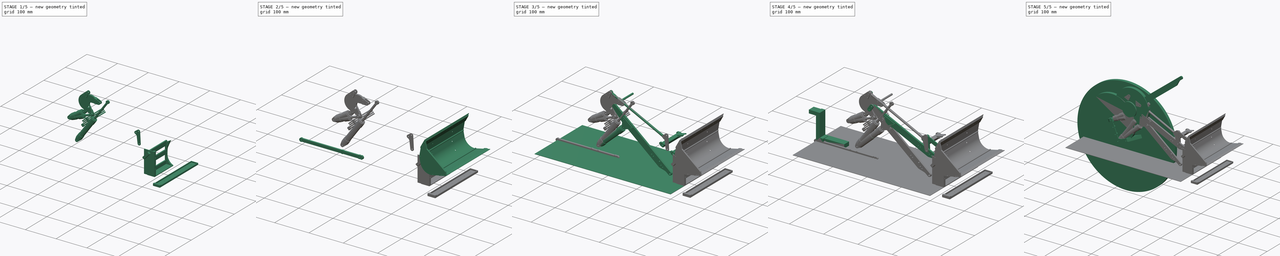
[diagram: build sequence overview — one tinted view per stage of 5, left to right]
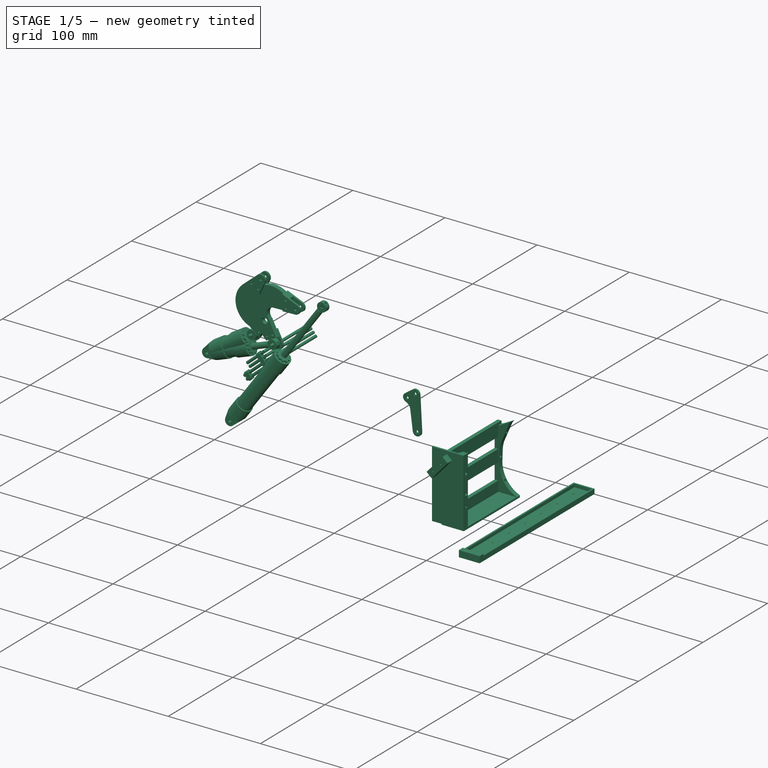
[diagram: stage 1 of 5 — iso view after this stage's code; geometry added in this stage tinted green]
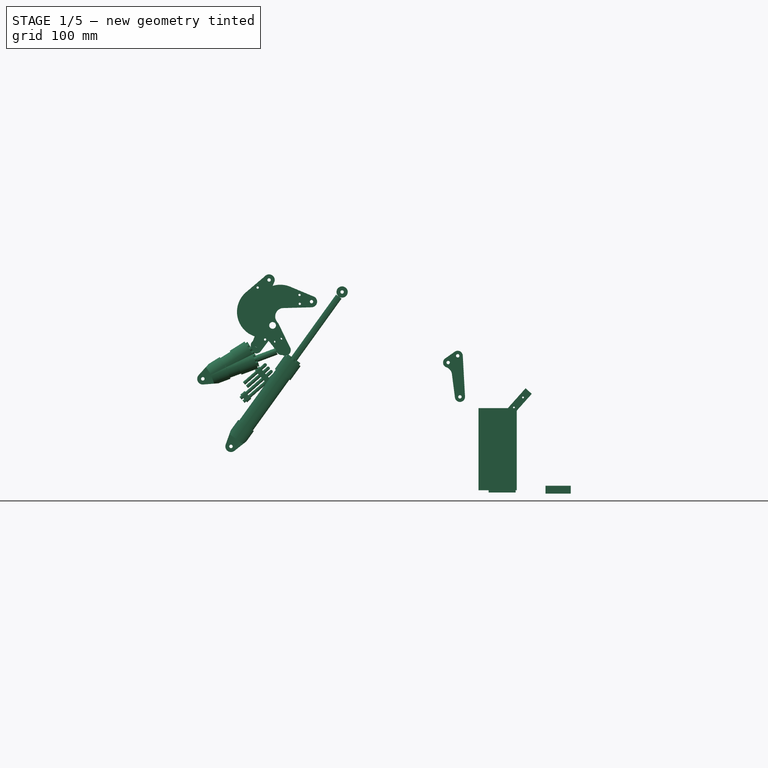
[diagram: stage 1 of 5 — front view after this stage's code; geometry added in this stage tinted green]
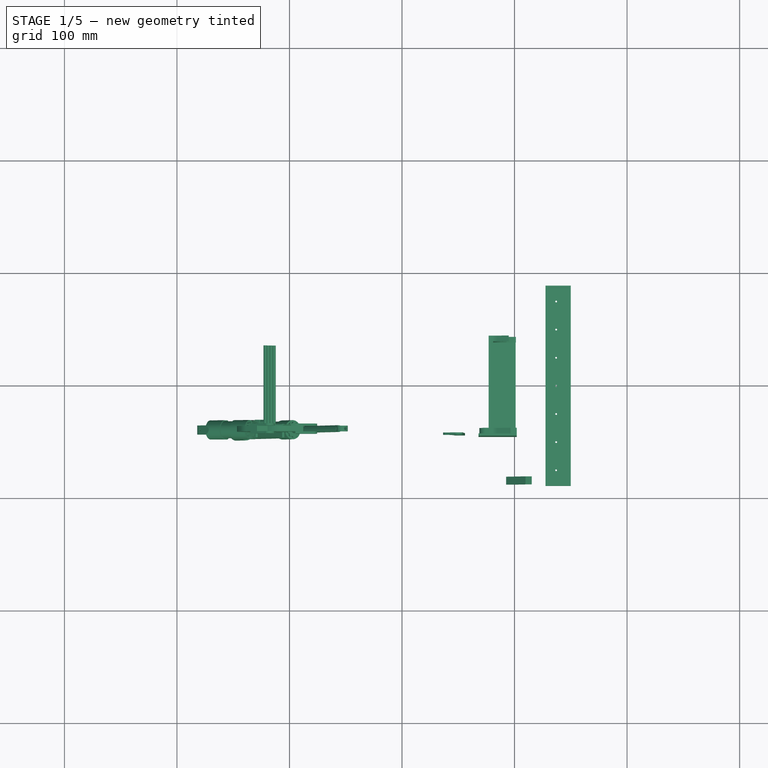
[diagram: stage 1 of 5 — top view after this stage's code; geometry added in this stage tinted green]
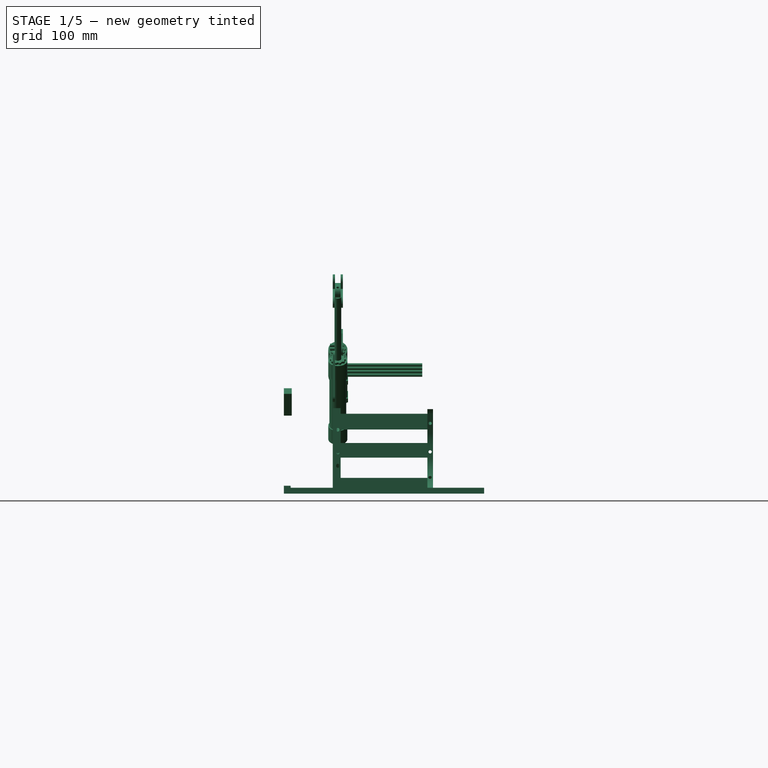
[diagram: stage 1 of 5 — right view after this stage's code; geometry added in this stage tinted green]
FCSTD DOCUMENT  (FreeCAD 0.20R)
Label: arm_00
License: Other
LicenseURL: https://www.gnu.org/licenses/gpl-3.0.en.html
objects: Part::Cylinder×242, Part::Feature×138, Part::MultiFuse×100, Part::Cut×76, Part::Box×60, Part::Fillet×31, Part::Chamfer×27, Sketcher::SketchObject×24, PartDesign::Pad×22, PartDesign::Body×22, Part::Part2DObjectPython×18, App::DocumentObjectGroup×17, Part::Compound×12, Image::ImagePlane×5, PartDesign::Pocket×2, App::MeasureDistance×2, Part::Sphere×1
note: 799 computed .brp shape members not serialized (recipe doc carries the construction recipe); baked Part::Feature solids carry a one-line shape summary decoded from their .brp

FEATURE [Part::Feature] Cut176013009033007019019008010045003002004008006010017027003005053020098001031003007007002011005005004026009004013004003002011004011006011012003019001  label="bucket-left-side-ALU2mm"
  Placement = pos=(43.4,182,-33.25) rot=(0,-1,0;0.226893rad)
  shape: bbox 78.79 x 2 x 88.99 mm, 18 faces (baked)
FEATURE [Part::Feature] Cut176013009033007019019008010045003002004008006010017027003005053020098001031003007007002011005005004026009004013004003002011004011006011012003020001  label="bucket-left-side-reinforcement-ALU2mm"
  Placement = pos=(43.4,186,-33.25) rot=(0,-1,0;0.226893rad)
  shape: bbox 74.95 x 2 x 83.72 mm, 15 faces (baked)
FEATURE [Part::Feature] Cut176013009033007019019008010045003002004008006010017027003005053020098001031003007007002011005005004026009004013004003002011004011006011012003021001  label="bucket-left-side-inner-reinforcement-ALU3mm"
  Placement = pos=(43.4,177,-33.25) rot=(0,-1,0;0.226893rad)
  shape: bbox 77.58 x 3 x 86.53 mm, 24 faces (baked)
FEATURE [App::DocumentObjectGroup] Group019  label="Bucket"
  Group = -> [Fusion004002009002027014004009002002008002004029002015013017006002012002031033002013006007008014029072011018024002019049062029014012006016002033001057009078004002010031016012003004006002003003002005010012002041005,Cut176013009033007019019008010045003002004008006010017027003005053020098001031003007007002011005005004026009004013004003002011004011006011012003019,+10 more]
FEATURE [Part::Cylinder] Cylinder1492533  label="Cylinder"
  Angle = 360
  AttacherType = Attacher::AttachEngine3D
  FirstAngle = 0
  Height = 8
  Placement = pos=(383.5,-44,62.5) rot=(-1,0,0;1.5708rad)
  Radius = 1.75
  SecondAngle = 0
FEATURE [Part::Feature] Cut176013009033007019019008010045003002004008006010017027003005053020098001031003007007002011005005004026009004013004003002011004011006011012003022006  label="bucket-right-quick-connect-attach-ALU5mm"
  shape: bbox 32.43 x 5 x 72.15 mm, 28 faces (baked)
FEATURE [Part::Cut] Cut176013009033007019019008010045003002004008006010017027003005053020098001031003007007002011005005004026009004013004003002011004011006011012003022007  label="bucket-quick-connect-attach-PLA"
  Base = -> Cut176013009033007019019008010045003002004008006010017027003005053020098001031003007007002011005005004026009004013004003002011004011006011012003022006
  Refine = true
  Tool = -> Cylinder1492533
FEATURE [Part::Cylinder] Cylinder1492534  label="Cylinder"
  Angle = 360
  AttacherType = Attacher::AttachEngine3D
  FirstAngle = 0
  Height = 10
  Placement = pos=(437,-75,-1.5) rot=(0,0,1;1.5708rad)
  Radius = 0.8
  SecondAngle = 0
FEATURE [Part::Cylinder] Cylinder1492535  label="Cylinder"
  Angle = 360
  AttacherType = Attacher::AttachEngine3D
  FirstAngle = 0
  Height = 10
  Placement = pos=(437,-50,-1.5) rot=(0,0,1;1.5708rad)
  Radius = 0.8
  SecondAngle = 0
FEATURE [Part::Cylinder] Cylinder1492536  label="Cylinder"
  Angle = 360
  AttacherType = Attacher::AttachEngine3D
  FirstAngle = 0
  Height = 10
  Placement = pos=(437,-25,-1.5) rot=(0,0,1;1.5708rad)
  Radius = 0.8
  SecondAngle = 0
FEATURE [Part::Cylinder] Cylinder1492537  label="Cylinder"
  Angle = 360
  AttacherType = Attacher::AttachEngine3D
  FirstAngle = 0
  Height = 10
  Placement = pos=(437,0,-1.5) rot=(0,0,1;1.5708rad)
  Radius = 0.8
  SecondAngle = 0
FEATURE [Part::Cylinder] Cylinder1492538  label="Cylinder"
  Angle = 360
  AttacherType = Attacher::AttachEngine3D
  FirstAngle = 0
  Height = 10
  Placement = pos=(437,25,-1.5) rot=(0,0,1;1.5708rad)
  Radius = 0.8
  SecondAngle = 0
FEATURE [Part::Cylinder] Cylinder1492539  label="Cylinder"
  Angle = 360
  AttacherType = Attacher::AttachEngine3D
  FirstAngle = 0
  Height = 10
  Placement = pos=(437,50,-1.5) rot=(0,0,1;1.5708rad)
  Radius = 0.8
  SecondAngle = 0
FEATURE [Part::Cylinder] Cylinder1492540  label="Cylinder"
  Angle = 360
  AttacherType = Attacher::AttachEngine3D
  FirstAngle = 0
  Height = 10
  Placement = pos=(437,75,-1.5) rot=(0,0,1;1.5708rad)
  Radius = 0.8
  SecondAngle = 0
FEATURE [Part::MultiFuse] Fusion004002009002027014004009002002008002004029002015013017006002012002031033002013006007008014029072011018024002019049062029014012006016002033001057009078004002010031016012003004006002003003002005010012002041014  label="Fusion"
  Refine = true
  Shapes = -> [Cylinder1492534,Cylinder1492535,Cylinder1492536,Cylinder1492537,Cylinder1492538,Cylinder1492539,Cylinder1492540]
FEATURE [Part::Cylinder] Cylinder1492541  label="Cylinder"
  Angle = 360
  AttacherType = Attacher::AttachEngine3D
  FirstAngle = 0
  Height = 10
  Placement = pos=(439.5,-87,2.5) rot=(-1,0,0;1.5708rad)
  Radius = 0.8
  SecondAngle = 0
FEATURE [Part::Cylinder] Cylinder1492542  label="Cylinder"
  Angle = 360
  AttacherType = Attacher::AttachEngine3D
  FirstAngle = 0
  Height = 10
  Placement = pos=(434.5,-87,2.5) rot=(-1,0,0;1.5708rad)
  Radius = 0.8
  SecondAngle = 0
FEATURE [Part::Cylinder] Cylinder1492543  label="Cylinder"
  Angle = 360
  AttacherType = Attacher::AttachEngine3D
  FirstAngle = 0
  Height = 10
  Placement = pos=(439.5,77,2.5) rot=(-1,0,0;1.5708rad)
  Radius = 0.8
  SecondAngle = 0
FEATURE [Part::Cylinder] Cylinder1492544  label="Cylinder"
  Angle = 360
  AttacherType = Attacher::AttachEngine3D
  FirstAngle = 0
  Height = 10
  Placement = pos=(434.5,77,2.5) rot=(-1,0,0;1.5708rad)
  Radius = 0.8
  SecondAngle = 0
FEATURE [Part::MultiFuse] Fusion004002009002027014004009002002008002004029002015013017006002012002031033002013006007008014029072011018024002019049062029014012006016002033001057009078004002010031016012003004006002003003002005010012002041015  label="Fusion"
  Placement = pos=(0,-2,0) rot=(0,0,1;0rad)
  Refine = true
  Shapes = -> [Cylinder1492541,Cylinder1492542,Cylinder1492543,Cylinder1492544]
FEATURE [Part::Box] Box108  label="Cube"
  AttacherType = Attacher::AttachEngine3D
  Height = 7
  Length = 22.5
  Placement = pos=(427.5,-89,-1) rot=(0,0,1;0rad)
  Width = 6
FEATURE [Part::Box] Box109  label="Cube"
  AttacherType = Attacher::AttachEngine3D
  Height = 3.5
  Length = 19
  Placement = pos=(429.25,-87,0.75) rot=(0,0,1;0rad)
  Width = 174
FEATURE [Part::Cut] Cut176013009033007019019008010045003002004008006010017027003005053020098001031003007007002011005005004026009004013004003002011004011006011012003022008  label="Cut"
  Base = -> Box108
  Refine = true
  Tool = -> Box109
FEATURE [Part::Cut] Cut176013009033007019019008010045003002004008006010017027003005053020098001031003007007002011005005004026009004013004003002011004011006011012003022009  label="bucket-lower-reinforcement-right-HOLES-TOOL"
  Base = -> Cut176013009033007019019008010045003002004008006010017027003005053020098001031003007007002011005005004026009004013004003002011004011006011012003022008
  Refine = true
  Tool = -> Fusion004002009002027014004009002002008002004029002015013017006002012002031033002013006007008014029072011018024002019049062029014012006016002033001057009078004002010031016012003004006002003003002005010012002041015
FEATURE [Part::Feature] Part__Mirroring007002003002018002002002005004004002003004003003004003002002004  label="bucket-lower-reinforcement-left-HOLES-TOOL"
  shape: bbox 22.5 x 6 x 7 mm, 13 faces (baked)
FEATURE [Part::Box] Box110  label="Cube"
  AttacherType = Attacher::AttachEngine3D
  Height = 5.25
  Length = 22.5
  Placement = pos=(427.5,-89,-1) rot=(0,0,1;0rad)
  Width = 178
FEATURE [Part::Box] Box111  label="Cube"
  AttacherType = Attacher::AttachEngine3D
  Height = 3.5
  Length = 19
  Placement = pos=(429.25,-87.25,0.75) rot=(0,0,1;0rad)
  Width = 174.5
FEATURE [Part::Cut] Cut176013009033007019019008010045003002004008006010017027003005053020098001031003007007002011005005004026009004013004003002011004011006011012003022010  label="Cut"
  Base = -> Box110
  Refine = true
  Tool = -> Box111
FEATURE [Part::Cut] Cut176013009033007019019008010045003002004008006010017027003005053020098001031003007007002011005005004026009004013004003002011004011006011012003022011  label="bucket-lower-reinforcement-lower-HOLES-TOOL"
  Base = -> Cut176013009033007019019008010045003002004008006010017027003005053020098001031003007007002011005005004026009004013004003002011004011006011012003022010
  Refine = true
  Tool = -> Fusion004002009002027014004009002002008002004029002015013017006002012002031033002013006007008014029072011018024002019049062029014012006016002033001057009078004002010031016012003004006002003003002005010012002041014
FEATURE [Part::Cylinder] Cylinder1492552  label="Cylinder"
  Angle = 360
  AttacherType = Attacher::AttachEngine3D
  FirstAngle = 0
  Height = 8
  Placement = pos=(399.5,-87,75.55) rot=(-1,0,0;1.5708rad)
  Radius = 0.8
  SecondAngle = 0
FEATURE [Part::Cylinder] Cylinder1492553  label="Cylinder"
  Angle = 360
  AttacherType = Attacher::AttachEngine3D
  FirstAngle = 0
  Height = 8
  Placement = pos=(407.55,-87,84.5) rot=(-1,0,0;1.5708rad)
  Radius = 0.8
  SecondAngle = 0
FEATURE [Part::Cylinder] Cylinder1492554  label="Cylinder"
  Angle = 360
  AttacherType = Attacher::AttachEngine3D
  FirstAngle = 0
  Height = 8
  Placement = pos=(399.5,79,75.55) rot=(-1,0,0;1.5708rad)
  Radius = 0.8
  SecondAngle = 0
FEATURE [Part::Cylinder] Cylinder1492555  label="Cylinder"
  Angle = 360
  AttacherType = Attacher::AttachEngine3D
  FirstAngle = 0
  Height = 8
  Placement = pos=(407.55,79,84.5) rot=(-1,0,0;1.5708rad)
  Radius = 0.8
  SecondAngle = 0
FEATURE [Part::MultiFuse] Fusion004002009002027014004009002002008002004029002015013017006002012002031033002013006007008014029072011018024002019049062029014012006016002033001057009078004002010031016012003004006002003003002005010012002041017  label="Fusion"
  Placement = pos=(0,-2,0) rot=(0,0,1;0rad)
  Refine = true
  Shapes = -> [Cylinder1492552,Cylinder1492553,Cylinder1492554,Cylinder1492555]
FEATURE [Part::Box] Box112  label="Cube"
  AttacherType = Attacher::AttachEngine3D
  Height = 3.4
  Length = 21.9
  Placement = pos=(397.906,-87,71.2155) rot=(0,-1,0;0.842121rad)
  Width = 174
FEATURE [Part::Box] Box113  label="Cube"
  AttacherType = Attacher::AttachEngine3D
  Height = 7.4
  Length = 25.9
  Placement = pos=(398.07,-89,68.3961) rot=(0,-1,0;0.842121rad)
  Width = 7
FEATURE [Part::Cut] Cut176013009033007019019008010045003002004008006010017027003005053020098001031003007007002011005005004026009004013004003002011004011006011012003022012  label="Cut"
  Base = -> Box113
  Refine = true
  Tool = -> Box112
FEATURE [Part::Cut] Cut176013009033007019019008010045003002004008006010017027003005053020098001031003007007002011005005004026009004013004003002011004011006011012003022013  label="bucket-upper-reinforcement-right-HOLES-TOOL"
  Base = -> Cut176013009033007019019008010045003002004008006010017027003005053020098001031003007007002011005005004026009004013004003002011004011006011012003022012
  Refine = true
  Tool = -> Fusion004002009002027014004009002002008002004029002015013017006002012002031033002013006007008014029072011018024002019049062029014012006016002033001057009078004002010031016012003004006002003003002005010012002041017
FEATURE [Part::Feature] Part__Mirroring007002003002018002002002005004004002003004003003004003002002005  label="bucket-upper-reinforcement-left-HOLES-TOOL"
  shape: bbox 22.77 x 7 x 24.25 mm, 13 faces (baked)
FEATURE [Part::Cylinder] Cylinder1492562  label="Cylinder"
  Angle = 360
  AttacherType = Attacher::AttachEngine3D
  FirstAngle = 0
  Height = 20
  Placement = pos=(392,-41,60) rot=(0,-1,0;1.16937rad)
  Radius = 1.5
  SecondAngle = 0
FEATURE [Part::Cylinder] Cylinder1492563  label="Cylinder"
  Angle = 360
  AttacherType = Attacher::AttachEngine3D
  FirstAngle = 0
  Height = 20
  Placement = pos=(385.5,-41,36) rot=(0,-1,0;1.53589rad)
  Radius = 1.5
  SecondAngle = 0
FEATURE [Part::Cylinder] Cylinder1492564  label="Cylinder"
  Angle = 360
  AttacherType = Attacher::AttachEngine3D
  FirstAngle = 0
  Height = 20
  Placement = pos=(390,-41,15.5) rot=(0,1,0;4.11025rad)
  Radius = 1.5
  SecondAngle = 0
FEATURE [Part::Cylinder] Cylinder1492565  label="Cylinder"
  Angle = 360
  AttacherType = Attacher::AttachEngine3D
  FirstAngle = 0
  Height = 20
  Placement = pos=(392,-41,60) rot=(0,-1,0;1.16937rad)
  Radius = 1.5
  SecondAngle = 0
FEATURE [Part::Cylinder] Cylinder1492566  label="Cylinder"
  Angle = 360
  AttacherType = Attacher::AttachEngine3D
  FirstAngle = 0
  Height = 20
  Placement = pos=(385.5,-41,36) rot=(0,-1,0;1.53589rad)
  Radius = 1.5
  SecondAngle = 0
FEATURE [Part::Cylinder] Cylinder1492567  label="Cylinder"
  Angle = 360
  AttacherType = Attacher::AttachEngine3D
  FirstAngle = 0
  Height = 20
  Placement = pos=(390,-41,15.5) rot=(0,1,0;4.11025rad)
  Radius = 1.5
  SecondAngle = 0
FEATURE [Part::MultiFuse] Fusion004002009002027014004009002002008002004029002015013017006002012002031033002013006007008014029072011018024002019049062029014012006016002033001057009078004002010031016012003004006002003003002005010012002041021  label="Fusion"
  Refine = true
  Shapes = -> [Cylinder1492562,Cylinder1492563,Cylinder1492564]
FEATURE [Part::MultiFuse] Fusion004002009002027014004009002002008002004029002015013017006002012002031033002013006007008014029072011018024002019049062029014012006016002033001057009078004002010031016012003004006002003003002005010012002041022  label="Fusion"
  Placement = pos=(0,82,0) rot=(0,0,1;0rad)
  Refine = true
  Shapes = -> [Cylinder1492565,Cylinder1492566,Cylinder1492567]
FEATURE [Part::MultiFuse] Fusion004002009002027014004009002002008002004029002015013017006002012002031033002013006007008014029072011018024002019049062029014012006016002033001057009078004002010031016012003004006002003003002005010012002041023  label="Fusion"
  Refine = true
  Shapes = -> [Fusion004002009002027014004009002002008002004029002015013017006002012002031033002013006007008014029072011018024002019049062029014012006016002033001057009078004002010031016012003004006002003003002005010012002041022,+1 more]
FEATURE [Part::Feature] Cut176013009033007019019008010045003002004008006010017027003005053020098001031003007007002011005005004026009004013004003002011004011006011012003022015  label="bucket-right-quick-connect-attach-ALU5mm"
  shape: bbox 32.43 x 5 x 72.15 mm, 28 faces (baked)
FEATURE [Part::Box] Box114  label="Cube"
  AttacherType = Attacher::AttachEngine3D
  Height = 67
  Length = 13
  Placement = pos=(368,-43.5,1) rot=(0,0,1;0rad)
  Width = 10
FEATURE [Part::Box] Box115  label="Cube"
  AttacherType = Attacher::AttachEngine3D
  Height = 68
  Length = 4
  Placement = pos=(377,-43.5,2) rot=(0,0,1;0rad)
  Width = 87
FEATURE [Part::Box] Box116  label="Cube"
  AttacherType = Attacher::AttachEngine3D
  Height = 18
  Length = 4
  Placement = pos=(377,-38.5,13) rot=(0,0,1;0rad)
  Width = 77
FEATURE [Part::Box] Box117  label="Cube"
  AttacherType = Attacher::AttachEngine3D
  Height = 12
  Length = 4
  Placement = pos=(377,-38.5,44) rot=(0,0,1;0rad)
  Width = 77
FEATURE [Part::MultiFuse] Fusion004002009002027014004009002002008002004029002015013017006002012002031033002013006007008014029072011018024002019049062029014012006016002033001057009078004002010031016012003004006002003003002005010012002041024  label="Fusion"
  Refine = true
  Shapes = -> [Box117,Box116]
FEATURE [Part::Cut] Cut176013009033007019019008010045003002004008006010017027003005053020098001031003007007002011005005004026009004013004003002011004011006011012003022017002  label="Cut"
  Base = -> Box115
  Refine = true
  Tool = -> Fusion004002009002027014004009002002008002004029002015013017006002012002031033002013006007008014029072011018024002019049062029014012006016002033001057009078004002010031016012003004006002003003002005010012002041024
FEATURE [Part::Cut] Cut176013009033007019019008010045003002004008006010017027003005053020098001031003007007002011005005004026009004013004003002011004011006011012003022017003  label="Cut"
  Base = -> Cut176013009033007019019008010045003002004008006010017027003005053020098001031003007007002011005005004026009004013004003002011004011006011012003022015
  Refine = true
  Tool = -> Box114
FEATURE [Part::Feature] Cut176013009033007019019008010045003002004008006010017027003005053020098001031003007007002011005005004026009004013004003002011004011006011012003022017003001  label="Cut"
  Placement = pos=(0,82,0) rot=(0,0,1;0rad)
  shape: bbox 20.3 x 5 x 72.15 mm, 16 faces (baked)
FEATURE [Part::Box] Box118  label="Cube"
  AttacherType = Attacher::AttachEngine3D
  Height = 2
  Length = 24
  Placement = pos=(377,-43.5,0) rot=(0,0,1;0rad)
  Width = 87
FEATURE [Part::MultiFuse] Fusion004002009002027014004009002002008002004029002015013017006002012002031033002013006007008014029072011018024002019049062029014012006016002033001057009078004002010031016012003004006002003003002005010012002041025  label="Fusion"
  Refine = true
  Shapes = -> [Cut176013009033007019019008010045003002004008006010017027003005053020098001031003007007002011005005004026009004013004003002011004011006011012003022017003,Cut176013009033007019019008010045003002004008006010017027003005053020098001031003007007002011005005004026009004013004003002011004011006011012003022017003001,Box118,+1 more]
FEATURE [Part::Cut] Cut176013009033007019019008010045003002004008006010017027003005053020098001031003007007002011005005004026009004013004003002011004011006011012003022017003002  label="bucket-body-HOLES-TOOL"
  Base = -> Fusion004002009002027014004009002002008002004029002015013017006002012002031033002013006007008014029072011018024002019049062029014012006016002033001057009078004002010031016012003004006002003003002005010012002041025
  Refine = true
  Tool = -> Fusion004002009002027014004009002002008002004029002015013017006002012002031033002013006007008014029072011018024002019049062029014012006016002033001057009078004002010031016012003004006002003003002005010012002041023
FEATURE [Part::Box] Box119  label="Cube"
  AttacherType = Attacher::AttachEngine3D
  Height = 73
  Length = 21
  Placement = pos=(381,-43.5,2) rot=(0,0,1;0rad)
  Width = 5
FEATURE [Part::Chamfer] Chamfer011006020
  Base = -> Box119
  Edges = 1 edges: [Edge2 r1=8.5 r2=15.5]
FEATURE [Part::Cylinder] Cylinder1492568  label="Cylinder"
  Angle = 360
  AttacherType = Attacher::AttachEngine3D
  FirstAngle = 0
  Height = 30
  Placement = pos=(409.49,-41,52.5761) rot=(0,-1,0;1.16937rad)
  Radius = 1.5
  SecondAngle = 0
FEATURE [Part::Cylinder] Cylinder1492569  label="Cylinder"
  Angle = 360
  AttacherType = Attacher::AttachEngine3D
  FirstAngle = 0
  Height = 30
  Placement = pos=(403.489,-41,35.3718) rot=(0,-1,0;1.53589rad)
  Radius = 1.5
  SecondAngle = 0
FEATURE [Part::Cylinder] Cylinder1492570  label="Cylinder"
  Angle = 360
  AttacherType = Attacher::AttachEngine3D
  FirstAngle = 0
  Height = 30
  Placement = pos=(404.834,-41,25.6953) rot=(0,1,0;4.11025rad)
  Radius = 1.5
  SecondAngle = 0
FEATURE [Part::MultiFuse] Fusion004002009002027014004009002002008002004029002015013017006002012002031033002013006007008014029072011018024002019049062029014012006016002033001057009078004002010031016012003004006002003003002005010012002041027  label="Fusion"
  Refine = true
  Shapes = -> [Cylinder1492568,Cylinder1492569,Cylinder1492570]
FEATURE [Part::Box] Box120  label="Cube"
  AttacherType = Attacher::AttachEngine3D
  Height = 73
  Length = 34
  Placement = pos=(368,-45.5,2) rot=(0,0,1;0rad)
  Width = 2
FEATURE [Part::Feature] Cut176013009033007019019008010045003002004008006010017027003005053020098001031003007007002011005005004026009004013004003002011004011006011012003022017003007  label="bucket-right-quick-connect-attach-ALU5mm"
  shape: bbox 32.43 x 5 x 72.15 mm, 28 faces (baked)
FEATURE [Part::Cylinder] Cylinder1492571  label="Cylinder"
  Angle = 360
  AttacherType = Attacher::AttachEngine3D
  FirstAngle = 0
  Height = 7
  Placement = pos=(379.15,-45.5,8.2) rot=(-1,0,0;1.5708rad)
  Radius = 1.5
  SecondAngle = 0
FEATURE [Part::Cylinder] Cylinder1492572  label="Cylinder"
  Angle = 360
  AttacherType = Attacher::AttachEngine3D
  FirstAngle = 0
  Height = 7.2
  Placement = pos=(375,-45.5,58.5) rot=(-1,0,0;1.5708rad)
  Radius = 3.25
  SecondAngle = 0
FEATURE [Part::MultiFuse] Fusion004002009002027014004009002002008002004029002015013017006002012002031033002013006007008014029072011018024002019049062029014012006016002033001057009078004002010031016012003004006002003003002005010012002041030  label="Fusion"
  Refine = true
  Shapes = -> [Chamfer011006020,Box120]
FEATURE [Part::Cut] Cut176013009033007019019008010045003002004008006010017027003005053020098001031003007007002011005005004026009004013004003002011004011006011012003022017003008  label="Cut"
  Base = -> Fusion004002009002027014004009002002008002004029002015013017006002012002031033002013006007008014029072011018024002019049062029014012006016002033001057009078004002010031016012003004006002003003002005010012002041030
  Refine = true
  Tool = -> Cut176013009033007019019008010045003002004008006010017027003005053020098001031003007007002011005005004026009004013004003002011004011006011012003022017003007
FEATURE [Part::Cut] Cut176013009033007019019008010045003002004008006010017027003005053020098001031003007007002011005005004026009004013004003002011004011006011012003022017003009  label="Cut"
  Base = -> Cut176013009033007019019008010045003002004008006010017027003005053020098001031003007007002011005005004026009004013004003002011004011006011012003022017003008
  Refine = true
  Tool = -> Fusion004002009002027014004009002002008002004029002015013017006002012002031033002013006007008014029072011018024002019049062029014012006016002033001057009078004002010031016012003004006002003003002005010012002041027
FEATURE [Part::MultiFuse] Fusion004002009002027014004009002002008002004029002015013017006002012002031033002013006007008014029072011018024002019049062029014012006016002033001057009078004002010031016012003004006002003003002005010012002041031  label="bucket-right-quick-connect-attach-HOLES-TOOL"
  Refine = true
  Shapes = -> [Cylinder1492571,Cylinder1492572,Cut176013009033007019019008010045003002004008006010017027003005053020098001031003007007002011005005004026009004013004003002011004011006011012003022017003009]
FEATURE [App::DocumentObjectGroup] Group008  label="Tools"
  Group = -> [Cut176013009033007019019008010045003002004008006010017027003005053020098001031003007007002011005005004026009004013004003002011004011006011012003003,Cut176013009033007019019008010045003002004008006010017027003005053020098001031003007007002011005005004026009004013004003002011004011006011012003004,+8 more]
FEATURE [Part::Feature] Cut176013009033007019019008010045003002004008006010017027003005053020098001031003007007002011005005004026009004013004003002011004011006011012003022017003011  label="head-5mm"
  shape: bbox 10 x 5 x 10 mm, 6 faces (baked)
FEATURE [Part::Feature] Cut176013009033007019019008010045003002004008006010017027003005053020098001031003007007002011005005004026009004013004003002011004011006011012003022017003012  label="head-5mm"
  shape: bbox 10 x 5 x 10 mm, 6 faces (baked)
FEATURE [Part::Cylinder] Cylinder1492573  label="rod"
  Angle = 360
  AttacherType = Attacher::AttachEngine3D
  FirstAngle = 0
  Height = 75
  Placement = pos=(94,0,0) rot=(0,-1,0;1.5708rad)
  Radius = 3
  SecondAngle = 0
FEATURE [Part::Cylinder] Cylinder1492574  label="rod"
  Angle = 360
  AttacherType = Attacher::AttachEngine3D
  FirstAngle = 0
  Height = 35
  Placement = pos=(94,0,0) rot=(0,-1,0;1.5708rad)
  Radius = 3
  SecondAngle = 0
FEATURE [Part::MultiFuse] Fusion004002009002027014004009002002008002004029002015013017006002012002031033002013006007008014029072011018024002019049062029014012006016002033001057009078004002010031016012003004006002003003002005010012002041032  label="MAGOM-CYLINDER-PISTON"
  Placement = pos=(-24.25,0,0) rot=(0,0,1;0rad)
  Refine = true
  Shapes = -> [Cylinder1492574,Cut176013009033007019019008010045003002004008006010017027003005053020098001031003007007002011005005004026009004013004003002011004011006011012003022017003011]
FEATURE [Part::MultiFuse] Fusion004002009002027014004009002002008002004029002015013017006002012002031033002013006007008014029072011018024002019049062029014012006016002033001057009078004002010031016012003004006002003003002005010012002041033  label="MAGOM-CYLINDER-PISTON"
  Placement = pos=(70,0,0) rot=(0,0,1;0rad)
  Refine = true
  Shapes = -> [Cylinder1492573,Cut176013009033007019019008010045003002004008006010017027003005053020098001031003007007002011005005004026009004013004003002011004011006011012003022017003012]
FEATURE [Part::Feature] Part__Feature004013  label="MAGOM-CYLINDER-ATTACH"
  Placement = pos=(8,0,0) rot=(0.57735,-0.57735,0.57735;4.18879rad)
  shape: bbox 28 x 17 x 17.72 mm, 26 faces (baked)
FEATURE [Part::Feature] Part__Feature004014  label="MAGOM-CYLINDER-1"
  Placement = pos=(11.5,0,0) rot=(0,0.898384,-0.43921;3.14159rad)
  shape: bbox 50 x 15 x 15 mm, 6 faces (baked)
FEATURE [Part::Feature] Part__Feature004015  label="MAGOM-CYLINDER-2"
  Placement = pos=(40.5,0,0) rot=(0,0.898384,-0.43921;3.14159rad)
  shape: bbox 50 x 15 x 15 mm, 6 faces (baked)
FEATURE [Part::Cut] Cut176013009033007019019008010045003002004008006010017027003005053020098001031003007007002011005005004026009004013004003002011004011006011012003022017003010  label="MAGOM-CYLINDER-JACKET"
  Base = -> Part__Feature004014
  Refine = true
  Tool = -> Part__Feature004015
FEATURE [Part::Feature] Part__Feature004016  label="MAGOM-CYLINDER-ATTACH"
  Placement = pos=(8,0,0) rot=(0.57735,-0.57735,0.57735;4.18879rad)
  shape: bbox 28 x 17 x 17.72 mm, 26 faces (baked)
FEATURE [Part::Feature] Part__Feature004017  label="MAGOM-CYLINDER-1"
  Placement = pos=(4.5,-7e-15,9e-15) rot=(0,0.899608,-0.436698;3.14159rad)
  shape: bbox 50 x 15 x 15 mm, 6 faces (baked)
FEATURE [Part::Feature] Part__Feature004018  label="MAGOM-CYLINDER-2"
  Placement = pos=(24.5,0,0) rot=(0,0.898384,-0.43921;3.14159rad)
  shape: bbox 50 x 15 x 15 mm, 6 faces (baked)
FEATURE [Part::MultiFuse] Fusion004002009002027014004009002002008002004029002015013017006002012002031033002013006007008014029072011018024002019049062029014012006016002033001057009078004002010031016012003004006002003003002005010012002041034  label="MAGOM-CYLINDER-JACKET"
  Placement = pos=(8,0,0) rot=(0,0,1;0rad)
  Refine = true
  Shapes = -> [Part__Feature004017,Part__Feature004018]
FEATURE [Part::Feature] _02015_204_Predeterminado005  label="MAGOM-CYLINDER-TOP"
  Placement = pos=(8.3,0,0) rot=(0,0,1;0rad)
  shape: bbox 17.55 x 17.17 x 17.4 mm, 73 faces, 3 solids (baked)
FEATURE [Part::Compound] Compound002005026  label="BUCKET-PISTON-RIGHT(56-79.4mm)"
  Links = -> [Fusion004002009002027014004009002002008002004029002015013017006002012002031033002013006007008014029072011018024002019049062029014012006016002033001057009078004002010031016012003004006002003003002005010012002041032,Part__Feature004013,_02015_204_Predeterminado005,+1 more]
  Placement = pos=(123,-41,101) rot=(0,-1,0;0.357792rad)
FEATURE [Part::Feature] _02015_204_Predeterminado006  label="MAGOM-CYLINDER-TOP"
  Placement = pos=(53.3,0,0) rot=(0,0,1;0rad)
  shape: bbox 17.55 x 17.17 x 17.4 mm, 73 faces, 3 solids (baked)
FEATURE [Part::Compound] Compound002005027  label="LIFTING-PISTON-RIGHT(101-169.4mm)"
  Links = -> [Part__Feature004016,_02015_204_Predeterminado006,Fusion004002009002027014004009002002008002004029002015013017006002012002031033002013006007008014029072011018024002019049062029014012006016002033001057009078004002010031016012003004006002003003002005010012002041034,+1 more]
  Placement = pos=(148,-41,41) rot=(0,-1,0;0.946841rad)
FEATURE [Part::Feature] Cut176013009033007019019008010045003002004008006010017027003005053020098001031003007007002011005005004026009004013004003002011004011006011012003022017003013  label="right-arm-lever-left-rod-attach-ALU2mm"
  shape: bbox 22.01 x 2 x 19.69 mm, 9 faces (baked)
FEATURE [Part::Feature] Cut176013009033007019019008010045003002004008006010017027003005053020098001031003007007002011005005004026009004013004003002011004011006011012003022017003014  label="right-arm-lever-left-piston-attach-ALU2mm"
  shape: bbox 18.93 x 2 x 19.84 mm, 9 faces (baked)
FEATURE [Part::Feature] Cut176013009033007019019008010045003002004008006010017027003005053020098001031003007007002011005005004026009004013004003002011004011006006001  label="right-arm-lever-right-rod-attach-ALU2mm"
  Placement = pos=(0,-7,0) rot=(0,0,1;0rad)
  shape: bbox 22.01 x 2 x 19.69 mm, 9 faces (baked)
FEATURE [Part::Feature] Cut176013009033007019019008010045003002004008006010017027003005053020098001031003007007002011005005004026009004013004003002011004011006008001  label="right-arm-lever-body-ALU5mm"
  shape: bbox 42.84 x 5 x 57.32 mm, 17 faces (baked)
FEATURE [Part::Cylinder] Cylinder1492575  label="Cylinder"
  Angle = 360
  AttacherType = Attacher::AttachEngine3D
  FirstAngle = 0
  Height = 12
  Placement = pos=(193.15,-36,127.17) rot=(1,0,0;1.5708rad)
  Radius = 1.5
  SecondAngle = 0
FEATURE [Part::Compound] Compound002005028
  Links = -> [Cut176013009033007019019008010045003002004008006010017027003005053020098001031003007007002011005005004026009004013004003002011004011006011012003022017003013,Cut176013009033007019019008010045003002004008006010017027003005053020098001031003007007002011005005004026009004013004003002011004011006011012003022017003014,+3 more]
  Placement = pos=(8.02543,0,-9.47864) rot=(0,-1,0;0.05236rad)
FEATURE [Part::Feature] Cut176013009033007019019008010045003002004008006010017027003005053020098001031003007007002011005005004026009004013004003002011004011006011012003022017003015  label="right-arm-lever-right-rod-attach-ALU2mm"
  Placement = pos=(0,-7,0) rot=(0,0,1;0rad)
  shape: bbox 22.01 x 2 x 19.69 mm, 9 faces (baked)
FEATURE [Part::Feature] Cut176013009033007019019008010045003002004008006010017027003005053020098001031003007007002011005005004026009004013004003002011004011006011012003022017003016  label="right-arm-lever-body-ALU5mm"
  shape: bbox 42.84 x 5 x 57.32 mm, 17 faces (baked)
FEATURE [Part::Feature] Cut176013009033007019019008010045003002004008006010017027003005053020098001031003007007002011005005004026009004013004003002011004011006011012003022017003017  label="right-arm-lever-left-rod-attach-ALU2mm"
  shape: bbox 22.01 x 2 x 19.69 mm, 9 faces (baked)
FEATURE [Part::Feature] Cut176013009033007019019008010045003002004008006010017027003005053020098001031003007007002011005005004026009004013004003002011004011006011012003022017003018  label="right-arm-lever-left-piston-attach-ALU2mm"
  shape: bbox 18.93 x 2 x 19.84 mm, 9 faces (baked)
FEATURE [Part::Cylinder] Cylinder1492576  label="Cylinder"
  Angle = 360
  AttacherType = Attacher::AttachEngine3D
  FirstAngle = 0
  Height = 12
  Placement = pos=(193.15,-36,127.17) rot=(1,0,0;1.5708rad)
  Radius = 1.5
  SecondAngle = 0
FEATURE [Part::Compound] Compound002005029
  Links = -> [Cut176013009033007019019008010045003002004008006010017027003005053020098001031003007007002011005005004026009004013004003002011004011006011012003022017003017,Cut176013009033007019019008010045003002004008006010017027003005053020098001031003007007002011005005004026009004013004003002011004011006011012003022017003018,+3 more]
  Placement = pos=(-36.1048,0,234.465) rot=(0,1,0;1.0472rad)
FEATURE [Part::Feature] Cut176013009033007019019008010045003002004008006010017027003005053020098001031003007007002011005005004026009004013004003002011004011006011012003022017003020  label="head-5mm"
  shape: bbox 10 x 5 x 10 mm, 6 faces (baked)
FEATURE [Part::Cylinder] Cylinder1492577  label="rod"
  Angle = 360
  AttacherType = Attacher::AttachEngine3D
  FirstAngle = 0
  Height = 35
  Placement = pos=(94,0,0) rot=(0,-1,0;1.5708rad)
  Radius = 3
  SecondAngle = 0
FEATURE [Part::MultiFuse] Fusion004002009002027014004009002002008002004029002015013017006002012002031033002013006007008014029072011018024002019049062029014012006016002033001057009078004002010031016012003004006002003003002005010012002041035  label="MAGOM-CYLINDER-PISTON"
  Placement = pos=(-43,0,0) rot=(0,0,1;0rad)
  Refine = true
  Shapes = -> [Cylinder1492577,Cut176013009033007019019008010045003002004008006010017027003005053020098001031003007007002011005005004026009004013004003002011004011006011012003022017003020]
FEATURE [Part::Feature] Part__Feature004019  label="MAGOM-CYLINDER-ATTACH"
  Placement = pos=(8,0,0) rot=(0.57735,-0.57735,0.57735;4.18879rad)
  shape: bbox 28 x 17 x 17.72 mm, 26 faces (baked)
FEATURE [Part::Feature] Part__Feature004020  label="MAGOM-CYLINDER-1"
  Placement = pos=(11.5,0,0) rot=(0,0.898384,-0.43921;3.14159rad)
  shape: bbox 50 x 15 x 15 mm, 6 faces (baked)
FEATURE [Part::Feature] Part__Feature004021  label="MAGOM-CYLINDER-2"
  Placement = pos=(40.5,0,0) rot=(0,0.898384,-0.43921;3.14159rad)
  shape: bbox 50 x 15 x 15 mm, 6 faces (baked)
FEATURE [Part::Cut] Cut176013009033007019019008010045003002004008006010017027003005053020098001031003007007002011005005004026009004013004003002011004011006011012003022017003019  label="MAGOM-CYLINDER-JACKET"
  Base = -> Part__Feature004020
  Refine = true
  Tool = -> Part__Feature004021
FEATURE [Part::Feature] _02015_204_Predeterminado007  label="MAGOM-CYLINDER-TOP"
  Placement = pos=(8.3,0,0) rot=(0,0,1;0rad)
  shape: bbox 17.55 x 17.17 x 17.4 mm, 73 faces, 3 solids (baked)
FEATURE [Part::Compound] Compound002005030  label="BUCKET-PISTON-RIGHT(56-79.4mm)"
  Links = -> [Fusion004002009002027014004009002002008002004029002015013017006002012002031033002013006007008014029072011018024002019049062029014012006016002033001057009078004002010031016012003004006002003003002005010012002041035,Part__Feature004019,_02015_204_Predeterminado007,+1 more]
  Placement = pos=(123,-41,101) rot=(0,-1,0;0.558505rad)
FEATURE [App::DocumentObjectGroup] Group011  label="Parts"
  Group = -> [Cut176013009033007019019008010045003002004008006010017027003005053020098001031003007007002011005005004026009004013003,Cut176013009033007019019008010045003002004008006021005004004004004002012033009016002012007022024033013,Fusion004002009002027014004009002002008002004029002015013017006002012002031033002013006007008014029072011018024002019049062029014012006016002033001057009071003006,+30 more]
FEATURE [Part::Cylinder] Cylinder1492578  label="Cylinder"
  Angle = 360
  AttacherType = Attacher::AttachEngine3D
  FirstAngle = 0
  Height = 2
  Placement = pos=(186.5,-45.5,134) rot=(-1,0,0;1.5708rad)
  Radius = 1
  SecondAngle = 0
FEATURE [Part::Cylinder] Cylinder1492579  label="Cylinder"
  Angle = 360
  AttacherType = Attacher::AttachEngine3D
  FirstAngle = 0
  Height = 2
  Placement = pos=(192.5,-45.5,136.5) rot=(-1,0,0;1.5708rad)
  Radius = 1
  SecondAngle = 0
FEATURE [Part::Cylinder] Cylinder1492580  label="Cylinder"
  Angle = 360
  AttacherType = Attacher::AttachEngine3D
  FirstAngle = 0
  Height = 5
  Placement = pos=(186.5,-45.5,134) rot=(-1,0,0;1.5708rad)
  Radius = 1
  SecondAngle = 0
FEATURE [Part::Cylinder] Cylinder1492581  label="Cylinder"
  Angle = 360
  AttacherType = Attacher::AttachEngine3D
  FirstAngle = 0
  Height = 5
  Placement = pos=(192.5,-45.5,136.5) rot=(-1,0,0;1.5708rad)
  Radius = 1
  SecondAngle = 0
FEATURE [Part::Cylinder] Cylinder1492582  label="Cylinder"
  Angle = 360
  AttacherType = Attacher::AttachEngine3D
  FirstAngle = 0
  Height = 2
  Placement = pos=(186.5,-45.5,134) rot=(-1,0,0;1.5708rad)
  Radius = 1
  SecondAngle = 0
FEATURE [Part::Cylinder] Cylinder1492583  label="Cylinder"
  Angle = 360
  AttacherType = Attacher::AttachEngine3D
  FirstAngle = 0
  Height = 2
  Placement = pos=(192.5,-45.5,136.5) rot=(-1,0,0;1.5708rad)
  Radius = 1
  SecondAngle = 0
FEATURE [Part::MultiFuse] Fusion004002009002027014004009002002008002004029002015013017006002012002031033002013006007008014029072011018024002019049062029014012006016002033001057009078004002010031016012003004006002003003002005010012002041036  label="Fusion"
  Refine = true
  Shapes = -> [Cylinder1492578,Cylinder1492579]
FEATURE [Part::MultiFuse] Fusion004002009002027014004009002002008002004029002015013017006002012002031033002013006007008014029072011018024002019049062029014012006016002033001057009078004002010031016012003004006002003003002005010012002041037  label="Fusion"
  Placement = pos=(0,2,0) rot=(0,0,1;0rad)
  Refine = true
  Shapes = -> [Cylinder1492580,Cylinder1492581]
FEATURE [Part::MultiFuse] Fusion004002009002027014004009002002008002004029002015013017006002012002031033002013006007008014029072011018024002019049062029014012006016002033001057009078004002010031016012003004006002003003002005010012002041038  label="Fusion"
  Placement = pos=(0,7,0) rot=(0,0,1;0rad)
  Refine = true
  Shapes = -> [Cylinder1492582,Cylinder1492583]
FEATURE [Sketcher::SketchObject] Sketch037  label="Sketch-arm-lever"
  FullyConstrained = false
  MapMode = 5
  Placement = pos=(0,0,0) rot=(1,0,0;1.5708rad)
  Support = -> [XZ_Plane034]
  sketch-geometry (8):
    g0: LineSegment StartX=194.081 StartY=140.838 StartZ=0 EndX=196.57 EndY=135.031 EndZ=0
    g1: LineSegment StartX=185.038 StartY=130.362 StartZ=0 EndX=181.073 EndY=135.263 EndZ=0
    g2: ArcOfCircle CenterX=193 CenterY=127.2 CenterZ=0 NormalX=0 NormalY=0 NormalZ=1 AngleXU=0 Radius=5 StartAngle=3.69215 EndAngle=6.45143
    g3: LineSegment StartX=194.081 StartY=140.838 StartZ=0 EndX=181.073 EndY=135.263 EndZ=0
    g4: LineSegment StartX=196.976 StartY=133.653 StartZ=0 EndX=197.929 EndY=128.037 EndZ=0
    g5: LineSegment StartX=188.739 StartY=124.584 StartZ=0 EndX=186.205 EndY=128.713 EndZ=0
    g6: ArcOfCircle CenterX=190.976 CenterY=132.634 CenterZ=0 NormalX=0 NormalY=0 NormalZ=1 AngleXU=0 Radius=6.08548 StartAngle=0.16824 EndAngle=0.404875
    g7: ArcOfCircle CenterX=172.931 CenterY=120.564 CenterZ=0 NormalX=0 NormalY=0 NormalZ=1 AngleXU=0 Radius=15.5752 StartAngle=0.550554 EndAngle=0.680326
  constraints (13):
    c: DistanceX(g2) = 193
    c: DistanceY(g2) = 127.2
    c: Radius(g2) = 5
    c: Perpendicular(g0,g3) = 4.71239
    c: Coincident(g3,g1)
    c: DistanceX(g0) = 194.081
    c: DistanceX(g1) = 181.073
    c: Tangent(g4,g2) = 1.5708
    c: Tangent(g5,g2) = 1.5708
    c: Tangent(g4,g6) = 1.5708
    c: Tangent(g0,g6) = 1.5708
    c: Tangent(g5,g7) = -1.5708
    c: Tangent(g1,g7) = -1.5708
FEATURE [PartDesign::Pad] Pad030
  Direction = (0,-1,-2e-16)
  Length = 2
  Length2 = 10
  Placement = pos=(0,0,0) rot=(1,0,0;1.5708rad)
  Profile = -> Sketch037
  ReferenceAxis = -> Sketch037 [N_Axis]
  Refine = true
  Type = 0
FEATURE [PartDesign::Body] Body001007021  label="right-arm-lever-left-piston-attach-body"
  Group = -> [Sketch037,Pad030]
  Origin = -> Origin033
  Placement = pos=(0,-36.5,0) rot=(0,0,1;0rad)
  Tip = -> Pad030
FEATURE [Part::Cylinder] Cylinder1492585  label="Cylinder"
  Angle = 360
  AttacherType = Attacher::AttachEngine3D
  FirstAngle = 0
  Height = 12
  Placement = pos=(193,-36,127.2) rot=(1,0,0;1.5708rad)
  Radius = 1.5
  SecondAngle = 0
FEATURE [Part::MultiFuse] Fusion004002009002027014004009002002008002004029002015013017006002012002031033002013006007008014029072011018024002019049062029014012006016002033001057009078004002010031016012003004006002003003002005010012002041039  label="Fusion"
  Refine = true
  Shapes = -> [Fusion004002009002027014004009002002008002004029002015013017006002012002031033002013006007008014029072011018024002019049062029014012006016002033001057009078004002010031016012003004006002003003002005010012002041036,+3 more]
FEATURE [Part::Cut] Cut176013009033007019019008010045003002004008006010017027003005053020098001031003007007002011005005004026009004013004003002011004011006011012003022017003021  label="right-arm-lever-left-piston-attach-ALU2mm"
  Base = -> Body001007021
  Refine = true
  Tool = -> Fusion004002009002027014004009002002008002004029002015013017006002012002031033002013006007008014029072011018024002019049062029014012006016002033001057009078004002010031016012003004006002003003002005010012002041039
FEATURE [Part::Feature] Cut176013009033007019019008010045003002004008006010017027003005053020098001031003007007002011005005004026009004013004003002011004011006011012003022017003021001  label="right-arm-lever-right-piston-attach-ALU2mm"
  Placement = pos=(0,-7,0) rot=(0,0,1;0rad)
  shape: bbox 16.93 x 2 x 18.64 mm, 13 faces (baked)
FEATURE [App::DocumentObjectGroup] Group014  label="Right"
  Group = -> [Group007,Compound002005018,Cut176013009033007019019008010045003002004008006010017027003005053020098001031003007007002011005005004026009004013004003,Fillet,Fillet001006007031016,Cut176013009033007019019008010045003002004008006010017027003005053020098001031003007007002011005005004026009004013004003002005,+17 more]
FEATURE [App::DocumentObjectGroup] Group006  label="Arm"
  Group = -> [Group014,Group015,Group017,Cut176013009033007019019008010045003002004008006010017027003005053020098001031003007007002011005005004026009004013004003002011004011006011008,Cut176013009033007019019008010045003002004008006010017027003005053020098001031003007007002011005005004026009004013004003002011004011006011011,Group019,Cylinder1492406]
FEATURE [Part::Box] Box121  label="Cube"
  AttacherType = Attacher::AttachEngine3D
  Height = 17
  Length = 5
  Placement = pos=(-7,-36,2) rot=(0,0,1;0rad)
  Width = 4
FEATURE [Part::Box] Box122  label="Cube"
  AttacherType = Attacher::AttachEngine3D
  Height = 9
  Length = 5
  Placement = pos=(-31,-36,2) rot=(0,0,1;0rad)
  Width = 4
FEATURE [Part::Cylinder] Cylinder1492586  label="Cylinder"
  Angle = 360
  AttacherType = Attacher::AttachEngine3D
  FirstAngle = 0
  Height = 25
  Placement = pos=(3,-34,16.5) rot=(0,-1,0;1.5708rad)
  Radius = 1.5
  SecondAngle = 0
FEATURE [Part::Cylinder] Cylinder1492587  label="Cylinder"
  Angle = 360
  AttacherType = Attacher::AttachEngine3D
  FirstAngle = 0
  Height = 25
  Placement = pos=(3,-34,12.5) rot=(0,-1,0;1.5708rad)
  Radius = 1.5
  SecondAngle = 0
FEATURE [Part::Cylinder] Cylinder1492588  label="Cylinder"
  Angle = 360
  AttacherType = Attacher::AttachEngine3D
  FirstAngle = 0
  Height = 36
  Placement = pos=(3,-34,8.5) rot=(0,-1,0;1.5708rad)
  Radius = 1.5
  SecondAngle = 0
FEATURE [Part::Cylinder] Cylinder1492589  label="Cylinder"
  Angle = 360
  AttacherType = Attacher::AttachEngine3D
  FirstAngle = 0
  Height = 36
  Placement = pos=(3,-34,4.5) rot=(0,-1,0;1.5708rad)
  Radius = 1.5
  SecondAngle = 0
FEATURE [Part::Cylinder] Cylinder1492590  label="Cylinder"
  Angle = 360
  AttacherType = Attacher::AttachEngine3D
  FirstAngle = 0
  Height = 70
  Placement = pos=(3,0,4.5) rot=(-1,0,0;1.5708rad)
  Radius = 1.5
  SecondAngle = 0
FEATURE [Part::Cylinder] Cylinder1492591  label="Cylinder"
  Angle = 360
  AttacherType = Attacher::AttachEngine3D
  FirstAngle = 0
  Height = 70
  Placement = pos=(3,0,8.5) rot=(-1,0,0;1.5708rad)
  Radius = 1.5
  SecondAngle = 0
FEATURE [Part::Cylinder] Cylinder1492592  label="Cylinder"
  Angle = 360
  AttacherType = Attacher::AttachEngine3D
  FirstAngle = 0
  Height = 70
  Placement = pos=(3,0,12.5) rot=(-1,0,0;1.5708rad)
  Radius = 1.5
  SecondAngle = 0
FEATURE [Part::Cylinder] Cylinder1492593  label="Cylinder"
  Angle = 360
  AttacherType = Attacher::AttachEngine3D
  FirstAngle = 0
  Height = 70
  Placement = pos=(3,0,16.5) rot=(-1,0,0;1.5708rad)
  Radius = 1.5
  SecondAngle = 0
FEATURE [Part::MultiFuse] Fusion004002009002027014004009002002008002004029002015013017006002012002031033002013006007008014029072011018024002019049062029014012006016002033001057009078004002010031016012003004006002003003002005010012002041040  label="Fusion"
  Placement = pos=(187,0,99) rot=(0,-1,0;0.715585rad)
  Refine = true
  Shapes = -> [Cylinder1492586,Cylinder1492587,Cylinder1492588,Cylinder1492589]
FEATURE [Part::Feature] Fusion004002009002027014004009002002008002004029002015013017006002012002031033002013006007008014029072011018024002019049062029014012006016002033001057009078004002010031016012003004006002003003002005010012002041041  label="Fusion"
  shape: bbox 31 x 3 x 15 mm, 12 faces, 4 solids (baked)
FEATURE [Part::Cut] Cut176013009033007019019008010045003002004008006010017027003005053020098001031003007007002011005005004026009004013004003002011004011006011012003022017003021002  label="Cut"
  Base = -> Box121
  Refine = true
  Tool = -> Fusion004002009002027014004009002002008002004029002015013017006002012002031033002013006007008014029072011018024002019049062029014012006016002033001057009078004002010031016012003004006002003003002005010012002041041
FEATURE [Part::Fillet] Fillet001006007031016007002  label="frame-tube-holder-4way-right"
  Base = -> Cut176013009033007019019008010045003002004008006010017027003005053020098001031003007007002011005005004026009004013004003002011004011006011012003022017003021002
  Edges = 2 edges r=2: [Edge9,Edge11]
  Placement = pos=(187,0,99) rot=(0,-1,0;0.715585rad)
FEATURE [Part::Feature] Fusion004002009002027014004009002002008002004029002015013017006002012002031033002013006007008014029072011018024002019049062029014012006016002033001057009078004002010031016012003004006002003003002005010012002041042  label="Fusion"
  shape: bbox 31 x 3 x 15 mm, 12 faces, 4 solids (baked)
FEATURE [Part::Cut] Cut176013009033007019019008010045003002004008006010017027003005053020098001031003007007002011005005004026009004013004003002011004011006011012003022017003021003  label="Cut"
  Base = -> Box122
  Refine = true
  Tool = -> Fusion004002009002027014004009002002008002004029002015013017006002012002031033002013006007008014029072011018024002019049062029014012006016002033001057009078004002010031016012003004006002003003002005010012002041042
FEATURE [Part::Fillet] Fillet001006007031016007003  label="frame-tube-holder-2way-right"
  Base = -> Cut176013009033007019019008010045003002004008006010017027003005053020098001031003007007002011005005004026009004013004003002011004011006011012003022017003021003
  Edges = 2 edges r=2: [Edge5,Edge7]
  Placement = pos=(187,0,99) rot=(0,-1,0;0.715585rad)
FEATURE [Part::MultiFuse] Fusion004002009002027014004009002002008002004029002015013017006002012002031033002013006007008014029072011018024002019049062029014012006016002033001057009078004002010031016012003004006002003003002005005002020005028018  label="Fusion"
  Placement = pos=(187,-36,99) rot=(0,-1,0;0.715585rad)
  Refine = true
  Shapes = -> [Cylinder1492590,Cylinder1492591,Cylinder1492592,Cylinder1492593]
FEATURE [Part::Feature] Part__Mirroring007002003002018002002002005004004002003004003003004003002002007  label="frame-tube-holder-4way-left"
  shape: bbox 14.93 x 4 x 16.11 mm, 12 faces (baked)
FEATURE [Part::Feature] Part__Mirroring007002003002018002002002005004004002003004003003004003002002006001  label="frame-tube-holder-2way-left"
  shape: bbox 9.678 x 4 x 10.07 mm, 12 faces (baked)
FEATURE [Part::Feature] Cut176013009033007019019008010045003002004008006010017027003005053020098001031003007007002011005005004026009004013004003002011004011006011012003022017003021008001  label="frame-left_ALU5mm"
  shape: bbox 293 x 5 x 130 mm, 55 faces (baked)
FEATURE [Part::Feature] Cut176013009033007019019008010045003002004008006010017027003005053020098001031003007007002011005005004026009004013004003002011004011006011012003022017003021007001  label="frame-right_ALU5mm"
  shape: bbox 293 x 5 x 130 mm, 55 faces (baked)
FEATURE [App::DocumentObjectGroup] Group  label="Frame"
  Group = -> [Compound002005021,Part__Mirroring007002003002018002002002005004004002003004003003004003002002007,Part__Mirroring007002003002018002002002005004004002003004003003004003002002006001,Fillet001006007031016007003,Fillet001006007031016007002,Cut176013009033007019019008010045003002004008006010017027003005053020098001031003007007002011005005004026009004013004003002011004011006011012003022017003021007001,+1 more]
FEATURE [Sketcher::SketchObject] Sketch038
  FullyConstrained = false
  MapMode = 5
  Placement = pos=(0,0,0) rot=(1,0,0;1.5708rad)
  Support = -> [XZ_Plane035]
  sketch-geometry (7):
    g0: LineSegment StartX=353.993 StartY=121.746 StartZ=0 EndX=355.993 EndY=85.2462 EndZ=0
    g1: LineSegment StartX=347.037 StartY=84.4243 StartZ=0 EndX=344.353 EndY=105.229 EndZ=0
    g2: LineSegment StartX=338.405 StartY=119.176 StartZ=0 EndX=346.905 EndY=125.176 EndZ=0
    g3: ArcOfCircle CenterX=349.5 CenterY=121.5 CenterZ=0 NormalX=0 NormalY=0 NormalZ=1 AngleXU=0 Radius=4.5 StartAngle=0.0547398 EndAngle=2.18546
    g4: ArcOfCircle CenterX=341 CenterY=115.5 CenterZ=0 NormalX=0 NormalY=0 NormalZ=1 AngleXU=0 Radius=4.5 StartAngle=2.18546 EndAngle=4.37034
    g5: ArcOfCircle CenterX=337.006 CenterY=104.282 CenterZ=0 NormalX=0 NormalY=0 NormalZ=1 AngleXU=0 Radius=7.40821 StartAngle=0.12829 EndAngle=1.22875
    g6: ArcOfCircle CenterX=351.5 CenterY=85 CenterZ=0 NormalX=0 NormalY=0 NormalZ=1 AngleXU=0 Radius=4.5 StartAngle=3.26988 EndAngle=6.33793
  constraints (16):
    c: DistanceX(g6) = 351.5
    c: DistanceY(g6) = 85
    c: DistanceX(g3) = 349.5
    c: DistanceY(g3) = 121.5
    c: DistanceX(g4) = 341
    c: DistanceY(g4) = 115.5
    c: Tangent(g2,g4) = 1.5708
    c: Tangent(g3,g2) = 1.5708
    c: Tangent(g4,g5) = 1.5708
    c: Radius(g3) = 4.5
    c: Radius(g6) = 4.5
    c: Tangent(g5,g1) = -1.5708
    c: Tangent(g0,g3) = 1.5708
    c: Tangent(g0,g6) = 1.5708
    c: Tangent(g6,g1) = 1.5708
    c: Radius(g4) = 4.5
FEATURE [PartDesign::Pad] Pad031
  Direction = (0,-1,-2e-16)
  Length = 2
  Length2 = 10
  Placement = pos=(0,0,0) rot=(1,0,0;1.5708rad)
  Profile = -> Sketch038
  ReferenceAxis = -> Sketch038 [N_Axis]
  Refine = true
  Type = 0
FEATURE [PartDesign::Body] Body001007022  label="right-arm-second-lever-ext-body"
  Group = -> [Sketch038,Pad031]
  Origin = -> Origin034
  Placement = pos=(0,-43.5,0) rot=(0,0,1;0rad)
  Tip = -> Pad031
FEATURE [Part::Cylinder] Cylinder1492594  label="Cylinder"
  Angle = 360
  AttacherType = Attacher::AttachEngine3D
  FirstAngle = 0
  Height = 9
  Placement = pos=(349.5,-45.5,121.5) rot=(-1,0,0;1.5708rad)
  Radius = 1.5
  SecondAngle = 0
FEATURE [Part::Cylinder] Cylinder1492595  label="Cylinder"
  Angle = 360
  AttacherType = Attacher::AttachEngine3D
  FirstAngle = 0
  Height = 9
  Placement = pos=(351.5,-45.5,85) rot=(-1,0,0;1.5708rad)
  Radius = 1.5
  SecondAngle = 0
FEATURE [Part::Cylinder] Cylinder1492596  label="Cylinder"
  Angle = 360
  AttacherType = Attacher::AttachEngine3D
  FirstAngle = 0
  Height = 9
  Placement = pos=(341,-45.5,115.5) rot=(-1,0,0;1.5708rad)
  Radius = 1.5
  SecondAngle = 0
FEATURE [Part::MultiFuse] Fusion004002009002027014004009002002008002004029002015013017006002012002031033002013006007008014029072011018024002019049062029014012006016002033001057009078004002010031016012003004006002003003002005005002020005028020  label="Fusion"
  Refine = true
  Shapes = -> [Cylinder1492594,Cylinder1492595,Cylinder1492596]
FEATURE [Part::Cut] Cut176013009033007019019008010045003002004008006010017027003005053020098001031003007007002011005005004026009004013004003002011004011006011012003022017003021008002  label="right-arm-second-lever-ext-ALU2mm"
  Base = -> Body001007022
  Refine = true
  Tool = -> Fusion004002009002027014004009002002008002004029002015013017006002012002031033002013006007008014029072011018024002019049062029014012006016002033001057009078004002010031016012003004006002003003002005005002020005028020
FEATURE [App::DocumentObjectGroup] Group020  label="Working"
  Group = -> [Fusion004002009002027014004009002002008002004029002015013017006002012002031033002013006007008014029072011018024002019049062029014012006016002033001057009078004002010031016012003004006002003003002005010012002041040,+2 more]
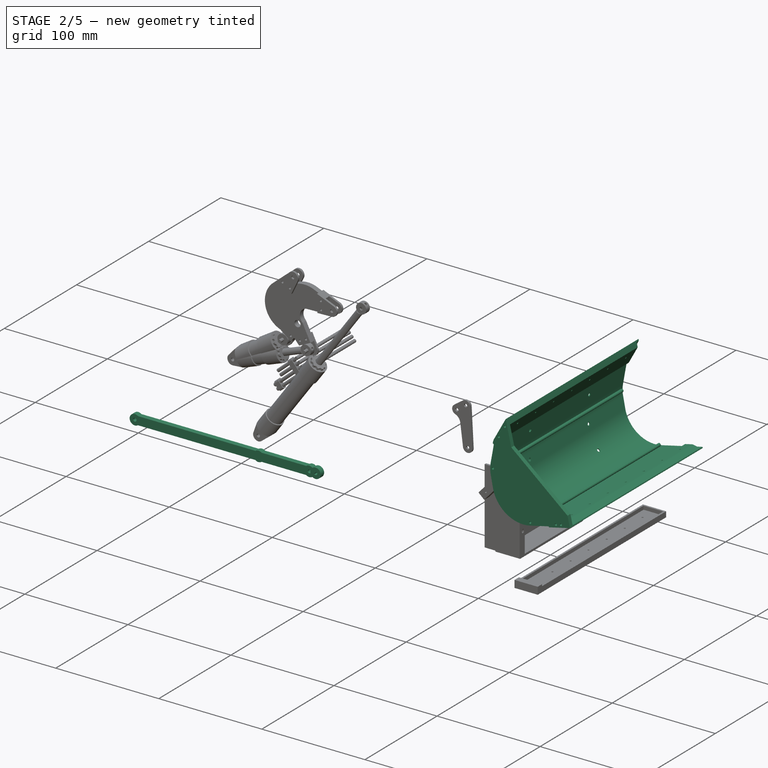
[diagram: stage 2 of 5 — iso view after this stage's code; geometry added in this stage tinted green]
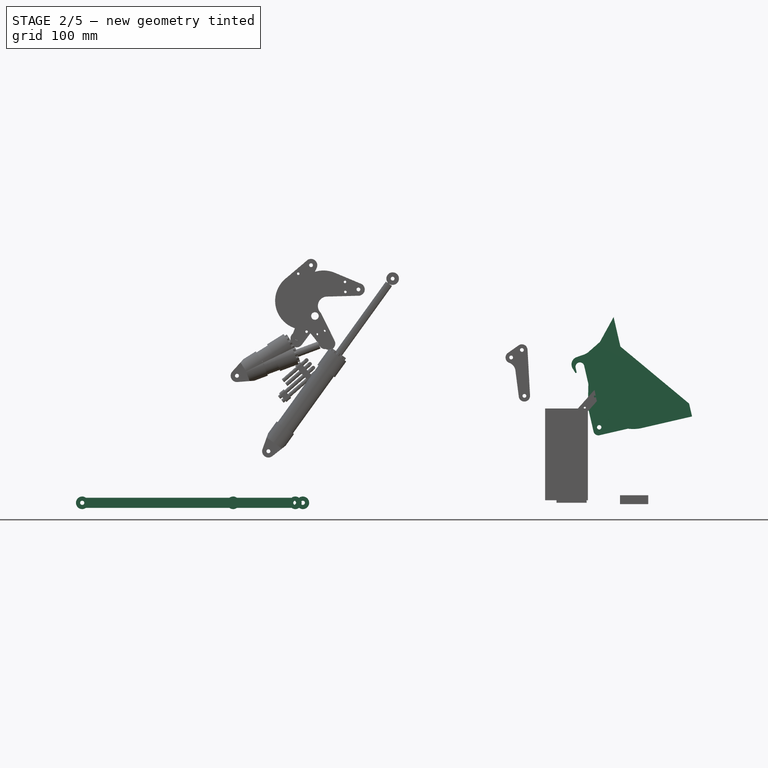
[diagram: stage 2 of 5 — front view after this stage's code; geometry added in this stage tinted green]
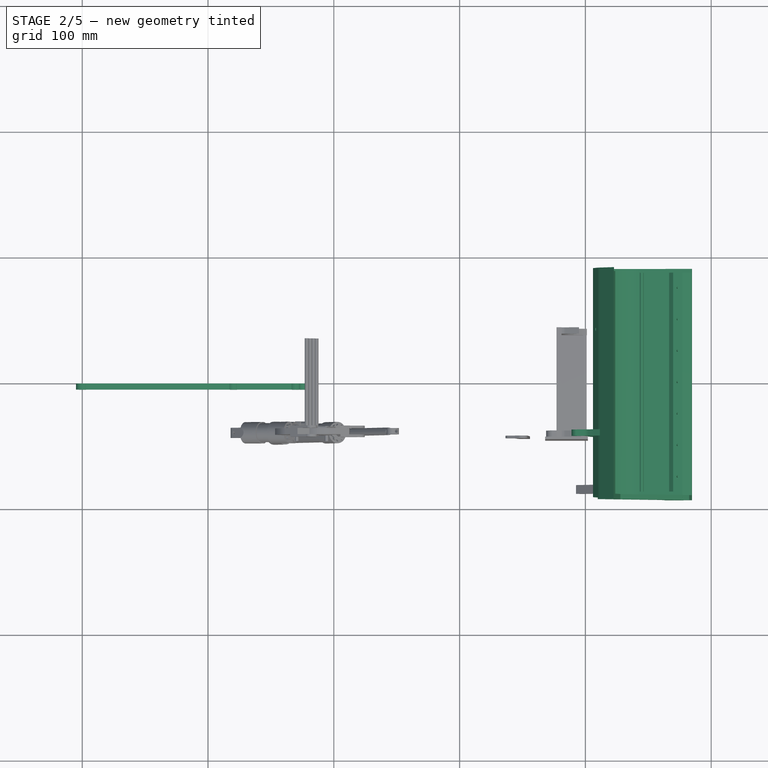
[diagram: stage 2 of 5 — top view after this stage's code; geometry added in this stage tinted green]
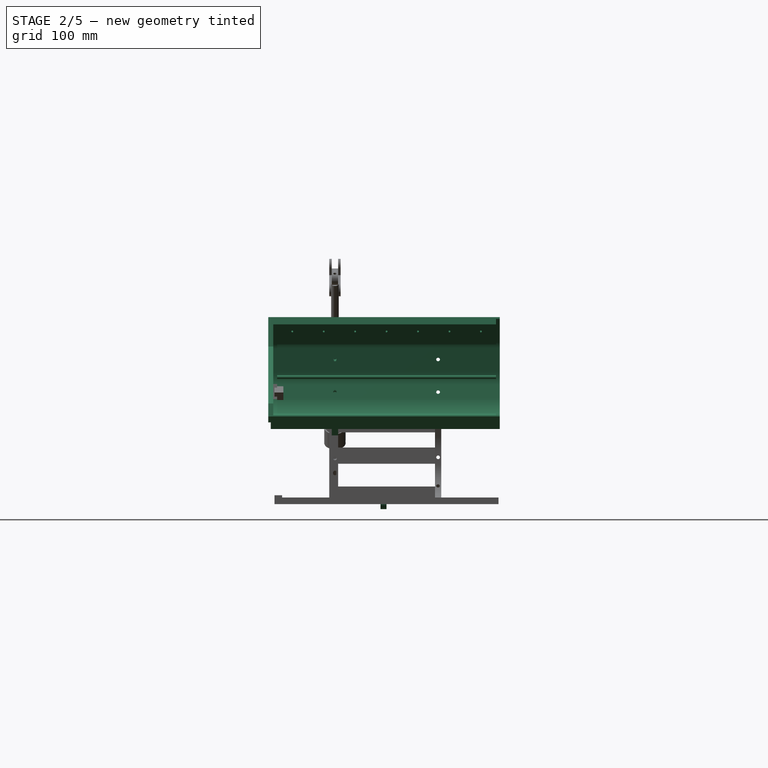
[diagram: stage 2 of 5 — right view after this stage's code; geometry added in this stage tinted green]
FEATURE [Part::Cylinder] Cylinder1492438  label="Cylinder"
  Angle = 360
  AttacherType = Attacher::AttachEngine3D
  FirstAngle = 0
  Height = 4.8
  Placement = pos=(169.4,0,0) rot=(1,0,0;1.5708rad)
  Radius = 5
  SecondAngle = 0
FEATURE [Part::Box] Box101  label="Cube"
  AttacherType = Attacher::AttachEngine3D
  Height = 8
  Length = 97
  Placement = pos=(2,-4.8,-4) rot=(0,0,1;0rad)
  Width = 4.8
FEATURE [Part::Cylinder] Cylinder1492439  label="Cylinder"
  Angle = 360
  AttacherType = Attacher::AttachEngine3D
  FirstAngle = 0
  Height = 4.8
  Placement = pos=(0,0,0) rot=(1,0,0;1.5708rad)
  Radius = 5
  SecondAngle = 0
FEATURE [Part::Box] Box102  label="Cube"
  AttacherType = Attacher::AttachEngine3D
  Height = 8
  Length = 165
  Placement = pos=(2,-4.8,-4) rot=(0,0,1;0rad)
  Width = 4.8
FEATURE [Part::MultiFuse] Fusion004002009002027014004009002002008002004029002015013017006002012002031033002013006007008014029072011018024002019049062029014012006016002033001057009078004002010031016012003004006002003003002005010012002033  label="Fusion"
  Refine = true
  Shapes = -> [Cylinder1492438,Cylinder1492439,Box102]
FEATURE [Part::Cylinder] Cylinder1492440  label="Cylinder"
  Angle = 360
  AttacherType = Attacher::AttachEngine3D
  FirstAngle = 0
  Height = 4.8
  Placement = pos=(0,0,0) rot=(1,0,0;1.5708rad)
  Radius = 1.65
  SecondAngle = 0
FEATURE [Part::Cylinder] Cylinder1492442  label="Cylinder"
  Angle = 360
  AttacherType = Attacher::AttachEngine3D
  FirstAngle = 0
  Height = 4.8
  Placement = pos=(169.4,0,0) rot=(1,0,0;1.5708rad)
  Radius = 1.65
  SecondAngle = 0
FEATURE [Part::MultiFuse] Fusion004002009002027014004009002002008002004029002015013017006002012002031033002013006007008014029072011018024002019049062029014012006016002033001057009078004002010031016012003004006002003003002005010012002034  label="Fusion"
  Refine = true
  Shapes = -> [Cylinder1492440,Cylinder1492442]
FEATURE [Part::Cut] Cut176013009033007019019008010045003002004008006010017027003005053020098001031003007007002011005005004026009004013004003002011004011006011012003004  label="LIFTING-PISTON-169.4mm-TOOL"
  Base = -> Fusion004002009002027014004009002002008002004029002015013017006002012002031033002013006007008014029072011018024002019049062029014012006016002033001057009078004002010031016012003004006002003003002005010012002033
  Refine = true
  Tool = -> Fusion004002009002027014004009002002008002004029002015013017006002012002031033002013006007008014029072011018024002019049062029014012006016002033001057009078004002010031016012003004006002003003002005010012002034
FEATURE [Part::Box] Box103  label="Cube"
  AttacherType = Attacher::AttachEngine3D
  Height = 8
  Length = 94
  Placement = pos=(2,-4.8,-4) rot=(0,0,1;0rad)
  Width = 2.3
FEATURE [Part::Cylinder] Cylinder1492443  label="Cylinder"
  Angle = 360
  AttacherType = Attacher::AttachEngine3D
  FirstAngle = 0
  Height = 4.8
  Placement = pos=(175.4,0,0) rot=(1,0,0;1.5708rad)
  Radius = 5
  SecondAngle = 0
FEATURE [Part::Cylinder] Cylinder1492444  label="Cylinder"
  Angle = 360
  AttacherType = Attacher::AttachEngine3D
  FirstAngle = 0
  Height = 4.8
  Placement = pos=(0,0,0) rot=(1,0,0;1.5708rad)
  Radius = 5
  SecondAngle = 0
FEATURE [Part::Cylinder] Cylinder1492445  label="Cylinder"
  Angle = 360
  AttacherType = Attacher::AttachEngine3D
  FirstAngle = 0
  Height = 4.8
  Placement = pos=(0,0,0) rot=(1,0,0;1.5708rad)
  Radius = 1.65
  SecondAngle = 0
FEATURE [Part::Cylinder] Cylinder1492448  label="Cylinder"
  Angle = 360
  AttacherType = Attacher::AttachEngine3D
  FirstAngle = 0
  Height = 4.8
  Placement = pos=(175.4,0,0) rot=(1,0,0;1.5708rad)
  Radius = 1.65
  SecondAngle = 0
FEATURE [Part::Box] Box104  label="Cube"
  AttacherType = Attacher::AttachEngine3D
  Height = 8
  Length = 91
  Placement = pos=(82,-2.3,-4) rot=(0,0,1;0rad)
  Width = 2.3
FEATURE [Part::Box] Box105  label="Cube"
  AttacherType = Attacher::AttachEngine3D
  Height = 3.4
  Length = 89
  Placement = pos=(83,-4.8,-1.6) rot=(0,0,1;0rad)
  Width = 4.8
FEATURE [Part::Fillet] Fillet001006007031016007
  Base = -> Box105
  Edges = 4 edges r=1.69: [Edge2,Edge4,Edge6,Edge8]
  Placement = pos=(-77,0,0) rot=(0,0,1;0rad)
FEATURE [Part::Feature] Fillet001006007031016007001  label="Fillet001006007031016007"
  shape: bbox 87 x 4.8 x 3.4 mm, 10 faces (baked)
FEATURE [Part::MultiFuse] Fusion004002009002027014004009002002008002004029002015013017006002012002031033002013006007008014029072011018024002019049062029014012006016002033001057009078004002010031016012003004006002003003002005010012002035  label="Fusion"
  Refine = true
  Shapes = -> [Box103,Cylinder1492444]
FEATURE [Part::MultiFuse] Fusion004002009002027014004009002002008002004029002015013017006002012002031033002013006007008014029072011018024002019049062029014012006016002033001057009078004002010031016012003004006002003003002005010012002036  label="Fusion"
  Refine = true
  Shapes = -> [Box104,Cylinder1492443]
FEATURE [Part::Cut] Cut176013009033007019019008010045003002004008006010017027003005053020098001031003007007002011005005004026009004013004003002011004011006011012003005  label="Cut"
  Base = -> Fusion004002009002027014004009002002008002004029002015013017006002012002031033002013006007008014029072011018024002019049062029014012006016002033001057009078004002010031016012003004006002003003002005010012002035
  Refine = true
  Tool = -> Cylinder1492445
FEATURE [Part::Cut] Cut176013009033007019019008010045003002004008006010017027003005053020098001031003007007002011005005004026009004013004003002011004011006011012003006  label="Cut"
  Base = -> Fusion004002009002027014004009002002008002004029002015013017006002012002031033002013006007008014029072011018024002019049062029014012006016002033001057009078004002010031016012003004006002003003002005010012002036
  Refine = true
  Tool = -> Cylinder1492448
FEATURE [Part::Cut] Cut176013009033007019019008010045003002004008006010017027003005053020098001031003007007002011005005004026009004013004003002011004011006011012003007  label="Cut"
  Base = -> Cut176013009033007019019008010045003002004008006010017027003005053020098001031003007007002011005005004026009004013004003002011004011006011012003005
  Refine = true
  Tool = -> Fillet001006007031016007
FEATURE [Part::Cut] Cut176013009033007019019008010045003002004008006010017027003005053020098001031003007007002011005005004026009004013004003002011004011006011012003008  label="Cut"
  Base = -> Cut176013009033007019019008010045003002004008006010017027003005053020098001031003007007002011005005004026009004013004003002011004011006011012003006
  Refine = true
  Tool = -> Fillet001006007031016007001
FEATURE [App::DocumentObjectGroup] Group009  label="Working"
  Group = -> [Fusion004002009002027014004009002002008002004029002015013017006002012002031033002013006007008014029072011018024002019049062029014012006016002033001057009078004002010031016012003004006002003003002005,Fillet001006007031011,Fillet001006007031012,Cut176013009033007019019008010045003002004008006010017027003005053020098001031003007007002011005005004026009004013004003002011004011006011012003007,+1 more]
FEATURE [Part::Box] Box106  label="Cube"
  AttacherType = Attacher::AttachEngine3D
  Height = 8
  Length = 115
  Placement = pos=(2,-4.8,-4) rot=(0,0,1;0rad)
  Width = 4.8
FEATURE [Part::Cylinder] Cylinder1492449  label="Cylinder"
  Angle = 360
  AttacherType = Attacher::AttachEngine3D
  FirstAngle = 0
  Height = 4.8
  Placement = pos=(0,0,0) rot=(1,0,0;1.5708rad)
  Radius = 1.65
  SecondAngle = 0
FEATURE [Part::Cylinder] Cylinder1492450  label="Cylinder"
  Angle = 360
  AttacherType = Attacher::AttachEngine3D
  FirstAngle = 0
  Height = 4.8
  Placement = pos=(120,0,0) rot=(1,0,0;1.5708rad)
  Radius = 1.65
  SecondAngle = 0
FEATURE [Part::Cylinder] Cylinder1492451  label="Cylinder"
  Angle = 360
  AttacherType = Attacher::AttachEngine3D
  FirstAngle = 0
  Height = 4.8
  Placement = pos=(169.4,0,0) rot=(1,0,0;1.5708rad)
  Radius = 1.65
  SecondAngle = 0
FEATURE [Part::Cylinder] Cylinder1492452  label="Cylinder"
  Angle = 360
  AttacherType = Attacher::AttachEngine3D
  FirstAngle = 0
  Height = 4.8
  Placement = pos=(0,0,0) rot=(1,0,0;1.5708rad)
  Radius = 5
  SecondAngle = 0
FEATURE [Part::Cylinder] Cylinder1492453  label="Cylinder"
  Angle = 360
  AttacherType = Attacher::AttachEngine3D
  FirstAngle = 0
  Height = 4.8
  Placement = pos=(120,0,0) rot=(1,0,0;1.5708rad)
  Radius = 5
  SecondAngle = 0
FEATURE [Part::MultiFuse] Fusion004002009002027014004009002002008002004029002015013017006002012002031033002013006007008014029072011018024002019049062029014012006016002033001057009078004002010031016012003004006002003003002005010012002037  label="Fusion"
  Refine = true
  Shapes = -> [Cylinder1492449,Cylinder1492450,Cylinder1492451]
FEATURE [Part::MultiFuse] Fusion004002009002027014004009002002008002004029002015013017006002012002031033002013006007008014029072011018024002019049062029014012006016002033001057009078004002010031016012003004006002003003002005010012002038  label="Fusion"
  Refine = true
  Shapes = -> [Cylinder1492452,Box106,Cylinder1492453]
FEATURE [Part::Cut] Cut176013009033007019019008010045003002004008006010017027003005053020098001031003007007002011005005004026009004013004003002011004011006011012003009  label="LIFTING-PISTON-120-TOOL"
  Base = -> Fusion004002009002027014004009002002008002004029002015013017006002012002031033002013006007008014029072011018024002019049062029014012006016002033001057009078004002010031016012003004006002003003002005010012002038
  Refine = true
  Tool = -> Fusion004002009002027014004009002002008002004029002015013017006002012002031033002013006007008014029072011018024002019049062029014012006016002033001057009078004002010031016012003004006002003003002005010012002037
FEATURE [Part::Feature] Cut176013009033007019019008010045003002004008006010017027003005053020098001031003007007002011005005004026009004013004003002011004011006011012003010  label="right-arm-third-lever-ext-ALU3mm"
  Placement = pos=(-34.6933,-0.2,43.6491) rot=(0,1,0;0.230383rad)
  shape: bbox 32.73 x 3 x 68.52 mm, 36 faces (baked)
FEATURE [Sketcher::SketchObject] Sketch019
  AttachmentOffset = pos=(0,0,92) rot=(0,0,1;0rad)
  FullyConstrained = false
  MapMode = 5
  Placement = pos=(0,-92,-2.04e-14) rot=(1,0,0;1.5708rad)
  Support = -> [XZ_Plane018]
  sketch-geometry (10):
    g0: LineSegment StartX=411.983 StartY=0 StartZ=0 EndX=453 EndY=0 EndZ=0
    g1: LineSegment StartX=453 StartY=0 StartZ=0 EndX=453 EndY=10.5211 EndZ=0
    g2: LineSegment StartX=453 StartY=10.5211 StartZ=0 EndX=410 EndY=67 EndZ=0
    g3: LineSegment StartX=410 StartY=67 StartZ=0 EndX=410 EndY=91 EndZ=0
    g4: LineSegment StartX=410 StartY=91 StartZ=0 EndX=394.891 EndY=74.1489 EndZ=0
    g5: LineSegment StartX=392.281 StartY=70.0616 StartZ=0 EndX=384.749 EndY=52.5217 EndZ=0
    g6: LineSegment StartX=382.361 StartY=41.8144 StartZ=0 EndX=382 EndY=31 EndZ=0
    g7: ArcOfCircle CenterX=411.983 CenterY=30 CenterZ=0 NormalX=0 NormalY=0 NormalZ=1 AngleXU=0 Radius=30 StartAngle=3.10825 EndAngle=4.71239
    g8: ArcOfCircle CenterX=411.983 CenterY=40.8264 CenterZ=0 NormalX=0 NormalY=0 NormalZ=1 AngleXU=0 Radius=29.6391 StartAngle=2.73597 EndAngle=3.10825
    g9: ArcOfCircle CenterX=406.04 CenterY=64.1532 CenterZ=0 NormalX=0 NormalY=0 NormalZ=1 AngleXU=0 Radius=14.9734 StartAngle=2.41066 EndAngle=2.73597
  constraints (19):
    c: Horizontal(g0)
    c: Coincident(g0,g1)
    c: Coincident(g1,g2)
    c: Coincident(g2,g3)
    c: Vertical(g3)
    c: DistanceX(g0) = 453
    c: DistanceY(g0) = 0
    c: DistanceX(g2) = 410
    c: Perpendicular(g0,g1)
    c: Coincident(g4,g3)
    c: Tangent(g0,g7) = -1.5708
    c: Tangent(g7,g6) = -1.5708
    c: Tangent(g5,g8) = -1.5708
    c: Tangent(g6,g8) = -1.5708
    c: Tangent(g4,g9) = -1.5708
    c: Tangent(g5,g9) = -1.5708
    c: DistanceY(g3) = 91
    c: Radius(g7) = 30
    c: Vertical(g8,g0)
FEATURE [Part::Feature] Cut176013009033007019019008010045003002004008006010017027003005053020098001031003007007002011005005004026009004013004003002011004011006011012003011  label="right-arm-third-lever-ext-ALU3mm"
  Placement = pos=(-34.69,8.2,43.65) rot=(0,1,0;0.230383rad)
  shape: bbox 32.73 x 3 x 68.52 mm, 36 faces (baked)
FEATURE [PartDesign::Pad] Pad018
  Direction = (0,-1,-2e-16)
  Length = 2
  Length2 = 10
  Placement = pos=(0,0,0) rot=(1,0,0;1.5708rad)
  Profile = -> Sketch019
  ReferenceAxis = -> Sketch019 [N_Axis]
  Refine = true
  Reversed = true
  Type = 0
FEATURE [PartDesign::Body] Body001007006  label="bucket-right-side-body"
  Group = -> [Sketch019,Pad018]
  Origin = -> Origin018
  Tip = -> Pad018
FEATURE [Part::Cylinder] Cylinder1492459  label="Cylinder"
  Angle = 360
  AttacherType = Attacher::AttachEngine3D
  FirstAngle = 0
  Height = 8
  Placement = pos=(412.5,-94,2.55) rot=(-1,0,0;1.5708rad)
  Radius = 1.05
  SecondAngle = 0
FEATURE [Part::Cylinder] Cylinder1492460  label="Cylinder"
  Angle = 360
  AttacherType = Attacher::AttachEngine3D
  FirstAngle = 0
  Height = 8
  Placement = pos=(385.73,-94,47.6) rot=(-1,0,0;1.5708rad)
  Radius = 1.05
  SecondAngle = 0
FEATURE [Part::Cylinder] Cylinder1492462  label="Cylinder"
  Angle = 360
  AttacherType = Attacher::AttachEngine3D
  FirstAngle = 0
  Height = 8
  Placement = pos=(439.5,-94,2.5) rot=(-1,0,0;1.5708rad)
  Radius = 1.05
  SecondAngle = 0
FEATURE [Part::Cylinder] Cylinder1492463  label="Cylinder"
  Angle = 360
  AttacherType = Attacher::AttachEngine3D
  FirstAngle = 0
  Height = 8
  Placement = pos=(444.5,-94,2.5) rot=(-1,0,0;1.5708rad)
  Radius = 1.05
  SecondAngle = 0
FEATURE [Part::Box] Box107  label="Cube"
  AttacherType = Attacher::AttachEngine3D
  Height = 3
  Length = 18.5
  Placement = pos=(429.5,-87,1) rot=(0,0,1;0rad)
  Width = 174
FEATURE [Part::Chamfer] Chamfer011006018
  Base = -> Box107
  Edges = 1 edges: [Edge6 r1=2.99 r2=7]
FEATURE [Part::Chamfer] Chamfer011006019
  Base = -> Chamfer011006018
  Edges = 1 edges: [Edge15 r1=4 r2=2.99]
FEATURE [Part::Cylinder] Cylinder1492470  label="Cylinder"
  Angle = 360
  AttacherType = Attacher::AttachEngine3D
  FirstAngle = 0
  Height = 10
  Placement = pos=(439.5,-87,2.5) rot=(-1,0,0;1.5708rad)
  Radius = 0.8
  SecondAngle = 0
FEATURE [Part::Cylinder] Cylinder1492471  label="Cylinder"
  Angle = 360
  AttacherType = Attacher::AttachEngine3D
  FirstAngle = 0
  Height = 10
  Placement = pos=(434.5,-87,2.5) rot=(-1,0,0;1.5708rad)
  Radius = 0.8
  SecondAngle = 0
FEATURE [Part::Cylinder] Cylinder1492472  label="Cylinder"
  Angle = 360
  AttacherType = Attacher::AttachEngine3D
  FirstAngle = 0
  Height = 10
  Placement = pos=(439.5,77,2.5) rot=(-1,0,0;1.5708rad)
  Radius = 0.8
  SecondAngle = 0
FEATURE [Part::Cylinder] Cylinder1492473  label="Cylinder"
  Angle = 360
  AttacherType = Attacher::AttachEngine3D
  FirstAngle = 0
  Height = 10
  Placement = pos=(434.5,77,2.5) rot=(-1,0,0;1.5708rad)
  Radius = 0.8
  SecondAngle = 0
FEATURE [Part::MultiFuse] Fusion004002009002027014004009002002008002004029002015013017006002012002031033002013006007008014029072011018024002019049062029014012006016002033001057009078004002010031016012003004006002003003002005010012002042  label="Fusion"
  Refine = true
  Shapes = -> [Cylinder1492470,Cylinder1492471,Cylinder1492472,Cylinder1492473]
FEATURE [Part::Cut] Cut176013009033007019019008010045003002004008006010017027003005053020098001031003007007002011005005004026009004013004003002011004011006011012003012  label="Cut"
  Base = -> Chamfer011006019
  Refine = true
  Tool = -> Fusion004002009002027014004009002002008002004029002015013017006002012002031033002013006007008014029072011018024002019049062029014012006016002033001057009078004002010031016012003004006002003003002005010012002042
FEATURE [Part::Cylinder] Cylinder1492474  label="Cylinder"
  Angle = 360
  AttacherType = Attacher::AttachEngine3D
  FirstAngle = 0
  Height = 10
  Placement = pos=(437,-75,-1.5) rot=(0,0,1;1.5708rad)
  Radius = 0.8
  SecondAngle = 0
FEATURE [Part::Cylinder] Cylinder1492475  label="Cylinder"
  Angle = 360
  AttacherType = Attacher::AttachEngine3D
  FirstAngle = 0
  Height = 10
  Placement = pos=(437,-50,-1.5) rot=(0,0,1;1.5708rad)
  Radius = 0.8
  SecondAngle = 0
FEATURE [Part::Cylinder] Cylinder1492476  label="Cylinder"
  Angle = 360
  AttacherType = Attacher::AttachEngine3D
  FirstAngle = 0
  Height = 10
  Placement = pos=(437,-25,-1.5) rot=(0,0,1;1.5708rad)
  Radius = 0.8
  SecondAngle = 0
FEATURE [Part::Cylinder] Cylinder1492477  label="Cylinder"
  Angle = 360
  AttacherType = Attacher::AttachEngine3D
  FirstAngle = 0
  Height = 10
  Placement = pos=(437,0,-1.5) rot=(0,0,1;1.5708rad)
  Radius = 0.8
  SecondAngle = 0
FEATURE [Part::Cylinder] Cylinder1492478  label="Cylinder"
  Angle = 360
  AttacherType = Attacher::AttachEngine3D
  FirstAngle = 0
  Height = 10
  Placement = pos=(437,25,-1.5) rot=(0,0,1;1.5708rad)
  Radius = 0.8
  SecondAngle = 0
FEATURE [Part::Cylinder] Cylinder1492479  label="Cylinder"
  Angle = 360
  AttacherType = Attacher::AttachEngine3D
  FirstAngle = 0
  Height = 10
  Placement = pos=(437,50,-1.5) rot=(0,0,1;1.5708rad)
  Radius = 0.8
  SecondAngle = 0
FEATURE [Part::Cylinder] Cylinder1492480  label="Cylinder"
  Angle = 360
  AttacherType = Attacher::AttachEngine3D
  FirstAngle = 0
  Height = 10
  Placement = pos=(437,75,-1.5) rot=(0,0,1;1.5708rad)
  Radius = 0.8
  SecondAngle = 0
FEATURE [Part::MultiFuse] Fusion004002009002027014004009002002008002004029002015013017006002012002031033002013006007008014029072011018024002019049062029014012006016002033001057009078004002010031016012003004006002003003002005010012002043  label="Fusion"
  Refine = true
  Shapes = -> [Cylinder1492474,Cylinder1492475,Cylinder1492476,Cylinder1492477,Cylinder1492478,Cylinder1492479,Cylinder1492480]
FEATURE [Part::Cut] Cut176013009033007019019008010045003002004008006010017027003005053020098001031003007007002011005005004026009004013004003002011004011006011012003013  label="bucket-lower-reinforcement-ALU3mm"
  Base = -> Cut176013009033007019019008010045003002004008006010017027003005053020098001031003007007002011005005004026009004013004003002011004011006011012003012
  Placement = pos=(48.2719,0,-32.1252) rot=(0,-1,0;0.226893rad)
  Refine = true
  Tool = -> Fusion004002009002027014004009002002008002004029002015013017006002012002031033002013006007008014029072011018024002019049062029014012006016002033001057009078004002010031016012003004006002003003002005010012002043
FEATURE [Image::ImagePlane] ImagePlane005
  Placement = pos=(244,0,110) rot=(-1,0,0;4.71239rad)
  XSize = 507
  YSize = 216.07
FEATURE [App::DocumentObjectGroup] Group013  label="Images"
  Group = -> [ImagePlane003,ImagePlane002,ImagePlane004,ImagePlane001,ImagePlane005]
FEATURE [Part::Cylinder] Cylinder1492493  label="Cylinder"
  Angle = 360
  AttacherType = Attacher::AttachEngine3D
  FirstAngle = 0
  Height = 174
  Placement = pos=(412.5,-87,2.55) rot=(-1,0,0;1.5708rad)
  Radius = 1.5
  SecondAngle = 0
FEATURE [Part::Cylinder] Cylinder1492494  label="Cylinder"
  Angle = 360
  AttacherType = Attacher::AttachEngine3D
  FirstAngle = 0
  Height = 174
  Placement = pos=(385.73,-87,47.6) rot=(-1,0,0;1.5708rad)
  Radius = 1.5
  SecondAngle = 0
FEATURE [Part::MultiFuse] Fusion004002009002027014004009002002008002004029002015013017006002012002031033002013006007008014029072011018024002019049062029014012006016002033001057009078004002010031016012003004006002003003002005010012002041005  label="bucket-body-reinforcement-bars-BRASS3mm"
  Placement = pos=(43.4,0,-33.25) rot=(0,-1,0;0.226893rad)
  Refine = true
  Shapes = -> [Cylinder1492493,Cylinder1492494]
FEATURE [Sketcher::SketchObject] Sketch031
  AttachmentOffset = pos=(0,0,92) rot=(0,0,1;0rad)
  FullyConstrained = false
  MapMode = 5
  Placement = pos=(0,-92,-2.04e-14) rot=(1,0,0;1.5708rad)
  Support = -> [XZ_Plane029]
  sketch-geometry (9):
    g0: LineSegment StartX=432 StartY=0 StartZ=0 EndX=453 EndY=0 EndZ=0
    g1: LineSegment StartX=453 StartY=0 StartZ=0 EndX=453 EndY=10.5211 EndZ=0
    g2: LineSegment StartX=453 StartY=10.5211 StartZ=0 EndX=410 EndY=67 EndZ=0
    g3: LineSegment StartX=410 StartY=67 StartZ=0 EndX=410 EndY=91 EndZ=0
    g4: LineSegment StartX=410 StartY=91 StartZ=0 EndX=394.891 EndY=74.1489 EndZ=0
    g5: LineSegment StartX=392.281 StartY=70.0616 StartZ=0 EndX=392.213 EndY=69.9014 EndZ=0
    g6: ArcOfCircle CenterX=406.04 CenterY=64.1532 CenterZ=0 NormalX=0 NormalY=0 NormalZ=1 AngleXU=0 Radius=14.9734 StartAngle=2.41066 EndAngle=2.73597
    g7: LineSegment StartX=392.213 StartY=69.9014 StartZ=0 EndX=432 EndY=17.6423 EndZ=0
    g8: LineSegment StartX=432 StartY=17.6423 StartZ=0 EndX=432 EndY=0 EndZ=0
  constraints (20):
    c: Horizontal(g0)
    c: Coincident(g0,g1)
    c: Coincident(g1,g2)
    c: Coincident(g2,g3)
    c: Vertical(g3)
    c: DistanceX(g0) = 453
    c: DistanceY(g0) = 0
    c: DistanceX(g2) = 410
    c: Perpendicular(g0,g1)
    c: Coincident(g4,g3)
    c: Tangent(g4,g6) = -1.5708
    c: Tangent(g5,g6) = -1.5708
    c: DistanceY(g3) = 91
    c: DistanceY(g2) = 67
    c: DistanceY(g1) = 10.5211
    c: Parallel(g7,g2)
    c: Vertical(g8)
    c: Coincident(g8,g7)
    c: Coincident(g0,g8)
    c: Coincident(g7,g5)
FEATURE [PartDesign::Pad] Pad025
  Direction = (0,-1,-2e-16)
  Length = 2
  Length2 = 10
  Placement = pos=(0,0,0) rot=(1,0,0;1.5708rad)
  Profile = -> Sketch031
  ReferenceAxis = -> Sketch031 [N_Axis]
  Refine = true
  Type = 0
FEATURE [PartDesign::Body] Body001007016  label="bucket-right-side-reinforcement-body"
  Group = -> [Sketch031,Pad025]
  Origin = -> Origin028
  Tip = -> Pad025
FEATURE [Sketcher::SketchObject] Sketch032
  AttachmentOffset = pos=(0,0,90) rot=(0,0,1;0rad)
  FullyConstrained = false
  MapMode = 5
  Placement = pos=(0,-90,-2e-14) rot=(1,0,0;1.5708rad)
  Support = -> [XZ_Plane030]
  sketch-geometry (16):
    g0: LineSegment StartX=411.983 StartY=0 StartZ=0 EndX=453 EndY=0 EndZ=0
    g1: LineSegment StartX=410 StartY=91 StartZ=0 EndX=394.892 EndY=74.145 EndZ=0
    g2: LineSegment StartX=392.286 StartY=70.0633 StartZ=0 EndX=384.751 EndY=52.5282 EndZ=0
    g3: LineSegment StartX=382.36 StartY=41.812 StartZ=0 EndX=382 EndY=30.9976 EndZ=0
    g4: ArcOfCircle CenterX=411.983 CenterY=30 CenterZ=0 NormalX=0 NormalY=0 NormalZ=1 AngleXU=0 Radius=30 StartAngle=3.10833 EndAngle=4.71239
    g5: ArcOfCircle CenterX=411.983 CenterY=40.8264 CenterZ=0 NormalX=0 NormalY=0 NormalZ=1 AngleXU=0 Radius=29.64 StartAngle=2.73575 EndAngle=3.10833
    g6: ArcOfCircle CenterX=406.04 CenterY=64.1532 CenterZ=0 NormalX=0 NormalY=0 NormalZ=1 AngleXU=0 Radius=14.97 StartAngle=2.41081 EndAngle=2.73575
    g7: LineSegment StartX=410 StartY=89.5018 StartZ=0 EndX=395.642 EndY=73.4834 EndZ=0
    g8: LineSegment StartX=393.202 StartY=69.6613 StartZ=0 EndX=385.615 EndY=52.0051 EndZ=0
    g9: ArcOfCircle CenterX=411.983 CenterY=30 CenterZ=0 NormalX=0 NormalY=0 NormalZ=1 AngleXU=0 Radius=29 StartAngle=3.10833 EndAngle=4.71296
    g10: LineSegment StartX=382.999 StartY=30.9643 StartZ=0 EndX=383.364 EndY=41.9183 EndZ=0
    g11: LineSegment StartX=453 StartY=1 StartZ=0 EndX=412 EndY=1 EndZ=0
    g12: ArcOfCircle CenterX=411.248 CenterY=40.9905 CenterZ=0 NormalX=0 NormalY=0 NormalZ=1 AngleXU=0 Radius=27.8995 StartAngle=2.73575 EndAngle=3.10833
    g13: ArcOfCircle CenterX=406.081 CenterY=64.1269 CenterZ=0 NormalX=0 NormalY=0 NormalZ=1 AngleXU=0 Radius=14.0182 StartAngle=2.41081 EndAngle=2.73575
    g14: LineSegment StartX=410 StartY=91 StartZ=0 EndX=410 EndY=89.5018 EndZ=0
    g15: LineSegment StartX=453 StartY=1 StartZ=0 EndX=453 EndY=0 EndZ=0
  constraints (39):
    c: DistanceX(g0) = 453
    c: DistanceY(g0) = 0
    c: Tangent(g0,g4) = -1.5708
    c: Tangent(g4,g3) = -1.5708
    c: Tangent(g2,g5) = -1.5708
    c: Tangent(g3,g5) = -1.5708
    c: Tangent(g1,g6) = -1.5708
    c: Tangent(g2,g6) = -1.5708
    c: Radius(g4) = 30
    c: Vertical(g5,g0)
    c: DistanceX(g6) = 406.04
    c: DistanceY(g6) = 64.1532
    c: DistanceX(g5) = 411.983
    c: DistanceY(g5) = 40.8264
    c: DistanceX(g4) = 411.983
    c: Radius(g6) = 14.97
    c: Radius(g5) = 29.64
    c: Parallel(g7,g1)
    c: Distance(g1,g7) = 1
    c: Parallel(g8,g2)
    c: Distance(g2,g8) = 1
    c: Coincident(g9,g4)
    c: Radius(g9) = 29
    c: Tangent(g10,g9) = 1.5708
    c: Distance(g3,g10) = 1
    c: Horizontal(g11)
    c: Coincident(g9,g11)
    c: Tangent(g8,g12) = -1.5708
    c: Tangent(g10,g12) = 1.5708
    c: Tangent(g7,g13) = -1.5708
    c: Tangent(g8,g13) = -1.5708
    c: DistanceX(g1) = 410
    c: DistanceY(g1) = 91
    c: Coincident(g14,g1)
    c: Coincident(g14,g7)
    c: Vertical(g14)
    c: Coincident(g15,g11)
    c: Coincident(g15,g0)
    c: Vertical(g15)
FEATURE [PartDesign::Pad] Pad026
  Direction = (0,-1,-2e-16)
  Length = 180
  Length2 = 10
  Placement = pos=(0,0,0) rot=(1,0,0;1.5708rad)
  Profile = -> Sketch032
  ReferenceAxis = -> Sketch032 [N_Axis]
  Refine = true
  Reversed = true
  Type = 0
FEATURE [PartDesign::Body] Body001007017  label="bucket-body"
  Group = -> [Sketch032,Pad026]
  Origin = -> Origin029
  Tip = -> Pad026
FEATURE [Sketcher::SketchObject] Sketch033
  AttachmentOffset = pos=(0,0,90) rot=(0,0,1;0rad)
  FullyConstrained = false
  MapMode = 5
  Placement = pos=(0,-90,-2e-14) rot=(1,0,0;1.5708rad)
  Support = -> [XZ_Plane031]
  sketch-geometry (16):
    g0: LineSegment StartX=410 StartY=89.5018 StartZ=0 EndX=395.642 EndY=73.4855 EndZ=0
    g1: LineSegment StartX=393.2 StartY=69.6612 StartZ=0 EndX=385.613 EndY=52.0037 EndZ=0
    g2: ArcOfCircle CenterX=411.982 CenterY=30 CenterZ=0 NormalX=0 NormalY=0 NormalZ=1 AngleXU=0 Radius=29 StartAngle=3.1083 EndAngle=4.713
    g3: LineSegment StartX=382.998 StartY=30.9653 StartZ=0 EndX=383.363 EndY=41.9192 EndZ=0
    g4: LineSegment StartX=453 StartY=1.00001 StartZ=0 EndX=412 EndY=1.00001 EndZ=0
    g5: ArcOfCircle CenterX=411.248 CenterY=40.9905 CenterZ=0 NormalX=0 NormalY=0 NormalZ=1 AngleXU=0 Radius=27.9 StartAngle=2.73581 EndAngle=3.1083
    g6: ArcOfCircle CenterX=406.081 CenterY=64.1269 CenterZ=0 NormalX=0 NormalY=0 NormalZ=1 AngleXU=0 Radius=14.02 StartAngle=2.41073 EndAngle=2.73581
    g7: LineSegment StartX=410 StartY=85.0075 StartZ=0 EndX=397.876 EndY=71.4829 EndZ=0
    g8: LineSegment StartX=395.956 StartY=68.477 StartZ=0 EndX=388.37 EndY=50.8192 EndZ=0
    g9: LineSegment StartX=386.362 StartY=41.8198 StartZ=0 EndX=385.997 EndY=30.8654 EndZ=0
    g10: LineSegment StartX=412 StartY=4.00001 StartZ=0 EndX=446 EndY=4.00001 EndZ=0
    g11: ArcOfCircle CenterX=411.982 CenterY=30 CenterZ=0 NormalX=0 NormalY=0 NormalZ=1 AngleXU=0 Radius=26 StartAngle=3.1083 EndAngle=4.71307
    g12: ArcOfCircle CenterX=406.081 CenterY=64.1269 CenterZ=0 NormalX=0 NormalY=0 NormalZ=1 AngleXU=0 Radius=11.02 StartAngle=2.41073 EndAngle=2.73581
    g13: ArcOfCircle CenterX=411.246 CenterY=40.991 CenterZ=0 NormalX=0 NormalY=0 NormalZ=1 AngleXU=0 Radius=24.898 StartAngle=2.73581 EndAngle=3.1083
    g14: LineSegment StartX=446 StartY=4.00001 StartZ=0 EndX=453 EndY=1.00001 EndZ=0
    g15: LineSegment StartX=410 StartY=89.5018 StartZ=0 EndX=410 EndY=85.0075 EndZ=0
  constraints (39):
    c: Radius(g2) = 29
    c: Tangent(g3,g2) = 1.5708
    c: Horizontal(g4)
    c: Coincident(g2,g4)
    c: Tangent(g1,g5) = -1.5708
    c: Tangent(g3,g5) = 1.5708
    c: Tangent(g0,g6) = -1.5708
    c: Tangent(g1,g6) = -1.5708
    c: DistanceX(g6) = 406.081
    c: DistanceY(g6) = 64.1269
    c: DistanceX(g5) = 411.248
    c: DistanceY(g5) = 40.9905
    c: DistanceX(g0) = 410
    c: DistanceY(g0) = 89.5018
    c: Radius(g6) = 14.02
    c: Radius(g5) = 27.9
    c: DistanceX(g2) = 412
    c: DistanceY(g2) = 1.00001
    c: Horizontal(g10)
    c: Parallel(g7,g0)
    c: Parallel(g8,g1)
    c: Parallel(g9,g3)
    c: Distance(g0,g7) = 3
    c: Distance(g1,g8) = 3
    c: Distance(g3,g9) = 3
    c: DistanceY(g3) = 41.9192
    c: Coincident(g11,g2)
    c: Coincident(g11,g10)
    c: Coincident(g11,g9)
    c: Radius(g11) = 26
    c: Tangent(g7,g12) = -1.5708
    c: Tangent(g8,g12) = -1.5708
    c: Tangent(g8,g13) = -1.5708
    c: Tangent(g9,g13) = -1.5708
    c: Coincident(g14,g10)
    c: Coincident(g14,g4)
    c: Coincident(g15,g0)
    c: Vertical(g15)
    c: Coincident(g15,g7)
FEATURE [PartDesign::Pad] Pad027
  Direction = (0,-1,-2e-16)
  Length = 3
  Length2 = 10
  Placement = pos=(0,0,0) rot=(1,0,0;1.5708rad)
  Profile = -> Sketch033
  ReferenceAxis = -> Sketch033 [N_Axis]
  Refine = true
  Reversed = true
  Type = 0
FEATURE [PartDesign::Body] Body001007018  label="bucket-right-side-inner-reinforcement-body"
  Group = -> [Sketch033,Pad027]
  Origin = -> Origin030
  Tip = -> Pad027
FEATURE [Sketcher::SketchObject] Sketch034
  AttachmentOffset = pos=(0,0,43.5) rot=(0,0,1;0rad)
  FullyConstrained = false
  MapMode = 5
  Placement = pos=(0,-43.5,-9.7e-15) rot=(1,0,0;1.5708rad)
  Support = -> [XZ_Plane032]
  sketch-geometry (19):
    g0: LineSegment StartX=392.281 StartY=70.0616 StartZ=0 EndX=384.749 EndY=52.5217 EndZ=0
    g1: LineSegment StartX=382.361 StartY=41.8144 StartZ=0 EndX=382 EndY=31 EndZ=0
    g2: ArcOfCircle CenterX=411.983 CenterY=30 CenterZ=0 NormalX=0 NormalY=0 NormalZ=1 AngleXU=0 Radius=30 StartAngle=3.10825 EndAngle=4.34518
    g3: ArcOfCircle CenterX=411.983 CenterY=40.8264 CenterZ=0 NormalX=0 NormalY=0 NormalZ=1 AngleXU=0 Radius=29.6391 StartAngle=2.73597 EndAngle=3.10825
    g4: ArcOfCircle CenterX=406.04 CenterY=64.1532 CenterZ=0 NormalX=0 NormalY=0 NormalZ=1 AngleXU=0 Radius=14.9734 StartAngle=2.41066 EndAngle=2.73597
    g5: LineSegment StartX=401.213 StartY=2 StartZ=0 EndX=378 EndY=2 EndZ=0
    g6: LineSegment StartX=374 StartY=6 StartZ=0 EndX=374 EndY=24.4559 EndZ=0
    g7: LineSegment StartX=374.335 StartY=27.1787 StartZ=0 EndX=378.5 EndY=43.8214 EndZ=0
    g8: LineSegment StartX=378.5 StartY=58.5 StartZ=0 EndX=378.5 EndY=43.8214 EndZ=0
    g9: ArcOfCircle CenterX=375 CenterY=58.5 CenterZ=0 NormalX=0 NormalY=0 NormalZ=1 AngleXU=0 Radius=3.5 StartAngle=0 EndAngle=3.14159
    g10: LineSegment StartX=371.5 StartY=58.5 StartZ=0 EndX=371.5 EndY=54.4797 EndZ=0
    g11: LineSegment StartX=371.5 StartY=54.4797 StartZ=0 EndX=370.459 EndY=54.4797 EndZ=0
    g12: LineSegment StartX=370.459 StartY=54.4797 StartZ=0 EndX=369.109 EndY=58.4912 EndZ=0
    g13: ArcOfCircle CenterX=374.994 CenterY=60.4729 CenterZ=0 NormalX=0 NormalY=0 NormalZ=1 AngleXU=0 Radius=6.21003 StartAngle=1.81379 EndAngle=3.46637
    g14: LineSegment StartX=373.5 StartY=66.5005 StartZ=0 EndX=380.512 EndY=67.2794 EndZ=0
    g15: LineSegment StartX=384.263 StartY=68.446 StartZ=0 EndX=394.891 EndY=74.1489 EndZ=0
    g16: ArcOfCircle CenterX=378 CenterY=6 CenterZ=0 NormalX=0 NormalY=0 NormalZ=1 AngleXU=0 Radius=4 StartAngle=3.14159 EndAngle=4.71239
    g17: ArcOfCircle CenterX=385.216 CenterY=24.4559 CenterZ=0 NormalX=0 NormalY=0 NormalZ=1 AngleXU=0 Radius=11.2163 StartAngle=2.8964 EndAngle=3.14159
    g18: ArcOfCircle CenterX=379.369 CenterY=77.5664 CenterZ=0 NormalX=0 NormalY=0 NormalZ=1 AngleXU=0 Radius=10.3503 StartAngle=4.82302 EndAngle=5.20485
  constraints (28):
    c: Tangent(g2,g1) = -1.5708
    c: Tangent(g0,g3) = -1.5708
    c: Tangent(g1,g3) = -1.5708
    c: Tangent(g0,g4) = -1.5708
    c: Radius(g2) = 30
    c: Horizontal(g5)
    c: Vertical(g6)
    c: Coincident(g2,g5)
    c: Vertical(g8)
    c: Coincident(g8,g7)
    c: Coincident(g9,g8)
    c: Coincident(g10,g9)
    c: Vertical(g10)
    c: Coincident(g11,g10)
    c: Horizontal(g11)
    c: Coincident(g12,g11)
    c: Coincident(g14,g13)
    c: Coincident(g15,g4)
    c: DistanceX(g2) = 401.213
    c: DistanceY(g2) = 2
    c: Tangent(g5,g16) = 1.5708
    c: Tangent(g6,g16) = 1.5708
    c: Radius(g16) = 4
    c: Tangent(g7,g17) = 1.5708
    c: Tangent(g6,g17) = 1.5708
    c: Tangent(g14,g18) = -1.5708
    c: Tangent(g15,g18) = -1.5708
    c: Tangent(g13,g12) = 1.5708
FEATURE [PartDesign::Pad] Pad028
  Direction = (0,-1,-2e-16)
  Length = 5
  Length2 = 10
  Placement = pos=(0,0,0) rot=(1,0,0;1.5708rad)
  Profile = -> Sketch034
  ReferenceAxis = -> Sketch034 [N_Axis]
  Refine = true
  Reversed = true
  Type = 0
FEATURE [Sketcher::SketchObject] Sketch035
  FullyConstrained = true
  MapMode = 5
  Placement = pos=(0,0,0) rot=(1,0,0;1.5708rad)
  Support = -> [XZ_Plane032]
  sketch-geometry (1):
    g0: Circle CenterX=379.15 CenterY=8.2 CenterZ=0 NormalX=0 NormalY=0 NormalZ=1 AngleXU=0 Radius=1.75
  constraints (3):
    c: DistanceX(g0) = 379.15
    c: DistanceY(g0) = 8.2
    c: Diameter(g0) = 3.5
FEATURE [PartDesign::Pocket] Pocket003
  BaseFeature = -> Pad028
  Direction = (0,1,2e-16)
  Length = 5
  Length2 = 5
  Placement = pos=(0,0,0) rot=(1,0,0;1.5708rad)
  Profile = -> Sketch035
  ReferenceAxis = -> Sketch035 [N_Axis]
  Refine = true
  Reversed = true
  Type = 1
FEATURE [PartDesign::Body] Body001007019  label="bucket-right-quick-connect-attach-body"
  Group = -> [Sketch034,Pad028,Sketch035,Pocket003]
  Origin = -> Origin031
  Tip = -> Pocket003
FEATURE [Part::Cylinder] Cylinder1492496  label="Cylinder"
  Angle = 360
  AttacherType = Attacher::AttachEngine3D
  FirstAngle = 0
  Height = 8
  Placement = pos=(412.5,-94,2.55) rot=(-1,0,0;1.5708rad)
  Radius = 1.05
  SecondAngle = 0
FEATURE [Part::Cylinder] Cylinder1492497  label="Cylinder"
  Angle = 360
  AttacherType = Attacher::AttachEngine3D
  FirstAngle = 0
  Height = 8
  Placement = pos=(385.73,-94,47.6) rot=(-1,0,0;1.5708rad)
  Radius = 1.05
  SecondAngle = 0
FEATURE [Part::Cylinder] Cylinder1492499  label="Cylinder"
  Angle = 360
  AttacherType = Attacher::AttachEngine3D
  FirstAngle = 0
  Height = 8
  Placement = pos=(439.5,-94,2.5) rot=(-1,0,0;1.5708rad)
  Radius = 1.05
  SecondAngle = 0
FEATURE [Part::Cylinder] Cylinder1492500  label="Cylinder"
  Angle = 360
  AttacherType = Attacher::AttachEngine3D
  FirstAngle = 0
  Height = 8
  Placement = pos=(444.5,-94,2.5) rot=(-1,0,0;1.5708rad)
  Radius = 1.05
  SecondAngle = 0
FEATURE [Part::Cylinder] Cylinder1492501  label="Cylinder"
  Angle = 360
  AttacherType = Attacher::AttachEngine3D
  FirstAngle = 0
  Height = 8
  Placement = pos=(412.5,-94,2.55) rot=(-1,0,0;1.5708rad)
  Radius = 1.05
  SecondAngle = 0
FEATURE [Part::Cylinder] Cylinder1492502  label="Cylinder"
  Angle = 360
  AttacherType = Attacher::AttachEngine3D
  FirstAngle = 0
  Height = 8
  Placement = pos=(385.73,-94,47.6) rot=(-1,0,0;1.5708rad)
  Radius = 1.05
  SecondAngle = 0
FEATURE [Part::Cylinder] Cylinder1492504  label="Cylinder"
  Angle = 360
  AttacherType = Attacher::AttachEngine3D
  FirstAngle = 0
  Height = 8
  Placement = pos=(439.5,-94,2.5) rot=(-1,0,0;1.5708rad)
  Radius = 1.05
  SecondAngle = 0
FEATURE [Part::Cylinder] Cylinder1492505  label="Cylinder"
  Angle = 360
  AttacherType = Attacher::AttachEngine3D
  FirstAngle = 0
  Height = 8
  Placement = pos=(444.5,-94,2.5) rot=(-1,0,0;1.5708rad)
  Radius = 1.05
  SecondAngle = 0
FEATURE [Part::Cylinder] Cylinder1492506  label="Cylinder"
  Angle = 360
  AttacherType = Attacher::AttachEngine3D
  FirstAngle = 0
  Height = 10
  Placement = pos=(392,-41,60) rot=(0,-1,0;1.16937rad)
  Radius = 1.25
  SecondAngle = 0
FEATURE [Part::Cylinder] Cylinder1492507  label="Cylinder"
  Angle = 360
  AttacherType = Attacher::AttachEngine3D
  FirstAngle = 0
  Height = 8
  Placement = pos=(385.5,-41,36) rot=(0,-1,0;1.53589rad)
  Radius = 1.25
  SecondAngle = 0
FEATURE [Part::Cylinder] Cylinder1492508  label="Cylinder"
  Angle = 360
  AttacherType = Attacher::AttachEngine3D
  FirstAngle = 0
  Height = 10
  Placement = pos=(390,-41,15.5) rot=(0,1,0;4.11025rad)
  Radius = 1.25
  SecondAngle = 0
FEATURE [Part::MultiFuse] Fusion004002009002027014004009002002008002004029002015013017006002012002031033002013006007008014029072011018024002019049062029014012006016002033001057009078004002010031016012003004006002003003002005010012002041008  label="Fusion"
  Refine = true
  Shapes = -> [Cylinder1492506,Cylinder1492507,Cylinder1492508]
FEATURE [Part::Cut] Cut176013009033007019019008010045003002004008006010017027003005053020098001031003007007002011005005004026009004013004003002011004011006011012003022  label="bucket-right-quick-connect-attach-ALU5mm"
  Base = -> Body001007019
  Placement = pos=(43.4,0,-33.25) rot=(0,-1,0;0.226893rad)
  Refine = true
  Tool = -> Fusion004002009002027014004009002002008002004029002015013017006002012002031033002013006007008014029072011018024002019049062029014012006016002033001057009078004002010031016012003004006002003003002005010012002041008
FEATURE [Part::Cylinder] Cylinder1492509  label="Cylinder"
  Angle = 360
  AttacherType = Attacher::AttachEngine3D
  FirstAngle = 0
  Height = 10
  Placement = pos=(392,-41,60) rot=(0,-1,0;1.16937rad)
  Radius = 1.5
  SecondAngle = 0
FEATURE [Part::Cylinder] Cylinder1492510  label="Cylinder"
  Angle = 360
  AttacherType = Attacher::AttachEngine3D
  FirstAngle = 0
  Height = 10
  Placement = pos=(385.5,-41,36) rot=(0,-1,0;1.53589rad)
  Radius = 1.5
  SecondAngle = 0
FEATURE [Part::Cylinder] Cylinder1492511  label="Cylinder"
  Angle = 360
  AttacherType = Attacher::AttachEngine3D
  FirstAngle = 0
  Height = 10
  Placement = pos=(390,-41,15.5) rot=(0,1,0;4.11025rad)
  Radius = 1.5
  SecondAngle = 0
FEATURE [Part::MultiFuse] Fusion004002009002027014004009002002008002004029002015013017006002012002031033002013006007008014029072011018024002019049062029014012006016002033001057009078004002010031016012003004006002003003002005010012002041009  label="Fusion"
  Refine = true
  Shapes = -> [Cylinder1492509,Cylinder1492510,Cylinder1492511]
FEATURE [Part::Feature] Cut176013009033007019019008010045003002004008006010017027003005053020098001031003007007002011005005004026009004013004003002011004011006011012003022002  label="bucket-left-quick-connect-attach-ALU5mm"
  Placement = pos=(43.4,82,-33.25) rot=(0,-1,0;0.226893rad)
  shape: bbox 44.91 x 5 x 74.2 mm, 28 faces (baked)
FEATURE [Part::Cylinder] Cylinder1492512  label="Cylinder"
  Angle = 360
  AttacherType = Attacher::AttachEngine3D
  FirstAngle = 0
  Height = 10
  Placement = pos=(392,-41,60) rot=(0,-1,0;1.16937rad)
  Radius = 1.5
  SecondAngle = 0
FEATURE [Part::Cylinder] Cylinder1492513  label="Cylinder"
  Angle = 360
  AttacherType = Attacher::AttachEngine3D
  FirstAngle = 0
  Height = 10
  Placement = pos=(385.5,-41,36) rot=(0,-1,0;1.53589rad)
  Radius = 1.5
  SecondAngle = 0
FEATURE [Part::Cylinder] Cylinder1492514  label="Cylinder"
  Angle = 360
  AttacherType = Attacher::AttachEngine3D
  FirstAngle = 0
  Height = 10
  Placement = pos=(390,-41,15.5) rot=(0,1,0;4.11025rad)
  Radius = 1.5
  SecondAngle = 0
FEATURE [Part::MultiFuse] Fusion004002009002027014004009002002008002004029002015013017006002012002031033002013006007008014029072011018024002019049062029014012006016002033001057009078004002010031016012003004006002003003002005010012002041010  label="Fusion"
  Placement = pos=(0,82,0) rot=(0,0,1;0rad)
  Refine = true
  Shapes = -> [Cylinder1492512,Cylinder1492513,Cylinder1492514]
FEATURE [Part::MultiFuse] Fusion004002009002027014004009002002008002004029002015013017006002012002031033002013006007008014029072011018024002019049062029014012006016002033001057009078004002010031016012003004006002003003002005010012002041011  label="Fusion"
  Refine = true
  Shapes = -> [Fusion004002009002027014004009002002008002004029002015013017006002012002031033002013006007008014029072011018024002019049062029014012006016002033001057009078004002010031016012003004006002003003002005010012002041010,+1 more]
FEATURE [Part::Cut] Cut176013009033007019019008010045003002004008006010017027003005053020098001031003007007002011005005004026009004013004003002011004011006011012003022003  label="bucket-body-ALU1mm"
  Base = -> Body001007017
  Placement = pos=(43.4,0,-33.25) rot=(0,-1,0;0.226893rad)
  Refine = true
  Tool = -> Fusion004002009002027014004009002002008002004029002015013017006002012002031033002013006007008014029072011018024002019049062029014012006016002033001057009078004002010031016012003004006002003003002005010012002041011
FEATURE [Sketcher::SketchObject] Sketch036
  AttachmentOffset = pos=(0,0,87) rot=(0,0,1;0rad)
  FullyConstrained = false
  MapMode = 5
  Placement = pos=(0,-87,-1.93e-14) rot=(1,0,0;1.5708rad)
  Support = -> [XZ_Plane033]
  sketch-geometry (4):
    g0: LineSegment StartX=410 StartY=89.5018 StartZ=0 EndX=395.642 EndY=73.4855 EndZ=0
    g1: LineSegment StartX=410 StartY=85.0075 StartZ=0 EndX=397.891 EndY=71.5 EndZ=0
    g2: LineSegment StartX=410 StartY=89.5018 StartZ=0 EndX=410 EndY=85.0075 EndZ=0
    g3: LineSegment StartX=395.642 StartY=73.4855 StartZ=0 EndX=397.891 EndY=71.5 EndZ=0
  constraints (9):
    c: DistanceX(g0) = 410
    c: DistanceY(g0) = 89.5018
    c: Parallel(g1,g0)
    c: Distance(g0,g1) = 3
    c: Coincident(g2,g0)
    c: Vertical(g2)
    c: Coincident(g2,g1)
    c: Coincident(g3,g0)
    c: Coincident(g3,g1)
FEATURE [PartDesign::Pad] Pad029
  Direction = (0,-1,-2e-16)
  Length = 174
  Length2 = 10
  Placement = pos=(0,0,0) rot=(1,0,0;1.5708rad)
  Profile = -> Sketch036
  ReferenceAxis = -> Sketch036 [N_Axis]
  Refine = true
  Reversed = true
  Type = 0
FEATURE [PartDesign::Body] Body001007020  label="bucket-upper-reinforcement-body"
  Group = -> [Sketch036,Pad029]
  Origin = -> Origin032
  Tip = -> Pad029
FEATURE [Part::Cylinder] Cylinder1492515  label="Cylinder"
  Angle = 360
  AttacherType = Attacher::AttachEngine3D
  FirstAngle = 0
  Height = 10
  Placement = pos=(437,-75,-1.5) rot=(0,0,1;1.5708rad)
  Radius = 0.8
  SecondAngle = 0
FEATURE [Part::Cylinder] Cylinder1492516  label="Cylinder"
  Angle = 360
  AttacherType = Attacher::AttachEngine3D
  FirstAngle = 0
  Height = 10
  Placement = pos=(437,-50,-1.5) rot=(0,0,1;1.5708rad)
  Radius = 0.8
  SecondAngle = 0
FEATURE [Part::Cylinder] Cylinder1492517  label="Cylinder"
  Angle = 360
  AttacherType = Attacher::AttachEngine3D
  FirstAngle = 0
  Height = 10
  Placement = pos=(437,-25,-1.5) rot=(0,0,1;1.5708rad)
  Radius = 0.8
  SecondAngle = 0
FEATURE [Part::Cylinder] Cylinder1492518  label="Cylinder"
  Angle = 360
  AttacherType = Attacher::AttachEngine3D
  FirstAngle = 0
  Height = 10
  Placement = pos=(437,0,-1.5) rot=(0,0,1;1.5708rad)
  Radius = 0.8
  SecondAngle = 0
FEATURE [Part::Cylinder] Cylinder1492519  label="Cylinder"
  Angle = 360
  AttacherType = Attacher::AttachEngine3D
  FirstAngle = 0
  Height = 10
  Placement = pos=(437,25,-1.5) rot=(0,0,1;1.5708rad)
  Radius = 0.8
  SecondAngle = 0
FEATURE [Part::Cylinder] Cylinder1492520  label="Cylinder"
  Angle = 360
  AttacherType = Attacher::AttachEngine3D
  FirstAngle = 0
  Height = 10
  Placement = pos=(437,50,-1.5) rot=(0,0,1;1.5708rad)
  Radius = 0.8
  SecondAngle = 0
FEATURE [Part::Cylinder] Cylinder1492521  label="Cylinder"
  Angle = 360
  AttacherType = Attacher::AttachEngine3D
  FirstAngle = 0
  Height = 10
  Placement = pos=(437,75,-1.5) rot=(0,0,1;1.5708rad)
  Radius = 0.8
  SecondAngle = 0
FEATURE [Part::MultiFuse] Fusion004002009002027014004009002002008002004029002015013017006002012002031033002013006007008014029072011018024002019049062029014012006016002033001057009078004002010031016012003004006002003003002005010012002041012  label="Fusion"
  Placement = pos=(108.95,0,-240.51) rot=(0,-1,0;0.820305rad)
  Refine = true
  Shapes = -> [Cylinder1492515,Cylinder1492516,Cylinder1492517,Cylinder1492518,Cylinder1492519,Cylinder1492520,Cylinder1492521]
FEATURE [Part::Cut] Cut176013009033007019019008010045003002004008006010017027003005053020098001031003007007002011005005004026009004013004003002011004011006011012003022004  label="Cut"
  Base = -> Body001007020
  Refine = true
  Tool = -> Fusion004002009002027014004009002002008002004029002015013017006002012002031033002013006007008014029072011018024002019049062029014012006016002033001057009078004002010031016012003004006002003003002005010012002041012
FEATURE [Part::Cylinder] Cylinder1492523  label="Cylinder"
  Angle = 360
  AttacherType = Attacher::AttachEngine3D
  FirstAngle = 0
  Height = 8
  Placement = pos=(399.5,-94,75.55) rot=(-1,0,0;1.5708rad)
  Radius = 1.05
  SecondAngle = 0
FEATURE [Part::Cylinder] Cylinder1492524  label="Cylinder"
  Angle = 360
  AttacherType = Attacher::AttachEngine3D
  FirstAngle = 0
  Height = 8
  Placement = pos=(407.55,-94,84.5) rot=(-1,0,0;1.5708rad)
  Radius = 1.05
  SecondAngle = 0
FEATURE [Part::MultiFuse] Fusion004002009002027014004009002002008002004029002015013017006002012002031033002013006007008014029072011018024002019049062029014012006016002033001057009078004002010031016012003004006002003003002005010012002041004  label="Fusion"
  Refine = true
  Shapes = -> [Cylinder1492459,Cylinder1492460,Cylinder1492462,Cylinder1492463,Cylinder1492523,Cylinder1492524]
FEATURE [Part::Cut] Cut176013009033007019019008010045003002004008006010017027003005053020098001031003007007002011005005004026009004013004003002011004011006011012003019  label="bucket-right-side-ALU2mm"
  Base = -> Body001007006
  Placement = pos=(43.4,0,-33.25) rot=(0,-1,0;0.226893rad)
  Refine = true
  Tool = -> Fusion004002009002027014004009002002008002004029002015013017006002012002031033002013006007008014029072011018024002019049062029014012006016002033001057009078004002010031016012003004006002003003002005010012002041004
FEATURE [Part::Cylinder] Cylinder1492525  label="Cylinder"
  Angle = 360
  AttacherType = Attacher::AttachEngine3D
  FirstAngle = 0
  Height = 8
  Placement = pos=(399.5,-94,75.55) rot=(-1,0,0;1.5708rad)
  Radius = 1.05
  SecondAngle = 0
FEATURE [Part::Cylinder] Cylinder1492526  label="Cylinder"
  Angle = 360
  AttacherType = Attacher::AttachEngine3D
  FirstAngle = 0
  Height = 8
  Placement = pos=(407.55,-94,84.5) rot=(-1,0,0;1.5708rad)
  Radius = 1.05
  SecondAngle = 0
FEATURE [Part::MultiFuse] Fusion004002009002027014004009002002008002004029002015013017006002012002031033002013006007008014029072011018024002019049062029014012006016002033001057009078004002010031016012003004006002003003002005010012002041006  label="Fusion"
  Refine = true
  Shapes = -> [Cylinder1492496,Cylinder1492497,Cylinder1492499,Cylinder1492500,Cylinder1492525,Cylinder1492526]
FEATURE [Part::Cut] Cut176013009033007019019008010045003002004008006010017027003005053020098001031003007007002011005005004026009004013004003002011004011006011012003020  label="bucket-right-side-reinforcement-ALU2mm"
  Base = -> Body001007016
  Placement = pos=(43.4,0,-33.25) rot=(0,-1,0;0.226893rad)
  Refine = true
  Tool = -> Fusion004002009002027014004009002002008002004029002015013017006002012002031033002013006007008014029072011018024002019049062029014012006016002033001057009078004002010031016012003004006002003003002005010012002041006
FEATURE [Part::Cylinder] Cylinder1492527  label="Cylinder"
  Angle = 360
  AttacherType = Attacher::AttachEngine3D
  FirstAngle = 0
  Height = 8
  Placement = pos=(399.5,-94,75.55) rot=(-1,0,0;1.5708rad)
  Radius = 1.05
  SecondAngle = 0
FEATURE [Part::Cylinder] Cylinder1492528  label="Cylinder"
  Angle = 360
  AttacherType = Attacher::AttachEngine3D
  FirstAngle = 0
  Height = 8
  Placement = pos=(407.55,-94,84.5) rot=(-1,0,0;1.5708rad)
  Radius = 1.05
  SecondAngle = 0
FEATURE [Part::MultiFuse] Fusion004002009002027014004009002002008002004029002015013017006002012002031033002013006007008014029072011018024002019049062029014012006016002033001057009078004002010031016012003004006002003003002005010012002041007  label="Fusion"
  Refine = true
  Shapes = -> [Cylinder1492501,Cylinder1492502,Cylinder1492504,Cylinder1492505,Cylinder1492527,Cylinder1492528]
FEATURE [Part::Cut] Cut176013009033007019019008010045003002004008006010017027003005053020098001031003007007002011005005004026009004013004003002011004011006011012003021  label="bucket-right-side-inner-reinforcement-ALU3mm"
  Base = -> Body001007018
  Placement = pos=(43.4,0,-33.25) rot=(0,-1,0;0.226893rad)
  Refine = true
  Tool = -> Fusion004002009002027014004009002002008002004029002015013017006002012002031033002013006007008014029072011018024002019049062029014012006016002033001057009078004002010031016012003004006002003003002005010012002041007
FEATURE [Part::Cylinder] Cylinder1492529  label="Cylinder"
  Angle = 360
  AttacherType = Attacher::AttachEngine3D
  FirstAngle = 0
  Height = 8
  Placement = pos=(399.5,-87,75.55) rot=(-1,0,0;1.5708rad)
  Radius = 0.8
  SecondAngle = 0
FEATURE [Part::Cylinder] Cylinder1492530  label="Cylinder"
  Angle = 360
  AttacherType = Attacher::AttachEngine3D
  FirstAngle = 0
  Height = 8
  Placement = pos=(407.55,-87,84.5) rot=(-1,0,0;1.5708rad)
  Radius = 0.8
  SecondAngle = 0
FEATURE [Part::Cylinder] Cylinder1492531  label="Cylinder"
  Angle = 360
  AttacherType = Attacher::AttachEngine3D
  FirstAngle = 0
  Height = 8
  Placement = pos=(399.5,79,75.55) rot=(-1,0,0;1.5708rad)
  Radius = 0.8
  SecondAngle = 0
FEATURE [Part::Cylinder] Cylinder1492532  label="Cylinder"
  Angle = 360
  AttacherType = Attacher::AttachEngine3D
  FirstAngle = 0
  Height = 8
  Placement = pos=(407.55,79,84.5) rot=(-1,0,0;1.5708rad)
  Radius = 0.8
  SecondAngle = 0
FEATURE [Part::MultiFuse] Fusion004002009002027014004009002002008002004029002015013017006002012002031033002013006007008014029072011018024002019049062029014012006016002033001057009078004002010031016012003004006002003003002005010012002041013  label="Fusion"
  Refine = true
  Shapes = -> [Cylinder1492529,Cylinder1492530,Cylinder1492531,Cylinder1492532]
FEATURE [Part::Cut] Cut176013009033007019019008010045003002004008006010017027003005053020098001031003007007002011005005004026009004013004003002011004011006011012003022005  label="bucket-upper-reinforcement-ALU3mm"
  Base = -> Cut176013009033007019019008010045003002004008006010017027003005053020098001031003007007002011005005004026009004013004003002011004011006011012003022004
  Placement = pos=(43.4,0,-33.25) rot=(0,-1,0;0.226893rad)
  Refine = true
  Tool = -> Fusion004002009002027014004009002002008002004029002015013017006002012002031033002013006007008014029072011018024002019049062029014012006016002033001057009078004002010031016012003004006002003003002005010012002041013
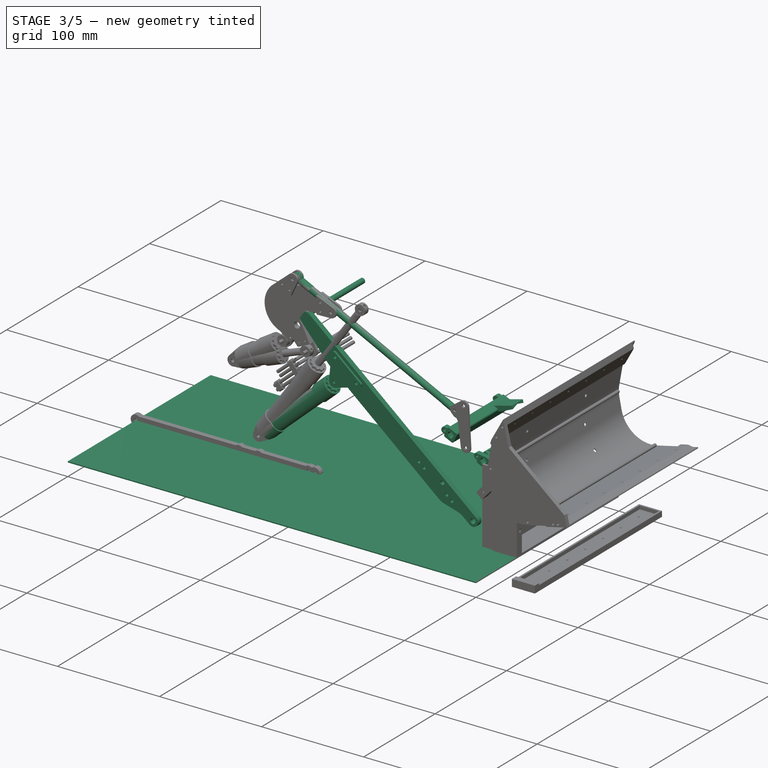
[diagram: stage 3 of 5 — iso view after this stage's code; geometry added in this stage tinted green]
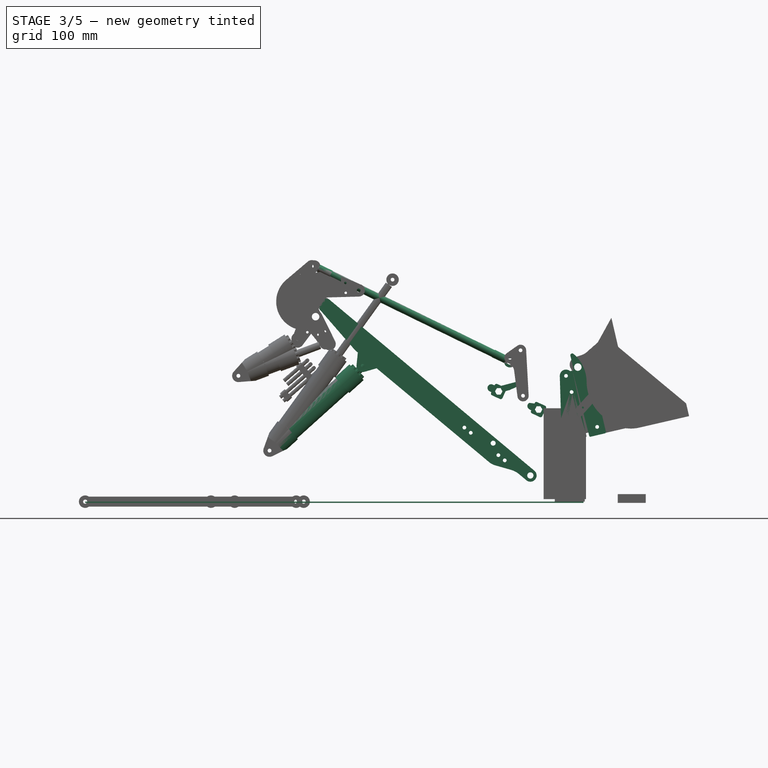
[diagram: stage 3 of 5 — front view after this stage's code; geometry added in this stage tinted green]
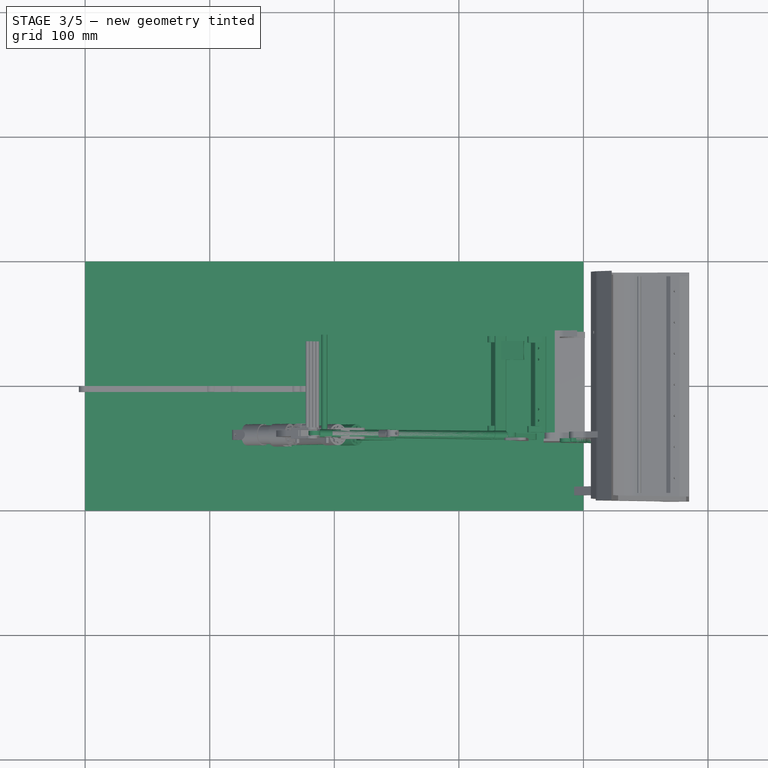
[diagram: stage 3 of 5 — top view after this stage's code; geometry added in this stage tinted green]
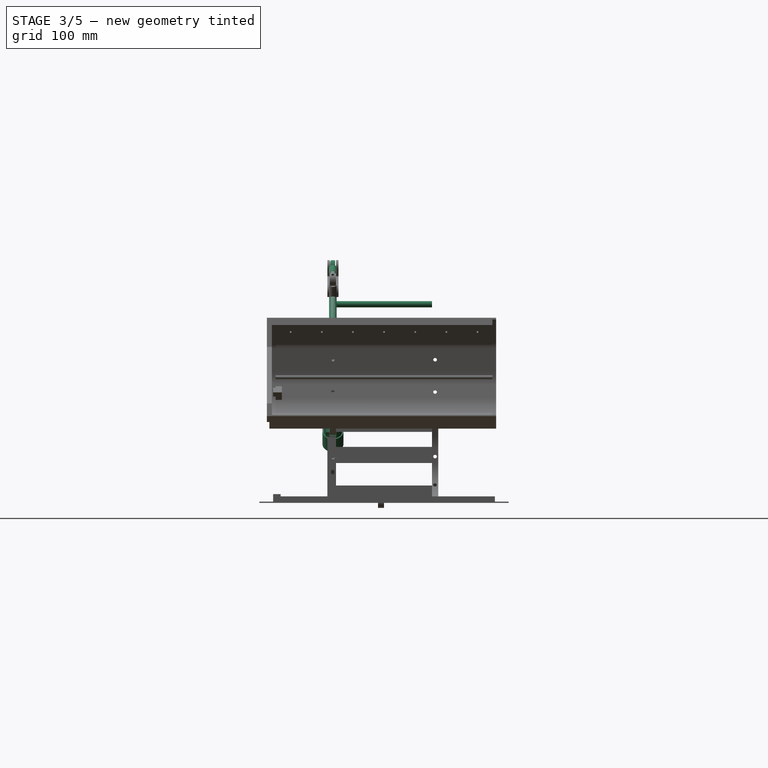
[diagram: stage 3 of 5 — right view after this stage's code; geometry added in this stage tinted green]
FEATURE [PartDesign::Body] Body008  label="right-arm-second-rod-body"
  Group = -> [Sketch007,Pad005]
  Origin = -> Origin006
  Placement = pos=(0,-39.5,0) rot=(0,0,1;0rad)
  Tip = -> Pad005
FEATURE [Sketcher::SketchObject] Sketch009
  FullyConstrained = false
  MapMode = 5
  Placement = pos=(0,0,0) rot=(1,0,0;1.5708rad)
  Support = -> [XZ_Plane008]
  sketch-geometry (20):
    g0: LineSegment StartX=382 StartY=67 StartZ=0 EndX=381.002 EndY=100.853 EndZ=0
    g1: LineSegment StartX=401.933 StartY=54.9802 StartZ=0 EndX=402.488 EndY=52.6142 EndZ=0
    g2: LineSegment StartX=383.812 StartY=59.4533 StartZ=0 EndX=382.231 EndY=65.4106 EndZ=0
    g3: ArcOfCircle CenterX=386 CenterY=101 CenterZ=0 NormalX=0 NormalY=0 NormalZ=1 AngleXU=0 Radius=5 StartAngle=0.856815 EndAngle=3.17106
    g4: ArcOfCircle CenterX=389 CenterY=67.2063 CenterZ=0 NormalX=0 NormalY=0 NormalZ=1 AngleXU=0 Radius=7.00309 StartAngle=3.17106 EndAngle=3.40092
    g5: LineSegment StartX=393.5 StartY=52 StartZ=0 EndX=402.001 EndY=52 EndZ=0
    g6: ArcOfCircle CenterX=393.5 CenterY=62.0236 CenterZ=0 NormalX=0 NormalY=0 NormalZ=1 AngleXU=0 Radius=10.0236 StartAngle=3.40092 EndAngle=4.71239
    g7: ArcOfCircle CenterX=402.001 CenterY=52.5 CenterZ=0 NormalX=0 NormalY=0 NormalZ=1 AngleXU=0 Radius=0.5 StartAngle=4.71239 EndAngle=6.51364
    g8: LineSegment StartX=389.506 StartY=117.139 StartZ=0 EndX=392.041 EndY=106.334 EndZ=0
    g9: ArcOfCircle CenterX=372.981 CenterY=96.0349 CenterZ=0 NormalX=0 NormalY=0 NormalZ=1 AngleXU=0 Radius=29.5441 StartAngle=0.0087063 EndAngle=0.872317
    g10: ArcOfCircle CenterX=439.315 CenterY=96.6125 CenterZ=0 NormalX=0 NormalY=0 NormalZ=1 AngleXU=0 Radius=36.7925 StartAngle=3.1503 EndAngle=3.9904
    g11: LineSegment StartX=415 StartY=69 StartZ=0 EndX=418.039 EndY=56.0469 EndZ=0
    g12: LineSegment StartX=417.294 StartY=54.8449 StartZ=0 EndX=405.783 EndY=52.1441 EndZ=0
    g13: ArcOfCircle CenterX=390.996 CenterY=117.489 CenterZ=0 NormalX=0 NormalY=0 NormalZ=1 AngleXU=0 Radius=1.53007 StartAngle=0.872317 EndAngle=3.37205
    g14: LineSegment StartX=391.239 StartY=105.12 StartZ=0 EndX=389.274 EndY=104.779 EndZ=0
    g15: LineSegment StartX=403.978 StartY=55.4598 StartZ=0 EndX=401.933 EndY=54.9802 EndZ=0
    g16: ArcOfCircle CenterX=405.554 CenterY=53.1177 CenterZ=0 NormalX=0 NormalY=0 NormalZ=1 AngleXU=0 Radius=1 StartAngle=3.37205 EndAngle=4.94284
    g17: ArcOfCircle CenterX=417.066 CenterY=55.8185 CenterZ=0 NormalX=0 NormalY=0 NormalZ=1 AngleXU=0 Radius=1 StartAngle=4.94284 EndAngle=6.51364
    g18: LineSegment StartX=403.978 StartY=55.4598 StartZ=0 EndX=404.581 EndY=52.8893 EndZ=0
    g19: ArcOfCircle CenterX=391.068 CenterY=106.105 CenterZ=0 NormalX=0 NormalY=0 NormalZ=1 AngleXU=0 Radius=1 StartAngle=4.88444 EndAngle=6.51364
  constraints (37):
    c: DistanceX(g3) = 386
    c: DistanceY(g3) = 101
    c: Radius(g3) = 5
    c: Tangent(g3,g0) = 1.5708
    c: Tangent(g2,g4) = 1.5708
    c: Tangent(g0,g4) = 1.5708
    c: Tangent(g5,g6) = -1.5708
    c: Tangent(g2,g6) = 1.5708
    c: Horizontal(g5)
    c: DistanceX(g5) = 393.5
    c: DistanceY(g5) = 52
    c: Tangent(g5,g7) = -1.5708
    c: Tangent(g1,g7) = 1.5708
    c: Radius(g7) = 0.5
    c: DistanceX(g0) = 382
    c: DistanceY(g0) = 67
    c: DistanceX(g7) = 402.001
    c: Parallel(g1,g8)
    c: Parallel(g8,g11)
    c: Coincident(g11,g10)
    c: Tangent(g13,g8) = -1.5708
    c: Tangent(g13,g9) = -1.5708
    c: Tangent(g10,g9) = 1.5708
    c: Perpendicular(g12,g11)
    c: Coincident(g18,g16) = -1.5708
    c: Tangent(g12,g16) = 1.5708
    c: Tangent(g12,g17) = 1.5708
    c: Tangent(g11,g17) = 1.5708
    c: Radius(g16) = 1
    c: Radius(g17) = 1
    c: Distance(g1,g8) = 2.1
    c: Perpendicular(g18,g15) = 4.71239
    c: Coincident(g1,g15)
    c: Coincident(g3,g14)
    c: Tangent(g8,g19) = 1.5708
    c: Tangent(g14,g19) = 1.5708
    c: Radius(g19) = 1
FEATURE [PartDesign::Pad] Pad007
  Direction = (0,-1,-2e-16)
  Length = 3
  Length2 = 10
  Placement = pos=(0,0,0) rot=(1,0,0;1.5708rad)
  Profile = -> Sketch009
  ReferenceAxis = -> Sketch009 [N_Axis]
  Refine = true
  Type = 0
FEATURE [PartDesign::Body] Body001003  label="right-arm-lever-body"
  Group = -> [Sketch010,Pad008]
  Origin = -> Origin009
  Placement = pos=(0,-38.5,0) rot=(0,0,1;0rad)
  Tip = -> Pad008
FEATURE [Sketcher::SketchObject] Sketch011  label="Sketch-arm-lever"
  FullyConstrained = false
  MapMode = 5
  Placement = pos=(0,0,0) rot=(1,0,0;1.5708rad)
  Support = -> [XZ_Plane010]
  sketch-geometry (10):
    g0: LineSegment StartX=190.315 StartY=149.625 StartZ=0 EndX=196.838 EndY=134.404 EndZ=0
    g1: LineSegment StartX=185.648 StartY=129.608 StartZ=0 EndX=180.928 EndY=135.442 EndZ=0
    g2: LineSegment StartX=163.102 StartY=179.326 StartZ=0 EndX=173.121 EndY=186.925 EndZ=0
    g3: LineSegment StartX=185.061 StartY=180.469 StartZ=0 EndX=176.026 EndY=163.759 EndZ=0
    g4: ArcOfCircle CenterX=177 CenterY=161 CenterZ=0 NormalX=0 NormalY=0 NormalZ=1 AngleXU=0 Radius=23 StartAngle=2.21966 EndAngle=4.66191
    g5: ArcOfCircle CenterX=183 CenterY=161 CenterZ=0 NormalX=0 NormalY=0 NormalZ=1 AngleXU=0 Radius=7.5 StartAngle=2.76494 EndAngle=4.80829
    g6: ArcOfCircle CenterX=184.34 CenterY=147.064 CenterZ=0 NormalX=0 NormalY=0 NormalZ=1 AngleXU=0 Radius=6.5 StartAngle=0.404891 EndAngle=1.66669
    g7: ArcOfCircle CenterX=175.486 CenterY=131.038 CenterZ=0 NormalX=0 NormalY=0 NormalZ=1 AngleXU=0 Radius=7 StartAngle=0.68033 EndAngle=1.52032
    g8: LineSegment StartX=185.648 StartY=129.608 StartZ=0 EndX=196.838 EndY=134.404 EndZ=0
    g9: LineSegment StartX=173.121 StartY=186.925 StartZ=0 EndX=185.061 EndY=180.469 EndZ=0
  constraints (18):
    c: Coincident(g3,g5)
    c: Tangent(g4,g2) = 1.5708
    c: Tangent(g6,g0) = 1.5708
    c: Tangent(g5,g6) = 1.5708
    c: Radius(g5) = 7.5
    c: Radius(g6) = 6.5
    c: Radius(g4) = 23
    c: DistanceX(g5) = 183
    c: DistanceY(g5) = 161
    c: DistanceX(g4) = 177
    c: DistanceY(g4) = 161
    c: Tangent(g4,g7) = 1.5708
    c: Tangent(g1,g7) = -1.5708
    c: Radius(g7) = 7
    c: Coincident(g2,g9)
    c: Perpendicular(g3,g9) = 1.5708
    c: Perpendicular(g0,g8) = 1.5708
    c: Coincident(g1,g8)
FEATURE [PartDesign::Pad] Pad009
  Direction = (0,-1,-2e-16)
  Length = 5
  Length2 = 10
  Placement = pos=(0,0,0) rot=(1,0,0;1.5708rad)
  Profile = -> Sketch011
  ReferenceAxis = -> Sketch011 [N_Axis]
  Refine = true
  Type = 0
FEATURE [PartDesign::Body] Body001006  label="right-arm-lever-left-rod-attach-body"
  Group = -> [Sketch013,Pad011]
  Origin = -> Origin012
  Placement = pos=(0,-36.5,0) rot=(0,0,1;0rad)
  Tip = -> Pad011
FEATURE [Part::Cylinder] Cylinder
  Angle = 360
  AttacherType = Attacher::AttachEngine3D
  FirstAngle = 0
  Height = 5
  Placement = pos=(185,-43.5,148.5) rot=(-1,0,0;1.5708rad)
  Radius = 3
  SecondAngle = 0
FEATURE [Part::Cylinder] Cylinder1492382  label="Cylinder"
  Angle = 360
  AttacherType = Attacher::AttachEngine3D
  FirstAngle = 0
  Height = 0.2
  Placement = pos=(192,-43.7,158.5) rot=(-1,0,0;1.5708rad)
  Radius = 2.6
  SecondAngle = 0
FEATURE [Part::Cylinder] Cylinder1492383  label="Cylinder"
  Angle = 360
  AttacherType = Attacher::AttachEngine3D
  FirstAngle = 0
  Height = 0.2
  Placement = pos=(192,-43.7,158.5) rot=(-1,0,0;1.5708rad)
  Radius = 4.5
  SecondAngle = 0
FEATURE [Part::Cylinder] Cylinder1492384  label="Cylinder"
  Angle = 360
  AttacherType = Attacher::AttachEngine3D
  FirstAngle = 0
  Height = 0.2
  Placement = pos=(192,-43.7,158.5) rot=(-1,0,0;1.5708rad)
  Radius = 2.1
  SecondAngle = 0
FEATURE [Part::Cut] Cut176013009033007019019008010045003002004008006010017027003005053020098001031003007007002011005005004026009004013004003002011004010  label="SPACER-M4x0.2"
  Base = -> Cylinder1492383
  Refine = true
  Tool = -> Cylinder1492384
FEATURE [Part::Cylinder] Cylinder1492385  label="Cylinder"
  Angle = 360
  AttacherType = Attacher::AttachEngine3D
  FirstAngle = 0
  Height = 0.2
  Placement = pos=(192,-43.7,158.5) rot=(-1,0,0;1.5708rad)
  Radius = 4.5
  SecondAngle = 0
FEATURE [Part::Cylinder] Cylinder1492386  label="Cylinder"
  Angle = 360
  AttacherType = Attacher::AttachEngine3D
  FirstAngle = 0
  Height = 0.2
  Placement = pos=(192,-43.7,158.5) rot=(-1,0,0;1.5708rad)
  Radius = 1.6
  SecondAngle = 0
FEATURE [Part::Cut] Cut176013009033007019019008010045003002004008006010017027003005053020098001031003007007002011005005004026009004013004003002011004011  label="SPACER-M3x0.2"
  Base = -> Cylinder1492385
  Refine = true
  Tool = -> Cylinder1492386
FEATURE [Part::Feature] Cut176013009033007019019008010045003002004008006010017027003005053020098001031003007007002011005005004026009004013004003002011004011001  label="SPACER-M3x0.2"
  Placement = pos=(-7,0,-10) rot=(0,0,1;0rad)
  shape: bbox 9 x 0.2 x 9 mm, 4 faces (baked)
FEATURE [Part::Feature] Cut176013009033007019019008010045003002004008006010017027003005053020098001031003007007002011005005004026009004013004003002011004009001  label="SPACER-M5x0.2"
  shape: bbox 9 x 0.2 x 9 mm, 4 faces (baked)
FEATURE [Part::Feature] Cut176013009033007019019008010045003002004008006010017027003005053020098001031003007007002011005005004026009004013004003002011004011002  label="SPACER-M3x0.2"
  Placement = pos=(159.5,0,-73.5) rot=(0,0,1;0rad)
  shape: bbox 9 x 0.2 x 9 mm, 4 faces (baked)
FEATURE [Part::Feature] Cut176013009033007019019008010045003002004008006010017027003005053020098001031003007007002011005005004026009004013004003002011004011005  label="SPACER-M3x0.2"
  Placement = pos=(159.5,5.2,-73.5) rot=(0,0,1;0rad)
  shape: bbox 9 x 0.2 x 9 mm, 4 faces (baked)
FEATURE [Part::Cylinder] Cylinder1492387  label="Cylinder"
  Angle = 360
  AttacherType = Attacher::AttachEngine3D
  FirstAngle = 0
  Height = 1.2
  Placement = pos=(192,-43.7,158.5) rot=(-1,0,0;1.5708rad)
  Radius = 4.5
  SecondAngle = 0
FEATURE [Part::Cylinder] Cylinder1492388  label="Cylinder"
  Angle = 360
  AttacherType = Attacher::AttachEngine3D
  FirstAngle = 0
  Height = 1.2
  Placement = pos=(192,-43.7,158.5) rot=(-1,0,0;1.5708rad)
  Radius = 2.1
  SecondAngle = 0
FEATURE [Part::Cut] Cut176013009033007019019008010045003002004008006010017027003005053020098001031003007007002011005005004026009004013004003002011004011006  label="SPACER-M4x1.2"
  Base = -> Cylinder1492387
  Refine = true
  Tool = -> Cylinder1492388
FEATURE [Part::Feature] Cut176013009033007019019008010045003002004008006010017027003005053020098001031003007007002011005005004026009004013004003002011004011006001  label="SPACER-M4x1.2"
  Placement = pos=(157.5,0,-40) rot=(0,0,1;0rad)
  shape: bbox 9 x 1.2 x 9 mm, 4 faces (baked)
FEATURE [Part::Feature] Cut176013009033007019019008010045003002004008006010017027003005053020098001031003007007002011005005004026009004013004003002011004011006002  label="SPACER-M4x1.2"
  Placement = pos=(194,0,-57.5) rot=(0,0,1;0rad)
  shape: bbox 9 x 1.2 x 9 mm, 4 faces (baked)
FEATURE [Part::Feature] Cut176013009033007019019008010045003002004008006010017027003005053020098001031003007007002011005005004026009004013004003002011004011006003  label="SPACER-M4x1.2"
  Placement = pos=(194,4.2,-57.5) rot=(0,0,1;0rad)
  shape: bbox 9 x 1.2 x 9 mm, 4 faces (baked)
FEATURE [Part::Feature] Cut176013009033007019019008010045003002004008006010017027003005053020098001031003007007002011005005004026009004013004003002011004011006004  label="SPACER-M4x1.2"
  Placement = pos=(157.5,4.2,-40) rot=(0,0,1;0rad)
  shape: bbox 9 x 1.2 x 9 mm, 4 faces (baked)
FEATURE [Part::Feature] Cut176013009033007019019008010045003002004008006010017027003005053020098001031003007007002011005005004026009004013004003002011004010001  label="SPACER-M4x0.2"
  Placement = pos=(195,0,-91) rot=(0,0,1;0rad)
  shape: bbox 9 x 0.2 x 9 mm, 4 faces (baked)
FEATURE [Part::Feature] Cut176013009033007019019008010045003002004008006010017027003005053020098001031003007007002011005005004026009004013004003002011004011006005  label="SPACER-M4x0.2"
  Placement = pos=(195,5.2,-91) rot=(0,0,1;0rad)
  shape: bbox 9 x 0.2 x 9 mm, 4 faces (baked)
FEATURE [Part::Feature] Cut176013009033007019019008010045003002004008006010017027003005053020098001031003007007002011005005004026009004013004003002011004011006006  label="right-arm-lever-right-rod-attach-ALU2mm"
  Placement = pos=(0,-7,0) rot=(0,0,1;0rad)
  shape: bbox 22.01 x 2 x 19.69 mm, 9 faces (baked)
FEATURE [Part::Feature] Cut176013009033007019019008010045003002004008006010017027003005053020098001031003007007002011005005004026009004013004003002011004011006007  label="right-arm-lever-right-piston-attach-ALU2mm"
  Placement = pos=(0,-7,0) rot=(0,0,1;0rad)
  shape: bbox 18.93 x 2 x 19.84 mm, 9 faces (baked)
FEATURE [Part::Cylinder] Cylinder1492389  label="Cylinder"
  Angle = 360
  AttacherType = Attacher::AttachEngine3D
  FirstAngle = 0
  Height = 2
  Placement = pos=(180.5,-45.5,179) rot=(-1,0,0;1.5708rad)
  Radius = 1
  SecondAngle = 0
FEATURE [Part::Cylinder] Cylinder1492390  label="Cylinder"
  Angle = 360
  AttacherType = Attacher::AttachEngine3D
  FirstAngle = 0
  Height = 2
  Placement = pos=(173.5,-45.5,182.75) rot=(-1,0,0;1.5708rad)
  Radius = 1
  SecondAngle = 0
FEATURE [Part::Cylinder] Cylinder1492391  label="Cylinder"
  Angle = 360
  AttacherType = Attacher::AttachEngine3D
  FirstAngle = 0
  Height = 2
  Placement = pos=(180.5,-45.5,179) rot=(-1,0,0;1.5708rad)
  Radius = 1
  SecondAngle = 0
FEATURE [Part::Cylinder] Cylinder1492392  label="Cylinder"
  Angle = 360
  AttacherType = Attacher::AttachEngine3D
  FirstAngle = 0
  Height = 2
  Placement = pos=(173.5,-45.5,182.75) rot=(-1,0,0;1.5708rad)
  Radius = 1
  SecondAngle = 0
FEATURE [Part::Cylinder] Cylinder1492393  label="Cylinder"
  Angle = 360
  AttacherType = Attacher::AttachEngine3D
  FirstAngle = 0
  Height = 5
  Placement = pos=(180.5,-45.5,179) rot=(-1,0,0;1.5708rad)
  Radius = 1
  SecondAngle = 0
FEATURE [Part::Cylinder] Cylinder1492394  label="Cylinder"
  Angle = 360
  AttacherType = Attacher::AttachEngine3D
  FirstAngle = 0
  Height = 5
  Placement = pos=(173.5,-45.5,182.75) rot=(-1,0,0;1.5708rad)
  Radius = 1
  SecondAngle = 0
FEATURE [Part::Cylinder] Cylinder1492395  label="Cylinder"
  Angle = 360
  AttacherType = Attacher::AttachEngine3D
  FirstAngle = 0
  Height = 9
  Placement = pos=(184,-45.5,189) rot=(-1,0,0;1.5708rad)
  Radius = 1.5
  SecondAngle = 0
FEATURE [Part::MultiFuse] Fusion004002009002027014004009002002008002004029002015013017006002012002031033002013006007008014029072011018024002019049062029014012006016002033001057009078004002010031016012003004006002003003002005010012002004  label="Fusion"
  Refine = true
  Shapes = -> [Cylinder1492389,Cylinder1492390]
FEATURE [Part::MultiFuse] Fusion004002009002027014004009002002008002004029002015013017006002012002031033002013006007008014029072011018024002019049062029014012006016002033001057009078004002010031016012003004006002003003002005010012002005  label="Fusion"
  Placement = pos=(0,7,0) rot=(0,0,1;0rad)
  Refine = true
  Shapes = -> [Cylinder1492391,Cylinder1492392]
FEATURE [Part::MultiFuse] Fusion004002009002027014004009002002008002004029002015013017006002012002031033002013006007008014029072011018024002019049062029014012006016002033001057009078004002010031016012003004006002003003002005010012002006  label="Fusion"
  Placement = pos=(0,2,0) rot=(0,0,1;0rad)
  Refine = true
  Shapes = -> [Cylinder1492393,Cylinder1492394]
FEATURE [Part::MultiFuse] Fusion004002009002027014004009002002008002004029002015013017006002012002031033002013006007008014029072011018024002019049062029014012006016002033001057009078004002010031016012003004006002003003002005010012002007  label="Fusion"
  Refine = true
  Shapes = -> [Fusion004002009002027014004009002002008002004029002015013017006002012002031033002013006007008014029072011018024002019049062029014012006016002033001057009078004002010031016012003004006002003003002005010012002004,+3 more]
FEATURE [Part::Cylinder] Cylinder1492396  label="Cylinder"
  Angle = 360
  AttacherType = Attacher::AttachEngine3D
  FirstAngle = 0
  Height = 2
  Placement = pos=(186.5,-45.5,134) rot=(-1,0,0;1.5708rad)
  Radius = 1
  SecondAngle = 0
FEATURE [Part::Cylinder] Cylinder1492397  label="Cylinder"
  Angle = 360
  AttacherType = Attacher::AttachEngine3D
  FirstAngle = 0
  Height = 2
  Placement = pos=(192.5,-45.5,136.5) rot=(-1,0,0;1.5708rad)
  Radius = 1
  SecondAngle = 0
FEATURE [Part::Cylinder] Cylinder1492398  label="Cylinder"
  Angle = 360
  AttacherType = Attacher::AttachEngine3D
  FirstAngle = 0
  Height = 5
  Placement = pos=(186.5,-45.5,134) rot=(-1,0,0;1.5708rad)
  Radius = 1
  SecondAngle = 0
FEATURE [Part::Cylinder] Cylinder1492399  label="Cylinder"
  Angle = 360
  AttacherType = Attacher::AttachEngine3D
  FirstAngle = 0
  Height = 5
  Placement = pos=(192.5,-45.5,136.5) rot=(-1,0,0;1.5708rad)
  Radius = 1
  SecondAngle = 0
FEATURE [Part::Cylinder] Cylinder1492400  label="Cylinder"
  Angle = 360
  AttacherType = Attacher::AttachEngine3D
  FirstAngle = 0
  Height = 2
  Placement = pos=(186.5,-45.5,134) rot=(-1,0,0;1.5708rad)
  Radius = 1
  SecondAngle = 0
FEATURE [Part::Cylinder] Cylinder1492401  label="Cylinder"
  Angle = 360
  AttacherType = Attacher::AttachEngine3D
  FirstAngle = 0
  Height = 2
  Placement = pos=(192.5,-45.5,136.5) rot=(-1,0,0;1.5708rad)
  Radius = 1
  SecondAngle = 0
FEATURE [Part::Cylinder] Cylinder1492402  label="Cylinder"
  Angle = 360
  AttacherType = Attacher::AttachEngine3D
  FirstAngle = 0
  Height = 9
  Placement = pos=(195,-45.5,126) rot=(-1,0,0;1.5708rad)
  Radius = 1.5
  SecondAngle = 0
FEATURE [Part::MultiFuse] Fusion004002009002027014004009002002008002004029002015013017006002012002031033002013006007008014029072011018024002019049062029014012006016002033001057009078004002010031016012003004006002003003002005010012002008  label="Fusion"
  Refine = true
  Shapes = -> [Cylinder1492396,Cylinder1492397]
FEATURE [Part::MultiFuse] Fusion004002009002027014004009002002008002004029002015013017006002012002031033002013006007008014029072011018024002019049062029014012006016002033001057009078004002010031016012003004006002003003002005010012002009  label="Fusion"
  Placement = pos=(0,2,0) rot=(0,0,1;0rad)
  Refine = true
  Shapes = -> [Cylinder1492398,Cylinder1492399]
FEATURE [Part::MultiFuse] Fusion004002009002027014004009002002008002004029002015013017006002012002031033002013006007008014029072011018024002019049062029014012006016002033001057009078004002010031016012003004006002003003002005010012002010  label="Fusion"
  Placement = pos=(0,7,0) rot=(0,0,1;0rad)
  Refine = true
  Shapes = -> [Cylinder1492400,Cylinder1492401]
FEATURE [Part::MultiFuse] Fusion004002009002027014004009002002008002004029002015013017006002012002031033002013006007008014029072011018024002019049062029014012006016002033001057009078004002010031016012003004006002003003002005010012002011  label="Fusion"
  Refine = true
  Shapes = -> [Fusion004002009002027014004009002002008002004029002015013017006002012002031033002013006007008014029072011018024002019049062029014012006016002033001057009078004002010031016012003004006002003003002005010012002008,+3 more]
FEATURE [Part::MultiFuse] Fusion004002009002027014004009002002008002004029002015013017006002012002031033002013006007008014029072011018024002019049062029014012006016002033001057009078004002010031016012003004006002003003002005010012002012  label="Fusion"
  Refine = true
  Shapes = -> [Cylinder,Fusion004002009002027014004009002002008002004029002015013017006002012002031033002013006007008014029072011018024002019049062029014012006016002033001057009078004002010031016012003004006002003003002005010012002007,+1 more]
FEATURE [Part::Cut] Cut176013009033007019019008010045003002004008006010017027003005053020098001031003007007002011005005004026009004013004003002011004011006008  label="right-arm-lever-body-ALU5mm"
  Base = -> Body001004
  Refine = true
  Tool = -> Fusion004002009002027014004009002002008002004029002015013017006002012002031033002013006007008014029072011018024002019049062029014012006016002033001057009078004002010031016012003004006002003003002005010012002012
FEATURE [Part::Feature] Fillet001006007031018  label="right-arm-left-piston-attach-ALU2mm"
  Placement = pos=(-192,0,-159) rot=(0,0,1;0rad)
  shape: bbox 33.39 x 2 x 30.78 mm, 11 faces (baked)
FEATURE [Part::Feature] Fillet001006007031016001  label="right-arm-right-piston-attach-ALU2mm"
  Placement = pos=(-192,0,-159) rot=(0,0,1;0rad)
  shape: bbox 33.39 x 2 x 30.78 mm, 11 faces (baked)
FEATURE [Part::Feature] Cut176013009033007019019008010045003002004008006010017027003005053020098001031003007007002011005005004026009004013004003002005001  label="right-arm-ALU5mm"
  Placement = pos=(-192,0,-159) rot=(0,0,1;0rad)
  shape: bbox 205.5 x 5 x 101.5 mm, 23 faces (baked)
FEATURE [Part::Feature] Line016001  label="arm-lower-joint"
  Placement = pos=(195,-70,-91.5) rot=(0,0,1;0rad)
  shape: bbox 2e-07 x 140 x 2e-07 mm, 0 faces, 0 solids (baked)
FEATURE [Part::Feature] Line028001  label="arm-middle-joint"
  Placement = pos=(38.5,-70,-38.5) rot=(0,0,1;0rad)
  shape: bbox 2e-07 x 140 x 2e-07 mm, 0 faces, 0 solids (baked)
FEATURE [Part::Compound] Compound  label="right-arm-body-full-down"
  Links = -> [Fillet001006007031018,Fillet001006007031016001,Cut176013009033007019019008010045003002004008006010017027003005053020098001031003007007002011005005004026009004013004003002005001,Line016001,Line028001]
  Placement = pos=(192,0,159) rot=(0,1,0;0.256563rad)
FEATURE [Part::Feature] Cut176013009033007019019008010045003002004008006010017027003005053020098001031003007007002011005005004026009004013005002003006005001  label="diff-back-side"
  shape: bbox 8 x 32 x 51 mm, 55 faces (baked)
FEATURE [Part::Feature] Cut176013009033007019019008010045003002004008006010017027003005053020098001031003007007002011005005004026009004013005002003006006  label="front-axle-left"
  shape: bbox 38 x 40.5 x 39 mm, 75 faces (baked)
FEATURE [Part::Feature] Cut176013009033007019019008010045003002004008006021005004004004004002012033009016002012007022024058001  label="diff-front-side-left-ALU5mm"
  shape: bbox 75 x 5 x 51 mm, 32 faces (baked)
FEATURE [Part::Feature] Part__Mirroring007002003002018002002002005004004002003004003003002001  label="front-axle-right"
  shape: bbox 38 x 40.5 x 39 mm, 75 faces (baked)
FEATURE [Part::Feature] Part__Mirroring007002003002018002002002005004004002003004003003004003002001  label="diff-front-side-right-ALU5mm"
  shape: bbox 75 x 5 x 51 mm, 32 faces (baked)
FEATURE [App::DocumentObjectGroup] Group005  label="Front Axle"
  Group = -> [Cut176013009033007019019008010045003002004008006021005004004004004002012033009016002012007022024058001,Part__Mirroring007002003002018002002002005004004002003004003003004003002001,Cut176013009033007019019008010045003002004008006010017027003005053020098001031003007007002011005005004026009004013005002003006005001,Part__Mirroring007002003002018002002002005004004002003004003003002001,+1 more]
FEATURE [Part::Box] Box093  label="FLOOR"
  AttacherType = Attacher::AttachEngine3D
  Height = 1
  Length = 400
  Placement = pos=(0,-100,-1) rot=(0,0,1;0rad)
  Width = 200
FEATURE [Part::Feature] Cut176013009033007019019008010045003002004008006010017027003005053020098001031003007007002011005005004026009004013004003002011004011006009  label="head-5mm"
  shape: bbox 10 x 5 x 10 mm, 6 faces (baked)
FEATURE [Part::Cylinder] Cylinder1492403  label="rod"
  Angle = 360
  AttacherType = Attacher::AttachEngine3D
  FirstAngle = 0
  Height = 69
  Placement = pos=(94,0,0) rot=(0,-1,0;1.5708rad)
  Radius = 3
  SecondAngle = 0
FEATURE [Part::MultiFuse] Fusion004002009002027014004009002002008002004029002015013017006002012002031033002013006007008014029072011018024002019049062029014012006016002033001057009078004002010031016012003004006002003003002005010012002013  label="MAGOM-CYLINDER-PISTON"
  Placement = pos=(17,0,0) rot=(0,0,1;0rad)
  Refine = true
  Shapes = -> [Cylinder1492403,Cut176013009033007019019008010045003002004008006010017027003005053020098001031003007007002011005005004026009004013004003002011004011006009]
FEATURE [Part::Feature] Part__Feature004010  label="MAGOM-CYLINDER-ATTACH"
  Placement = pos=(8,0,0) rot=(0.57735,-0.57735,0.57735;4.18879rad)
  shape: bbox 28 x 17 x 17.72 mm, 26 faces (baked)
FEATURE [Part::Feature] Part__Feature004011  label="MAGOM-CYLINDER-1"
  Placement = pos=(4.5,-7e-15,9e-15) rot=(0,0.899608,-0.436698;3.14159rad)
  shape: bbox 50 x 15 x 15 mm, 6 faces (baked)
FEATURE [Part::Feature] Part__Feature004012  label="MAGOM-CYLINDER-2"
  Placement = pos=(24.5,0,0) rot=(0,0.898384,-0.43921;3.14159rad)
  shape: bbox 50 x 15 x 15 mm, 6 faces (baked)
FEATURE [Part::MultiFuse] Fusion004002009002027014004009002002008002004029002015013017006002012002031033002013006007008014029072011018024002019049062029014012006016002033001057009078004002010031016012003004006002003003002005010012002014  label="MAGOM-CYLINDER-JACKET"
  Placement = pos=(8,0,0) rot=(0,0,1;0rad)
  Refine = true
  Shapes = -> [Part__Feature004011,Part__Feature004012]
FEATURE [Part::Feature] _02015_204_Predeterminado004  label="MAGOM-CYLINDER-TOP"
  Placement = pos=(53.3,0,0) rot=(0,0,1;0rad)
  shape: bbox 17.55 x 17.17 x 17.4 mm, 73 faces, 3 solids (baked)
FEATURE [Part::Compound] Compound002005023  label="LIFTING-PISTON-RIGHT(101-169.4mm)"
  Links = -> [Part__Feature004010,_02015_204_Predeterminado004,Fusion004002009002027014004009002002008002004029002015013017006002012002031033002013006007008014029072011018024002019049062029014012006016002033001057009078004002010031016012003004006002003003002005010012002014,+1 more]
  Placement = pos=(148,-41,41) rot=(0,1,0;-0.733038rad)
FEATURE [Image::ImagePlane] ImagePlane001
  Placement = pos=(209,0,102) rot=(-1,0,0;4.71239rad)
  XSize = 500
  YSize = 227
FEATURE [Part::Cylinder] Cylinder1492358  label="Cylinder"
  Angle = 360
  AttacherType = Attacher::AttachEngine3D
  FirstAngle = 0
  Height = 9
  Placement = pos=(386,-46.5,101) rot=(-1,0,0;1.5708rad)
  Radius = 1.5
  SecondAngle = 0
FEATURE [Part::Cylinder] Cylinder1492362  label="Cylinder"
  Angle = 360
  AttacherType = Attacher::AttachEngine3D
  FirstAngle = 0
  Height = 9
  Placement = pos=(387,-46.5,67.5) rot=(-1,0,0;1.5708rad)
  Radius = 2
  SecondAngle = 0
FEATURE [Part::Cylinder] Cylinder1492367  label="Cylinder"
  Angle = 360
  AttacherType = Attacher::AttachEngine3D
  FirstAngle = 0
  Height = 9
  Placement = pos=(390.5,-46.5,88) rot=(-1,0,0;1.5708rad)
  Radius = 1.5
  SecondAngle = 0
FEATURE [Part::Cylinder] Cylinder1492368  label="Cylinder"
  Angle = 360
  AttacherType = Attacher::AttachEngine3D
  FirstAngle = 0
  Height = 9
  Placement = pos=(395.5,-46.5,66) rot=(-1,0,0;1.5708rad)
  Radius = 1.5
  SecondAngle = 0
FEATURE [Part::Cylinder] Cylinder1492369  label="Cylinder"
  Angle = 360
  AttacherType = Attacher::AttachEngine3D
  FirstAngle = 0
  Height = 9
  Placement = pos=(398,-46.5,56) rot=(-1,0,0;1.5708rad)
  Radius = 1.5
  SecondAngle = 0
FEATURE [Part::Cylinder] Cylinder1492404  label="Cylinder"
  Angle = 360
  AttacherType = Attacher::AttachEngine3D
  FirstAngle = 0
  Height = 9
  Placement = pos=(411,-46.5,60) rot=(-1,0,0;1.5708rad)
  Radius = 1.5
  SecondAngle = 0
FEATURE [Part::Cylinder] Cylinder1492405  label="Cylinder"
  Angle = 360
  AttacherType = Attacher::AttachEngine3D
  FirstAngle = 0
  Height = 9
  Placement = pos=(395.5,-46.5,108) rot=(-1,0,0;1.5708rad)
  Radius = 3
  SecondAngle = 0
FEATURE [Part::MultiFuse] Fusion004002009002027014004009002002008002004029002015013017006002012002031033002013006007008014029072011018024002019049062029014012006016002033001057009078004002010031016012003004006002003003002005010011  label="Fusion"
  Refine = true
  Shapes = -> [Cylinder1492358,Cylinder1492362,Cylinder1492367,Cylinder1492368,Cylinder1492369,Cylinder1492404,Cylinder1492405]
FEATURE [Sketcher::SketchObject] Sketch017
  AttachmentOffset = pos=(0,0,3) rot=(0,0,1;0rad)
  FullyConstrained = false
  MapMode = 5
  Placement = pos=(0,-3,-7e-16) rot=(1,0,0;1.5708rad)
  Support = -> [XZ_Plane008]
  sketch-geometry (4):
    g0: LineSegment StartX=391.894 StartY=105.86 StartZ=0 EndX=403.996 EndY=55.3817 EndZ=0
    g1: LineSegment StartX=401.954 StartY=54.8921 StartZ=0 EndX=389.852 EndY=105.37 EndZ=0
    g2: LineSegment StartX=401.954 StartY=54.8921 StartZ=0 EndX=403.996 EndY=55.3817 EndZ=0
    g3: LineSegment StartX=389.852 StartY=105.37 StartZ=0 EndX=391.894 EndY=105.86 EndZ=0
  constraints (6):
    c: Parallel(g0,g1)
    c: Perpendicular(g3,g0) = 4.71239
    c: Coincident(g1,g3)
    c: Coincident(g1,g2)
    c: Perpendicular(g2,g0) = 4.71239
    c: Distance(g0,g1) = 2.1
FEATURE [PartDesign::Pocket] Pocket
  BaseFeature = -> Pad007
  Direction = (0,1,2e-16)
  Length = 0.5
  Length2 = 5
  Placement = pos=(0,0,0) rot=(1,0,0;1.5708rad)
  Profile = -> Sketch017
  ReferenceAxis = -> Sketch017 [N_Axis]
  Refine = true
  Type = 0
FEATURE [PartDesign::Body] Body001002  label="right-arm-third-lever-ext-body"
  Group = -> [Sketch009,Pad007,Sketch017,Pocket]
  Origin = -> Origin008
  Placement = pos=(0,-43.5,0) rot=(0,0,1;0rad)
  Tip = -> Pocket
FEATURE [Part::Cut] Cut176013009033007019019008010045003002004008006010017027003005053020098001031003007007002011005005004026009004013004003002011004011006011  label="right-arm-third-lever-ext-ALU3mm"
  Base = -> Body001002
  Placement = pos=(0,-0.2,0) rot=(0,0,1;0rad)
  Refine = true
  Tool = -> Fusion004002009002027014004009002002008002004029002015013017006002012002031033002013006007008014029072011018024002019049062029014012006016002033001057009078004002010031016012003004006002003003002005010011
FEATURE [Part::Feature] Part__Mirroring007002003002018002002002005004004002003004003003004003002002  label="right-arm-third-lever-int-ALU3mm"
  Placement = pos=(0,-81.8,0) rot=(0,0,1;0rad)
  shape: bbox 37.07 x 3 x 67.02 mm, 36 faces (baked)
FEATURE [App::DocumentObjectGroup] Group016  label="Bearings&Spacers"
FEATURE [Part::Feature] Part__Mirroring007002003002018002002002005004002002  label="left-arm-pistons-ext-holder-cover-ALU2mm"
  shape: bbox 64.79 x 2 x 72.83 mm, 16 faces (baked)
FEATURE [Part::Feature] Part__Mirroring007002003002018002002002005004002003001  label="left-arm-pistons-ext-holder-contrast"
  shape: bbox 41.63 x 4.75 x 71.83 mm, 42 faces (baked)
FEATURE [Part::Feature] Part__Mirroring007002003002018002002002005004002004  label="left-arm-pistons-ext-holder-body"
  shape: bbox 123.3 x 20 x 72.83 mm, 86 faces (baked)
FEATURE [Part::Feature] Part__Mirroring007002003002018002002002005004002003002  label="left-arm-attach-spacer"
  shape: bbox 22.13 x 6.5 x 25.02 mm, 44 faces (baked)
FEATURE [Part::Cylinder] Cylinder1492406  label="arm-rod-STEEL5mm"
  Angle = 360
  AttacherType = Attacher::AttachEngine3D
  FirstAngle = 0
  Height = 77
  Placement = pos=(192,-38.5,158.5) rot=(-1,0,0;1.5708rad)
  Radius = 2.5
  SecondAngle = 0
FEATURE [Part::Feature] Cut176013009033007019019008010045003002004008006010017027003005053020098001031003007007002011005005004026009004013004003002005002  label="left-arm-ALU5mm"
  Placement = pos=(0,82,0) rot=(0,0,1;0rad)
  shape: bbox 205.5 x 5 x 101.5 mm, 23 faces (baked)
FEATURE [Part::Feature] Extrude008021001  label="HEX-BAR-M3-35mm"
  Placement = pos=(332,-38.5,88.5) rot=(0,0,1;0rad)
  shape: bbox 6 x 35 x 5.196 mm, 8 faces (baked)
FEATURE [Part::Feature] Cut176013009033007019019008010045003002004008006010017027003005053020098001031003007007002011005005004026009004013004003002011004011006011001  label="left-arm-third-lever-ext-ALU3mm"
  Placement = pos=(0,81.8,0) rot=(0,0,1;0rad)
  shape: bbox 37.07 x 3 x 67.02 mm, 36 faces (baked)
FEATURE [Part::Feature] Part__Mirroring007002003002018002002002005004004002003004003003004003002002001  label="left-arm-third-lever-int-ALU3mm"
  Placement = pos=(0,0.2,0) rot=(0,0,1;0rad)
  shape: bbox 37.07 x 3 x 67.02 mm, 36 faces (baked)
FEATURE [Part::Feature] Extrude008021003  label="HEX-BAR-M3-35mm"
  Placement = pos=(364,-38.5,74) rot=(0,0,1;0rad)
  shape: bbox 6 x 35 x 5.196 mm, 8 faces (baked)
FEATURE [Part::Feature] Extrude008021005  label="HEX-BAR-M3-35mm"
  Placement = pos=(332,3.5,88.5) rot=(0,0,1;0rad)
  shape: bbox 6 x 35 x 5.196 mm, 8 faces (baked)
FEATURE [Part::Feature] Extrude008021007  label="HEX-BAR-M3-35mm"
  Placement = pos=(364,3.5,74) rot=(0,0,1;0rad)
  shape: bbox 6 x 35 x 5.196 mm, 8 faces (baked)
FEATURE [App::DocumentObjectGroup] Group017  label="Bearings&Spacers"
  Group = -> [Extrude008021001,Extrude008021003,Extrude008021005,Extrude008021007]
FEATURE [Part::Feature] Extrude008022001  label="HEX-BAR-M3-77mm"
  Placement = pos=(332,-38.5,88.5) rot=(0,0,1;0rad)
  shape: bbox 6 x 77 x 5.196 mm, 8 faces (baked)
FEATURE [Part::Box] Box094  label="Cube"
  AttacherType = Attacher::AttachEngine3D
  Height = 10
  Length = 10
  Placement = pos=(325.25,-38.5,86) rot=(0,1,0;0.436332rad)
  Width = 77
FEATURE [Part::Box] Box096  label="Cube"
  AttacherType = Attacher::AttachEngine3D
  Height = 5
  Length = 20
  Width = 15
FEATURE [Part::Box] Box097  label="Cube"
  AttacherType = Attacher::AttachEngine3D
  Height = 5
  Length = 20
  Width = 15
FEATURE [Part::Chamfer] Chamfer011006015
  Base = -> Box097
  Edges = 2 edges: [Edge10 r1=2 r2=7,Edge12 r1=2 r2=7]
  Placement = pos=(1,0,-4) rot=(0,-1,0;0.15708rad)
FEATURE [Part::Cut] Cut176013009033007019019008010045003002004008006010017027003005053020098001031003007007002011005005004026009004013004003002011004011006011004  label="Cut"
  Base = -> Box096
  Placement = pos=(333.684,19.5,87.7413) rot=(0,-1,0;0.257436rad)
  Refine = true
  Tool = -> Chamfer011006015
FEATURE [Part::Feature] Cut176013009033007019019008010045003002004008006010017027003005053020098001031003007007002011005005004026009004013004003002011004011006011007  label="right-arm-third-lever-ext-ALU3mm"
  Placement = pos=(166.723,3.8,-257.774) rot=(0,-1,0;0.802851rad)
  shape: bbox 65 x 3 x 48.43 mm, 36 faces (baked)
FEATURE [Part::Feature] Cut176013009033007019019008010045003002004008006010017027003005053020098001031003007007002011005005004026009004013004003002008001  label="right-arm-second-lever-ext-ALU2mm"
  Placement = pos=(328.83,7.8,445.92) rot=(0,1,0;1.74533rad)
  shape: bbox 42.34 x 2 x 18.41 mm, 12 faces (baked)
FEATURE [Part::Part2DObjectPython] Line028002  label="bucket-tirant-third-joint"  # Draft 2D object (typed FeaturePython)
  Closed = true
  End = (385,70,81)
  FilletRadius = 0
  MapMode = 5
  Placement = pos=(385,-70,81) rot=(0,0,1;0rad)
  Points = (2) [(0,0,0),(0,140,0)]
  Start = (385,-70,81)
FEATURE [Part::Part2DObjectPython] Line028003  label="bucket-tirant-fourth-joint"  # Draft 2D object (typed FeaturePython)
  Closed = true
  End = (419,70,58)
  FilletRadius = 0
  MapMode = 5
  Placement = pos=(419,-70,58) rot=(0,0,1;0rad)
  Points = (2) [(0,0,0),(0,140,0)]
  Start = (419,-70,58)
FEATURE [App::MeasureDistance] Distance001  label="Distance: 40,48 mm"
  Distance = 40.4784
  P1 = (349.5,-70,118.5)
  P2 = (386,-70,101)
FEATURE [App::MeasureDistance] Distance  label="Distance: 41,05 mm"
  Distance = 41.0488
  P1 = (385,-70,81)
  P2 = (419,-70,58)
FEATURE [App::DocumentObjectGroup] Group018  label="Temp"
  Group = -> [Cut176013009033007019019008010045003002004008006010017027003005053020098001031003007007002011005005004026009004013004003002011004011006011007,Cut176013009033007019019008010045003002004008006010017027003005053020098001031003007007002011005005004026009004013004003002008001,Line028002,Line028003,Distance001,Distance]
FEATURE [Part::Cylinder] Cylinder1492411  label="Cylinder"
  Angle = 360
  AttacherType = Attacher::AttachEngine3D
  FirstAngle = 0
  Height = 5
  Placement = pos=(326,-38.5,91.25) rot=(-1,0,0;1.5708rad)
  Radius = 3
  SecondAngle = 0
FEATURE [Part::Cylinder] Cylinder1492412  label="Cylinder"
  Angle = 360
  AttacherType = Attacher::AttachEngine3D
  FirstAngle = 0
  Height = 5
  Placement = pos=(326,33.5,91.25) rot=(-1,0,0;1.5708rad)
  Radius = 3
  SecondAngle = 0
FEATURE [Part::MultiFuse] Fusion004002009002027014004009002002008002004029002015013017006002012002031033002013006007008014029072011018024002019049062029014012006016002033001057009078004002010031016012003004006002003003002005010012002021  label="Fusion"
  Refine = true
  Shapes = -> [Box094,Cylinder1492411,Cylinder1492412]
FEATURE [Part::Chamfer] Chamfer011006016
  Base = -> Fusion004002009002027014004009002002008002004029002015013017006002012002031033002013006007008014029072011018024002019049062029014012006016002033001057009078004002010031016012003004006002003003002005010012002021
  Edges = 4 edges: [Edge2 r1=0.5 r2=2,Edge4 r1=0.5 r2=2,Edge8 r1=0.5 r2=2,Edge10 r1=0.5 r2=2]
FEATURE [Part::Fillet] Fillet001006007031016004
  Base = -> Chamfer011006016
  Edges = 4 edges r=1.5: [Edge2,Edge10,Edge26,Edge39]
FEATURE [Part::Cylinder] Cylinder1492413  label="Cylinder"
  Angle = 360
  AttacherType = Attacher::AttachEngine3D
  FirstAngle = 0
  Height = 4.5
  Placement = pos=(326,-38.5,91.25) rot=(-1,0,0;1.5708rad)
  Radius = 1.25
  SecondAngle = 0
FEATURE [Part::Cylinder] Cylinder1492414  label="Cylinder"
  Angle = 360
  AttacherType = Attacher::AttachEngine3D
  FirstAngle = 0
  Height = 4.5
  Placement = pos=(326,34,91.25) rot=(-1,0,0;1.5708rad)
  Radius = 1.25
  SecondAngle = 0
FEATURE [Part::MultiFuse] Fusion004002009002027014004009002002008002004029002015013017006002012002031033002013006007008014029072011018024002019049062029014012006016002033001057009078004002010031016012003004006002003003002005010012002022  label="Fusion"
  Refine = true
  Shapes = -> [Extrude008022001,Cylinder1492413,Cylinder1492414]
FEATURE [Part::MultiFuse] Fusion004002009002027014004009002002008002004029002015013017006002012002031033002013006007008014029072011018024002019049062029014012006016002033001057009078004002010031016012003004006002003003002005010012002023  label="Fusion"
  Refine = true
  Shapes = -> [Fillet001006007031016004,Cut176013009033007019019008010045003002004008006010017027003005053020098001031003007007002011005005004026009004013004003002011004011006011004]
FEATURE [Part::Cut] Cut176013009033007019019008010045003002004008006010017027003005053020098001031003007007002011005005004026009004013004003002011004011006011008  label="arm-rear-bar-with-step"
  Base = -> Fusion004002009002027014004009002002008002004029002015013017006002012002031033002013006007008014029072011018024002019049062029014012006016002033001057009078004002010031016012003004006002003003002005010012002023
  Refine = true
  Tool = -> Fusion004002009002027014004009002002008002004029002015013017006002012002031033002013006007008014029072011018024002019049062029014012006016002033001057009078004002010031016012003004006002003003002005010012002022
FEATURE [Part::Box] Box098  label="Cube"
  AttacherType = Attacher::AttachEngine3D
  Height = 10
  Length = 10
  Placement = pos=(325.25,-38.5,86) rot=(0,1,0;0.436332rad)
  Width = 77
FEATURE [Part::Cylinder] Cylinder1492415  label="Cylinder"
  Angle = 360
  AttacherType = Attacher::AttachEngine3D
  FirstAngle = 0
  Height = 5
  Placement = pos=(326,-38.5,91.25) rot=(-1,0,0;1.5708rad)
  Radius = 3
  SecondAngle = 0
FEATURE [Part::Cylinder] Cylinder1492416  label="Cylinder"
  Angle = 360
  AttacherType = Attacher::AttachEngine3D
  FirstAngle = 0
  Height = 5
  Placement = pos=(326,33.5,91.25) rot=(-1,0,0;1.5708rad)
  Radius = 3
  SecondAngle = 0
FEATURE [Part::MultiFuse] Fusion004002009002027014004009002002008002004029002015013017006002012002031033002013006007008014029072011018024002019049062029014012006016002033001057009078004002010031016012003004006002003003002005010012002024  label="Fusion"
  Refine = true
  Shapes = -> [Box098,Cylinder1492415,Cylinder1492416]
FEATURE [Part::Chamfer] Chamfer011006017
  Base = -> Fusion004002009002027014004009002002008002004029002015013017006002012002031033002013006007008014029072011018024002019049062029014012006016002033001057009078004002010031016012003004006002003003002005010012002024
  Edges = 4 edges: [Edge2 r1=0.5 r2=2,Edge4 r1=0.5 r2=2,Edge8 r1=0.5 r2=2,Edge10 r1=0.5 r2=2]
  Placement = pos=(32,0,-14.5) rot=(0,0,1;0rad)
FEATURE [Part::Cylinder] Cylinder1492417  label="Cylinder"
  Angle = 360
  AttacherType = Attacher::AttachEngine3D
  FirstAngle = 0
  Height = 4.5
  Placement = pos=(358,-38.5,76.75) rot=(-1,0,0;1.5708rad)
  Radius = 1.25
  SecondAngle = 0
FEATURE [Part::Cylinder] Cylinder1492418  label="Cylinder"
  Angle = 360
  AttacherType = Attacher::AttachEngine3D
  FirstAngle = 0
  Height = 4.5
  Placement = pos=(358,34,76.75) rot=(-1,0,0;1.5708rad)
  Radius = 1.25
  SecondAngle = 0
FEATURE [Part::Feature] Extrude008022005  label="HEX-BAR-M3-77mm"
  Placement = pos=(364,-38.5,74) rot=(0,0,1;0rad)
  shape: bbox 6 x 77 x 5.196 mm, 8 faces (baked)
FEATURE [Part::MultiFuse] Fusion004002009002027014004009002002008002004029002015013017006002012002031033002013006007008014029072011018024002019049062029014012006016002033001057009078004002010031016012003004006002003003002005010012002025  label="Fusion"
  Refine = true
  Shapes = -> [Cylinder1492417,Cylinder1492418,Extrude008022005]
FEATURE [Part::Box] Box099  label="Cube"
  AttacherType = Attacher::AttachEngine3D
  Height = 10
  Length = 14
  Placement = pos=(355,-38.5,79.5) rot=(0,1,0;0.122173rad)
  Width = 5
FEATURE [Part::Cut] Cut176013009033007019019008010045003002004008006010017027003005053020098001031003007007002011005005004026009004013004003002011004011006011009  label="Cut"
  Base = -> Chamfer011006017
  Refine = true
  Tool = -> Fusion004002009002027014004009002002008002004029002015013017006002012002031033002013006007008014029072011018024002019049062029014012006016002033001057009078004002010031016012003004006002003003002005010012002025
FEATURE [Part::Box] Box100  label="Cube"
  AttacherType = Attacher::AttachEngine3D
  Height = 10
  Length = 14
  Placement = pos=(355,33.5,79.5) rot=(0,1,0;0.122173rad)
  Width = 5
FEATURE [Part::MultiFuse] Fusion004002009002027014004009002002008002004029002015013017006002012002031033002013006007008014029072011018024002019049062029014012006016002033001057009078004002010031016012003004006002003003002005010012002026  label="Fusion"
  Refine = true
  Shapes = -> [Box099,Box100]
FEATURE [Part::Cut] Cut176013009033007019019008010045003002004008006010017027003005053020098001031003007007002011005005004026009004013004003002011004011006011010  label="Cut"
  Base = -> Cut176013009033007019019008010045003002004008006010017027003005053020098001031003007007002011005005004026009004013004003002011004011006011009
  Refine = true
  Tool = -> Fusion004002009002027014004009002002008002004029002015013017006002012002031033002013006007008014029072011018024002019049062029014012006016002033001057009078004002010031016012003004006002003003002005010012002026
FEATURE [Part::Fillet] Fillet001006007031016005
  Base = -> Cut176013009033007019019008010045003002004008006010017027003005053020098001031003007007002011005005004026009004013004003002011004011006011010
  Edges = 6 edges r=1.5: [Edge7,Edge15,Edge27,Edge47,Edge59,Edge60]
FEATURE [Part::Fillet] Fillet001006007031016006  label="Fillet"
  Base = -> Fillet001006007031016005
  Edges = 2 edges r=5: [Edge69,Edge71]
FEATURE [Part::Cylinder] Cylinder1492410  label="Cylinder"
  Angle = 360
  AttacherType = Attacher::AttachEngine3D
  FirstAngle = 0
  Height = 5
  Placement = pos=(361.75,-27,77.5) rot=(0,1,0;0.436332rad)
  Radius = 0.9
  SecondAngle = 0
FEATURE [Part::Cylinder] Cylinder1492409  label="Cylinder"
  Angle = 360
  AttacherType = Attacher::AttachEngine3D
  FirstAngle = 0
  Height = 5
  Placement = pos=(361.75,-36,77.5) rot=(0,1,0;0.436332rad)
  Radius = 0.9
  SecondAngle = 0
FEATURE [Part::MultiFuse] Fusion004002009002027014004009002002008002004029002015013017006002012002031033002013006007008014029072011018024002019049062029014012006016002033001057009078004002010031016012003004006002003003002005010012002019  label="Fusion"
  Placement = pos=(2,56,-3) rot=(0,0,1;0rad)
  Refine = true
  Shapes = -> [Cylinder1492410,Cylinder1492409]
FEATURE [Part::Cylinder] Cylinder1492408  label="Cylinder"
  Angle = 360
  AttacherType = Attacher::AttachEngine3D
  FirstAngle = 0
  Height = 5
  Placement = pos=(361.75,-27,77.5) rot=(0,1,0;0.436332rad)
  Radius = 0.9
  SecondAngle = 0
FEATURE [Part::Cylinder] Cylinder1492407  label="Cylinder"
  Angle = 360
  AttacherType = Attacher::AttachEngine3D
  FirstAngle = 0
  Height = 5
  Placement = pos=(361.75,-36,77.5) rot=(0,1,0;0.436332rad)
  Radius = 0.9
  SecondAngle = 0
FEATURE [Part::MultiFuse] Fusion004002009002027014004009002002008002004029002015013017006002012002031033002013006007008014029072011018024002019049062029014012006016002033001057009078004002010031016012003004006002003003002005010012002018  label="Fusion"
  Placement = pos=(2,7,-3) rot=(0,0,1;0rad)
  Refine = true
  Shapes = -> [Cylinder1492408,Cylinder1492407]
FEATURE [Part::MultiFuse] Fusion004002009002027014004009002002008002004029002015013017006002012002031033002013006007008014029072011018024002019049062029014012006016002033001057009078004002010031016012003004006002003003002005010012002027  label="Fusion"
  Placement = pos=(-1,0,2.75) rot=(0,0,1;0rad)
  Refine = true
  Shapes = -> [Fusion004002009002027014004009002002008002004029002015013017006002012002031033002013006007008014029072011018024002019049062029014012006016002033001057009078004002010031016012003004006002003003002005010012002019,+1 more]
FEATURE [Part::Cut] Cut176013009033007019019008010045003002004008006010017027003005053020098001031003007007002011005005004026009004013004003002011004011006011011  label="arm-front-bar"
  Base = -> Fillet001006007031016006
  Refine = true
  Tool = -> Fusion004002009002027014004009002002008002004029002015013017006002012002031033002013006007008014029072011018024002019049062029014012006016002033001057009078004002010031016012003004006002003003002005010012002027
FEATURE [Sketcher::SketchObject] Sketch018
  AttachmentOffset = pos=(0,0,-5.2) rot=(0,0,1;0rad)
  FullyConstrained = false
  MapMode = 5
  Placement = pos=(0,5.2,1.2e-15) rot=(1,0,0;1.5708rad)
  Support = -> [XZ_Plane017]
  sketch-geometry (12):
    g0: LineSegment StartX=392.338 StartY=95 StartZ=0 EndX=402.488 EndY=52.6173 EndZ=0
    g1: LineSegment StartX=395.296 StartY=52.0008 StartZ=0 EndX=402.001 EndY=52.0008 EndZ=0
    g2: ArcOfCircle CenterX=402.001 CenterY=52.5008 CenterZ=0 NormalX=0 NormalY=0 NormalZ=1 AngleXU=0 Radius=0.5 StartAngle=4.71239 EndAngle=6.51823
    g3: LineSegment StartX=392.338 StartY=95 StartZ=0 EndX=390.597 EndY=94.583 EndZ=0
    g4: ArcOfCircle CenterX=375.5 CenterY=67.5 CenterZ=0 NormalX=0 NormalY=0 NormalZ=1 AngleXU=0 Radius=17.557 StartAngle=6.13125 EndAngle=6.94971
    g5: LineSegment StartX=393.03 StartY=61.073 StartZ=0 EndX=395.296 EndY=52.0008 EndZ=0
    g6: ArcOfCircle CenterX=402.32 CenterY=63.3934 CenterZ=0 NormalX=0 NormalY=0 NormalZ=1 AngleXU=0 Radius=9.57566 StartAngle=2.98966 EndAngle=3.38635
    g7: LineSegment StartX=388.5 StartY=80.3266 StartZ=0 EndX=388.5 EndY=88.9943 EndZ=0
    g8: LineSegment StartX=390.118 StartY=94.1535 StartZ=0 EndX=388.713 EndY=90.2241 EndZ=0
    g9: ArcOfCircle CenterX=392.31 CenterY=80.7234 CenterZ=0 NormalX=0 NormalY=0 NormalZ=1 AngleXU=0 Radius=3.83101 StartAngle=3.24534 EndAngle=3.80812
    g10: ArcOfCircle CenterX=392.153 CenterY=88.9943 CenterZ=0 NormalX=0 NormalY=0 NormalZ=1 AngleXU=0 Radius=3.65323 StartAngle=2.79825 EndAngle=3.14159
    g11: ArcOfCircle CenterX=390.754 CenterY=93.9262 CenterZ=0 NormalX=0 NormalY=0 NormalZ=1 AngleXU=0 Radius=0.6754 StartAngle=1.80584 EndAngle=2.79825
  constraints (21):
    c: Horizontal(g1)
    c: Tangent(g1,g2) = -1.5708
    c: Tangent(g0,g2) = 1.5708
    c: Radius(g2) = 0.5
    c: DistanceX(g2) = 402.001
    c: Coincident(g1,g5)
    c: Tangent(g5,g6) = -1.5708
    c: Tangent(g4,g6) = 1.5708
    c: DistanceX(g4) = 375.5
    c: DistanceY(g4) = 67.5
    c: DistanceX(g0) = 392.338
    c: DistanceY(g0) = 95
    c: Perpendicular(g3,g0)
    c: Vertical(g7)
    c: Tangent(g9,g4) = 1.5708
    c: Coincident(g9,g7)
    c: Tangent(g8,g10) = -1.5708
    c: Tangent(g7,g10) = 1.5708
    c: Tangent(g3,g11) = -1.5708
    c: Tangent(g8,g11) = -1.5708
    c: Coincident(g0,g3)
FEATURE [PartDesign::Pad] Pad016
  Direction = (0,-1,-2e-16)
  Length = 5.4
  Length2 = 10
  Placement = pos=(0,0,0) rot=(1,0,0;1.5708rad)
  Profile = -> Sketch018
  ReferenceAxis = -> Sketch018 [N_Axis]
  Refine = true
  Type = 0
FEATURE [PartDesign::Body] Body001007005  label="right-arm-third-lever-inner-body"
  Group = -> [Sketch018,Pad016]
  Origin = -> Origin017
  Placement = pos=(0,-43.5,0) rot=(0,0,1;0rad)
  Tip = -> Pad016
FEATURE [Part::Cylinder] Cylinder1492426  label="Cylinder"
  Angle = 360
  AttacherType = Attacher::AttachEngine3D
  FirstAngle = 0
  Height = 9
  Placement = pos=(390.5,-46.5,88) rot=(-1,0,0;1.5708rad)
  Radius = 1.5
  SecondAngle = 0
FEATURE [Part::Cylinder] Cylinder1492427  label="Cylinder"
  Angle = 360
  AttacherType = Attacher::AttachEngine3D
  FirstAngle = 0
  Height = 9
  Placement = pos=(395.5,-46.5,66) rot=(-1,0,0;1.5708rad)
  Radius = 1.5
  SecondAngle = 0
FEATURE [Part::Cylinder] Cylinder1492428  label="Cylinder"
  Angle = 360
  AttacherType = Attacher::AttachEngine3D
  FirstAngle = 0
  Height = 9
  Placement = pos=(398,-46.5,56) rot=(-1,0,0;1.5708rad)
  Radius = 1.5
  SecondAngle = 0
FEATURE [Part::MultiFuse] Fusion004002009002027014004009002002008002004029002015013017006002012002031033002013006007008014029072011018024002019049062029014012006016002033001057009078004002010031016012003004006002003003002005010012002028  label="Fusion"
  Refine = true
  Shapes = -> [Cylinder1492426,Cylinder1492427,Cylinder1492428]
FEATURE [Part::Cut] Cut176013009033007019019008010045003002004008006010017027003005053020098001031003007007002011005005004026009004013004003002011004011006011012  label="right-arm-third-lever-inner"
  Base = -> Body001007005
  Refine = true
  Tool = -> Fusion004002009002027014004009002002008002004029002015013017006002012002031033002013006007008014029072011018024002019049062029014012006016002033001057009078004002010031016012003004006002003003002005010012002028
FEATURE [Part::Feature] Cut176013009033007019019008010045003002004008006010017027003005053020098001031003007007002011005005004026009004013004003002011004011006011012001  label="left-arm-third-lever-inner"
  Placement = pos=(0,82,0) rot=(0,0,1;0rad)
  shape: bbox 14 x 5.4 x 43 mm, 17 faces (baked)
FEATURE [App::DocumentObjectGroup] Group015  label="Left"
  Group = -> [Group016,Part__Mirroring007002003002018002002002005004002002,Part__Mirroring007002003002018002002002005004002003001,Part__Mirroring007002003002018002002002005004002004,Part__Mirroring007002003002018002002002005004002003002,Cut176013009033007019019008010045003002004008006010017027003005053020098001031003007007002011005005004026009004013004003002005002,+3 more]
FEATURE [Part::Cylinder] Cylinder1492429  label="Cylinder"
  Angle = 360
  AttacherType = Attacher::AttachEngine3D
  FirstAngle = 0
  Height = 1
  Placement = pos=(0,0,0) rot=(-1,0,0;1.5708rad)
  Radius = 4
  SecondAngle = 0
FEATURE [Part::Cylinder] Cylinder1492430  label="Cylinder"
  Angle = 360
  AttacherType = Attacher::AttachEngine3D
  FirstAngle = 0
  Height = 1
  Placement = pos=(0,0,0) rot=(-1,0,0;1.5708rad)
  Radius = 1.7
  SecondAngle = 0
FEATURE [Part::Sphere] Sphere
  Angle1 = -90
  Angle2 = 90
  Angle3 = 360
  AttacherType = Attacher::AttachEngine3D
  Placement = pos=(0,2.5,0) rot=(0,0,1;0rad)
  Radius = 3.5
FEATURE [Part::Cylinder] Cylinder1492431  label="Cylinder"
  Angle = 360
  AttacherType = Attacher::AttachEngine3D
  FirstAngle = 0
  Height = 2.2
  Placement = pos=(0,-2,0) rot=(-1,0,0;1.5708rad)
  Radius = 4
  SecondAngle = 0
FEATURE [Part::Cut] Cut176013009033007019019008010045003002004008006010017027003005053020098001031003007007002011005005004026009004013004003002011004011006011012002  label="Cut"
  Base = -> Sphere
  Refine = true
  Tool = -> Cylinder1492431
FEATURE [Part::MultiFuse] Fusion004002009002027014004009002002008002004029002015013017006002012002031033002013006007008014029072011018024002019049062029014012006016002033001057009078004002010031016012003004006002003003002005010012002029  label="Fusion"
  Refine = true
  Shapes = -> [Cylinder1492430,Cut176013009033007019019008010045003002004008006010017027003005053020098001031003007007002011005005004026009004013004003002011004011006011012002]
FEATURE [Part::Cut] Cut176013009033007019019008010045003002004008006010017027003005053020098001031003007007002011005005004026009004013004003002011004011006011012003  label="right-arm-lever-spacer"
  Base = -> Cylinder1492429
  Placement = pos=(184,-43.5,189) rot=(0,0,1;0rad)
  Refine = true
  Tool = -> Fusion004002009002027014004009002002008002004029002015013017006002012002031033002013006007008014029072011018024002019049062029014012006016002033001057009078004002010031016012003004006002003003002005010012002029
FEATURE [Part::Feature] Cut176013009033007019019008010045003002004008006010017027003005053020098001031003007007002011005005004026009004013004003002011004011006011012003001  label="SPACER-M3-JOINT"
  Placement = pos=(184,-43.5,189) rot=(0,0,1;0rad)
  shape: bbox 8 x 2.864 x 8 mm, 6 faces (baked)
FEATURE [Part::Feature] Part__Mirroring007002003002018002002002005004004002003004003003004003002002002  label="SPACER-M3-JOINT"
  Placement = pos=(0,-82,0) rot=(0,0,1;0rad)
  shape: bbox 8 x 2.864 x 8 mm, 6 faces (baked)
FEATURE [Part::Feature] Cut176013009033007019019008010045003002004008006010017027003005053020098001031003007007002011005005004026009004013004003002011004011006011012003002  label="SPACER-M3-JOINT"
  Placement = pos=(341,-43.5,112.5) rot=(0,0,1;0rad)
  shape: bbox 8 x 2.864 x 8 mm, 6 faces (baked)
FEATURE [Part::Feature] Part__Mirroring007002003002018002002002005004004002003004003003004003002002003  label="SPACER-M3-JOINT"
  Placement = pos=(157,-82,-76.5) rot=(0,0,1;0rad)
  shape: bbox 8 x 2.864 x 8 mm, 6 faces (baked)
FEATURE [App::DocumentObjectGroup] Group007  label="Bearings&Spacers"
  Group = -> [Cut176013009033007019019008010045003002004008006021005004004004004002012033009016002012007022024029,Cut176013009033007019019008010045003002004008006021005004004004004002012033009016002012007022024030,Cut176013009033007019019008010045003002004008006010017027003005053020098001031003007007002011005005004026009004001,+22 more]
FEATURE [Part::Feature] Fusion004002009002027014004009002002008002004029002015013017006002012002031033002013006007008014029072011018024002019049062029014012006016002033001057009078004002010031016012003004006002003003002005025001  label="BALL-JOINT"
  Placement = pos=(184,-39.25,189) rot=(0.950615,0.219467,-0.219467;1.62142rad)
  shape: bbox 19.41 x 6.4 x 14.09 mm, 9 faces (baked)
FEATURE [Part::Cylinder] Cylinder1492432  label="Cylinder"
  Angle = 360
  AttacherType = Attacher::AttachEngine3D
  FirstAngle = 0
  Height = 146
  Placement = pos=(196.583,-41,182.863) rot=(0,1,0;2.02458rad)
  Radius = 3
  SecondAngle = 0
FEATURE [Part::Feature] Fusion004002009002027014004009002002008002004029002015013017006002012002031033002013006007008014029072011018024002019049062029014012006016002033001057009078004002010031016012003004006002003003002005010012002030  label="BALL-JOINT"
  Placement = pos=(341,-39.25,112.5) rot=(-0.161116,0.697869,-0.697869;3.46108rad)
  shape: bbox 19.41 x 6.4 x 14.09 mm, 9 faces (baked)
FEATURE [Part::Compound] Compound002005025  label="right-arm-bucket-rod"
  Links = -> [Fusion004002009002027014004009002002008002004029002015013017006002012002031033002013006007008014029072011018024002019049062029014012006016002033001057009078004002010031016012003004006002003003002005025001,Cylinder1492432,+1 more]
FEATURE [Part::Cylinder] Cylinder1492433  label="Cylinder"
  Angle = 360
  AttacherType = Attacher::AttachEngine3D
  FirstAngle = 0
  Height = 4.8
  Placement = pos=(0,0,0) rot=(1,0,0;1.5708rad)
  Radius = 1.65
  SecondAngle = 0
FEATURE [Part::Cylinder] Cylinder1492434  label="Cylinder"
  Angle = 360
  AttacherType = Attacher::AttachEngine3D
  FirstAngle = 0
  Height = 4.8
  Placement = pos=(101,0,0) rot=(1,0,0;1.5708rad)
  Radius = 1.65
  SecondAngle = 0
FEATURE [Part::Cylinder] Cylinder1492435  label="Cylinder"
  Angle = 360
  AttacherType = Attacher::AttachEngine3D
  FirstAngle = 0
  Height = 4.8
  Placement = pos=(169.4,0,0) rot=(1,0,0;1.5708rad)
  Radius = 1.65
  SecondAngle = 0
FEATURE [Part::Cylinder] Cylinder1492436  label="Cylinder"
  Angle = 360
  AttacherType = Attacher::AttachEngine3D
  FirstAngle = 0
  Height = 4.8
  Placement = pos=(0,0,0) rot=(1,0,0;1.5708rad)
  Radius = 5
  SecondAngle = 0
FEATURE [Part::Cylinder] Cylinder1492437  label="Cylinder"
  Angle = 360
  AttacherType = Attacher::AttachEngine3D
  FirstAngle = 0
  Height = 4.8
  Placement = pos=(101,0,0) rot=(1,0,0;1.5708rad)
  Radius = 5
  SecondAngle = 0
FEATURE [Part::MultiFuse] Fusion004002009002027014004009002002008002004029002015013017006002012002031033002013006007008014029072011018024002019049062029014012006016002033001057009078004002010031016012003004006002003003002005010012002031  label="Fusion"
  Refine = true
  Shapes = -> [Cylinder1492433,Cylinder1492434,Cylinder1492435]
FEATURE [Part::MultiFuse] Fusion004002009002027014004009002002008002004029002015013017006002012002031033002013006007008014029072011018024002019049062029014012006016002033001057009078004002010031016012003004006002003003002005010012002032  label="Fusion"
  Refine = true
  Shapes = -> [Cylinder1492436,Box101,Cylinder1492437]
FEATURE [Part::Cut] Cut176013009033007019019008010045003002004008006010017027003005053020098001031003007007002011005005004026009004013004003002011004011006011012003003  label="LIFTING-PISTON-101-TOOL"
  Base = -> Fusion004002009002027014004009002002008002004029002015013017006002012002031033002013006007008014029072011018024002019049062029014012006016002033001057009078004002010031016012003004006002003003002005010012002032
  Refine = true
  Tool = -> Fusion004002009002027014004009002002008002004029002015013017006002012002031033002013006007008014029072011018024002019049062029014012006016002033001057009078004002010031016012003004006002003003002005010012002031
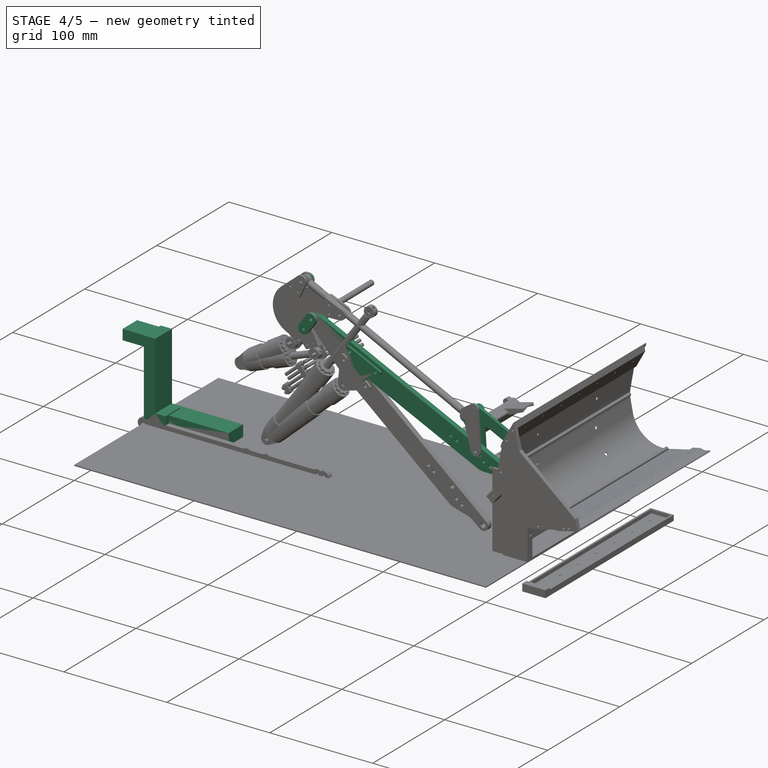
[diagram: stage 4 of 5 — iso view after this stage's code; geometry added in this stage tinted green]
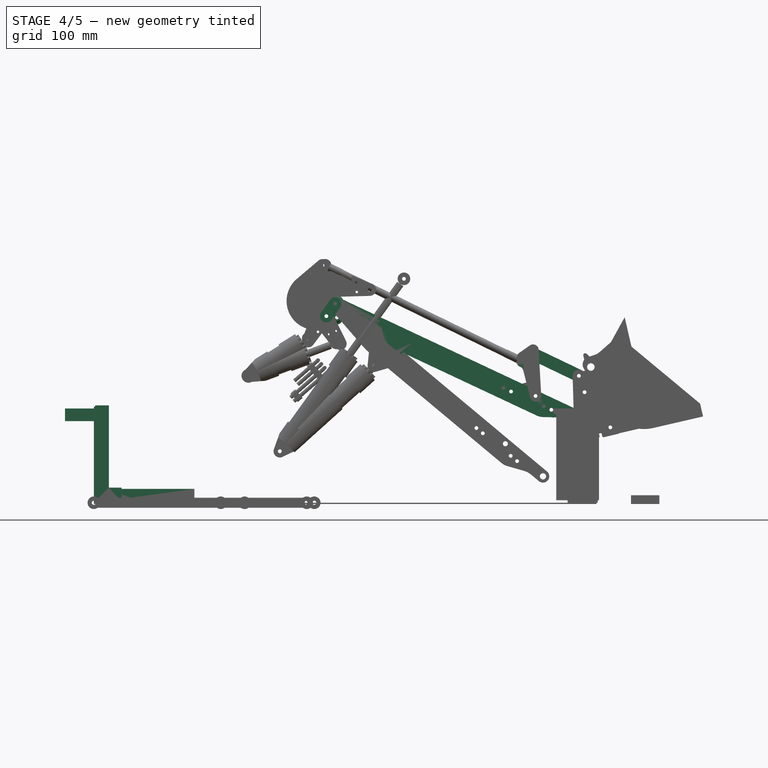
[diagram: stage 4 of 5 — front view after this stage's code; geometry added in this stage tinted green]
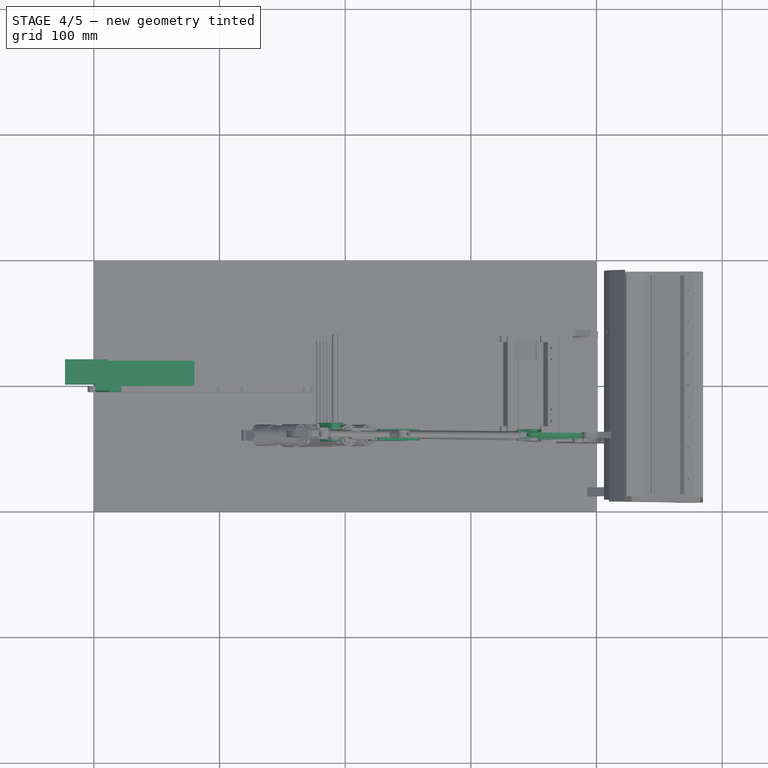
[diagram: stage 4 of 5 — top view after this stage's code; geometry added in this stage tinted green]
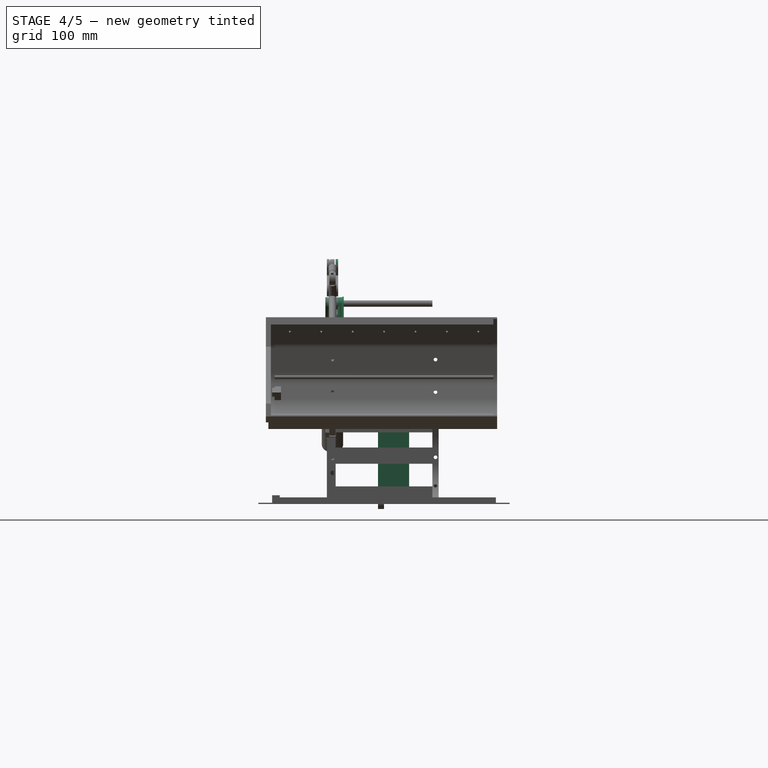
[diagram: stage 4 of 5 — right view after this stage's code; geometry added in this stage tinted green]
FEATURE [Part::Box] Box057  label="Cube"
  AttacherType = Attacher::AttachEngine3D
  Height = 76.5
  Length = 11
  Width = 20
FEATURE [Part::Box] Box058  label="Cube"
  AttacherType = Attacher::AttachEngine3D
  Height = 11
  Length = 80
  Width = 20
FEATURE [Part::Box] Box059  label="Cube"
  AttacherType = Attacher::AttachEngine3D
  Height = 10
  Length = 34
  Placement = pos=(-23,0,65) rot=(0,0,1;0rad)
  Width = 20
FEATURE [Part::Box] Box060  label="Cube"
  AttacherType = Attacher::AttachEngine3D
  Height = 76.5
  Length = 11
  Placement = pos=(1,0,1) rot=(0,0,1;0rad)
  Width = 20
FEATURE [Part::Box] Box061  label="Cube"
  AttacherType = Attacher::AttachEngine3D
  Height = 11
  Length = 21
  Placement = pos=(1,0,1) rot=(0,0,1;0rad)
  Width = 20
FEATURE [Part::Box] Box062  label="Cube"
  AttacherType = Attacher::AttachEngine3D
  Height = 11
  Length = 39.5
  Width = 2
FEATURE [Part::Box] Box063  label="Cube"
  AttacherType = Attacher::AttachEngine3D
  Height = 76.5
  Length = 11
  Width = 2
FEATURE [Part::Box] Box077  label="Cube"
  AttacherType = Attacher::AttachEngine3D
  Height = 75.5
  Length = 5
  Placement = pos=(1,2,1) rot=(0,0,1;0rad)
  Width = 4.75
FEATURE [Part::Box] Box078  label="Cube"
  AttacherType = Attacher::AttachEngine3D
  Height = 13
  Length = 6
  Placement = pos=(4,6.75,12) rot=(0,0,1;0rad)
  Width = 4.75
FEATURE [Part::Box] Box079  label="Cube"
  AttacherType = Attacher::AttachEngine3D
  Height = 13
  Length = 6
  Placement = pos=(4,6.75,12) rot=(0,0,1;0rad)
  Width = 4.75
FEATURE [Part::Box] Box080  label="Cube"
  AttacherType = Attacher::AttachEngine3D
  Height = 21.5
  Length = 7
  Placement = pos=(1,2,1) rot=(0,0,1;0rad)
  Width = 4.75
FEATURE [Part::Box] Box081  label="Cube"
  AttacherType = Attacher::AttachEngine3D
  Height = 10.5
  Length = 15
  Placement = pos=(1,2,1) rot=(0,0,1;0rad)
  Width = 4.75
FEATURE [Part::Box] Box082  label="Cube"
  AttacherType = Attacher::AttachEngine3D
  Height = 17.5
  Length = 10
  Placement = pos=(1,2,59) rot=(0,0,1;0rad)
  Width = 4.75
FEATURE [Part::Box] Box083  label="Cube"
  AttacherType = Attacher::AttachEngine3D
  Height = 11
  Length = 39.5
  Width = 2
FEATURE [Part::Box] Box084  label="Cube"
  AttacherType = Attacher::AttachEngine3D
  Height = 76.5
  Length = 11
  Width = 2
FEATURE [Part::Chamfer] Chamfer011006007
  Base = -> Box078
  Edges = 2 edges r=5: [Edge6,Edge8]
  Placement = pos=(0,0,8) rot=(0,0,1;0rad)
FEATURE [Part::Chamfer] Chamfer011006008
  Base = -> Box079
  Edges = 2 edges r=5: [Edge6,Edge8]
  Placement = pos=(0,0,9) rot=(0,0,1;0rad)
FEATURE [Part::Chamfer] Chamfer011006009
  Base = -> Box080
  Edges = 1 edges: [Edge6 r1=4.5 r2=4]
FEATURE [Part::Chamfer] Chamfer011006010
  Base = -> Box081
  Edges = 1 edges: [Edge6 r1=10 r2=8]
FEATURE [Part::Chamfer] Chamfer011006011
  Base = -> Box082
  Edges = 1 edges r=5: [Edge8]
FEATURE [Part::Cylinder] Cylinder1492318  label="Cylinder"
  Angle = 360
  AttacherType = Attacher::AttachEngine3D
  FirstAngle = 0
  Height = 8.5
  Placement = pos=(123,-36.75,101) rot=(1,0,0;1.5708rad)
  Radius = 5.5
  SecondAngle = 0
FEATURE [Part::Cylinder] Cylinder1492319  label="Cylinder"
  Angle = 360
  AttacherType = Attacher::AttachEngine3D
  FirstAngle = 0
  Height = 51.5
  Placement = pos=(154,-41,46.5) rot=(0,1,0;0.837758rad)
  Radius = 8.5
  SecondAngle = 0
FEATURE [Part::Fillet] Fillet001006007031003
  Base = -> Chamfer011006007
  Edges = 2 edges r=3: [Edge2,Edge4]
  Placement = pos=(0,-4.75,23) rot=(0,0,1;0rad)
FEATURE [Part::Fillet] Fillet001006007031004
  Base = -> Chamfer011006008
  Edges = 2 edges r=3: [Edge2,Edge4]
  Placement = pos=(0,-4.75,0) rot=(0,0,1;0rad)
FEATURE [Part::Fillet] Fillet001006007031005
  Base = -> Chamfer011006011
  Edges = 1 edges r=3: [Edge4]
FEATURE [Part::Fillet] Fillet001006007031006
  Base = -> Fillet001006007031005
  Edges = 1 edges r=3: [Edge2]
FEATURE [Part::Fillet] Fillet001006007031007
  Base = -> Chamfer011006009
  Edges = 1 edges r=3: [Edge4]
FEATURE [Part::MultiFuse] Fusion004002009002027014004009002002008002004029002015013017006002012002031033002013006007008014029072011018024002019049062029014012006016002033001057009078004002010031016012003004003  label="Fusion"
  Placement = pos=(0,-4.75,0) rot=(0,0,1;0rad)
  Refine = true
  Shapes = -> [Box060,Box061]
FEATURE [Part::MultiFuse] Fusion004002009002027014004009002002008002004029002015013017006002012002031033002013006007008014029072011018024002019049062029014012006016002033001057009078004002010031016012003004004  label="Fusion"
  Refine = true
  Shapes = -> [Box062,Box063]
FEATURE [Part::MultiFuse] Fusion004002009002027014004009002002008002004029002015013017006002012002031033002013006007008014029072011018024002019049062029014012006016002033001057009078004002010031016012003004006002003003002002  label="Fusion"
  Refine = true
  Shapes = -> [Box077,Fillet001006007031003,Fillet001006007031004,Chamfer011006010,Fillet001006007031006,Fillet001006007031007]
FEATURE [Part::MultiFuse] Fusion004002009002027014004009002002008002004029002015013017006002012002031033002013006007008014029072011018024002019049062029014012006016002033001057009078004002010031016012003004006002003003002003  label="Fusion"
  Refine = true
  Shapes = -> [Box083,Box084]
FEATURE [Part::MultiFuse] Fusion004002009002027014004009002002008002004029002015013017006002012002031033002013006007008014029072011018024002019049062029014012006016002033001057009078004002010031016012003004006002003003002004  label="Fusion"
  Refine = true
  Shapes = -> [Cylinder1492319,Cylinder1492318]
FEATURE [Sketcher::SketchObject] Sketch002  label="Sketch-arm"
  FullyConstrained = false
  MapMode = 5
  Placement = pos=(0,0,0) rot=(1,0,0;1.5708rad)
  Support = -> [XZ_Plane]
  sketch-geometry (10):
    g0: LineSegment StartX=194.337 StartY=163.479 StartZ=0 EndX=389.125 EndY=72.026 EndZ=0
    g1: LineSegment StartX=352.347 StartY=69.4083 StartZ=0 EndX=228.182 EndY=127.703 EndZ=0
    g2: LineSegment StartX=223.086 StartY=130.614 StartZ=0 EndX=188.899 EndY=153.958 EndZ=0
    g3: LineSegment StartX=357.532 StartY=68.1916 StartZ=0 EndX=370.929 EndY=67.8975 EndZ=0
    g4: LineSegment StartX=377.844 StartY=66.2753 StartZ=0 EndX=384.875 EndY=62.974 EndZ=0
    g5: ArcOfCircle CenterX=357.815 CenterY=81.0547 CenterZ=0 NormalX=0 NormalY=0 NormalZ=1 AngleXU=0 Radius=12.8662 StartAngle=4.27344 EndAngle=4.69044
    g6: ArcOfCircle CenterX=370.553 CenterY=50.7463 CenterZ=0 NormalX=0 NormalY=0 NormalZ=1 AngleXU=0 Radius=17.1553 StartAngle=1.13185 EndAngle=1.54884
    g7: ArcOfCircle CenterX=243.773 CenterY=160.912 CenterZ=0 NormalX=0 NormalY=0 NormalZ=1 AngleXU=0 Radius=36.6864 StartAngle=4.1133 EndAngle=4.27344
    g8: ArcOfCircle CenterX=387 CenterY=67.5 CenterZ=0 NormalX=0 NormalY=0 NormalZ=1 AngleXU=0 Radius=5 StartAngle=4.27344 EndAngle=7.41503
    g9: ArcOfCircle CenterX=192 CenterY=158.5 CenterZ=0 NormalX=0 NormalY=0 NormalZ=1 AngleXU=0 Radius=5.5 StartAngle=1.13185 EndAngle=4.1133
  constraints (19):
    c: Parallel(g0,g1)
    c: Tangent(g1,g5) = 1.5708
    c: Tangent(g3,g5) = -1.5708
    c: Tangent(g3,g6) = 1.5708
    c: Tangent(g4,g6) = 1.5708
    c: Tangent(g1,g7) = 1.5708
    c: Tangent(g2,g7) = 1.5708
    c: Parallel(g4,g0)
    c: Tangent(g8,g4) = -1.5708
    c: Tangent(g0,g8) = 1.5708
    c: DistanceX(g8) = 387
    c: DistanceY(g8) = 67.5
    c: DistanceX(g9) = 192
    c: DistanceY(g9) = 158.5
    c: Radius(g9) = 5.5
    c: Tangent(g0,g9) = 1.5708
    c: Tangent(g2,g9) = 1.5708
    c: Radius(g8) = 5
    c: Distance(g1,g0) = 18
FEATURE [PartDesign::Pad] Pad
  Direction = (0,-1,-2e-16)
  Length = 5
  Length2 = 10
  Placement = pos=(0,0,0) rot=(1,0,0;1.5708rad)
  Profile = -> Sketch002
  ReferenceAxis = -> Sketch002 [N_Axis]
  Refine = true
  Type = 0
FEATURE [PartDesign::Body] Body  label="right-arm-body"
  Group = -> [Sketch002,Pad]
  Origin = -> Origin
  Placement = pos=(0,-38.5,0) rot=(0,0,1;0rad)
  Tip = -> Pad
FEATURE [Sketcher::SketchObject] Sketch003
  FullyConstrained = false
  MapMode = 5
  Placement = pos=(0,0,0) rot=(1,0,0;1.5708rad)
  Support = -> [XZ_Plane002]
  sketch-geometry (7):
    g0: LineSegment StartX=353.992 StartY=118.768 StartZ=0 EndX=355.992 EndY=85.2682 EndZ=0
    g1: LineSegment StartX=347.138 StartY=83.8957 StartZ=0 EndX=341.744 EndY=105.201 EndZ=0
    g2: LineSegment StartX=338.405 StartY=116.176 StartZ=0 EndX=346.905 EndY=122.176 EndZ=0
    g3: ArcOfCircle CenterX=349.5 CenterY=118.5 CenterZ=0 NormalX=0 NormalY=0 NormalZ=1 AngleXU=0 Radius=4.5 StartAngle=0.0596307 EndAngle=2.18546
    g4: ArcOfCircle CenterX=341 CenterY=112.5 CenterZ=0 NormalX=0 NormalY=0 NormalZ=1 AngleXU=0 Radius=4.5 StartAngle=2.18546 EndAngle=4.27252
    g5: ArcOfCircle CenterX=337 CenterY=104 CenterZ=0 NormalX=0 NormalY=0 NormalZ=1 AngleXU=0 Radius=4.89384 StartAngle=0.247939 EndAngle=1.13093
    g6: ArcOfCircle CenterX=351.5 CenterY=85 CenterZ=0 NormalX=0 NormalY=0 NormalZ=1 AngleXU=0 Radius=4.5 StartAngle=3.38953 EndAngle=6.34282
  constraints (16):
    c: DistanceX(g6) = 351.5
    c: DistanceY(g6) = 85
    c: DistanceX(g3) = 349.5
    c: DistanceY(g3) = 118.5
    c: DistanceX(g4) = 341
    c: DistanceY(g4) = 112.5
    c: Tangent(g2,g4) = 1.5708
    c: Tangent(g3,g2) = 1.5708
    c: Tangent(g4,g5) = 1.5708
    c: Radius(g3) = 4.5
    c: Radius(g6) = 4.5
    c: Tangent(g5,g1) = -1.5708
    c: Tangent(g0,g3) = 1.5708
    c: Tangent(g0,g6) = 1.5708
    c: Tangent(g6,g1) = 1.5708
    c: Radius(g4) = 4.5
FEATURE [PartDesign::Pad] Pad002
  Direction = (0,-1,2e-16)
  Length = 2
  Length2 = 10
  Placement = pos=(0,0,0) rot=(1,0,0;1.5708rad)
  Profile = -> Sketch003
  ReferenceAxis = -> Sketch003 [N_Axis]
  Refine = true
  Type = 0
FEATURE [PartDesign::Body] Body002  label="right-arm-second-lever-ext-body"
  Group = -> [Sketch003,Pad002]
  Origin = -> Origin002
  Placement = pos=(0,-43.5,0) rot=(0,0,1;0rad)
  Tip = -> Pad002
FEATURE [Sketcher::SketchObject] Sketch004
  FullyConstrained = false
  MapMode = 5
  Placement = pos=(0,0,0) rot=(1,0,0;1.5708rad)
  Support = -> [XZ_Plane003]
  sketch-geometry (7):
    g0: LineSegment StartX=353.992 StartY=118.768 StartZ=0 EndX=355.992 EndY=85.2682 EndZ=0
    g1: LineSegment StartX=347.138 StartY=83.8957 StartZ=0 EndX=341.744 EndY=105.201 EndZ=0
    g2: LineSegment StartX=338.405 StartY=116.176 StartZ=0 EndX=346.905 EndY=122.176 EndZ=0
    g3: ArcOfCircle CenterX=349.5 CenterY=118.5 CenterZ=0 NormalX=0 NormalY=0 NormalZ=1 AngleXU=0 Radius=4.5 StartAngle=0.0596307 EndAngle=2.18546
    g4: ArcOfCircle CenterX=341 CenterY=112.5 CenterZ=0 NormalX=0 NormalY=0 NormalZ=1 AngleXU=0 Radius=4.5 StartAngle=2.18546 EndAngle=4.27252
    g5: ArcOfCircle CenterX=337 CenterY=104 CenterZ=0 NormalX=0 NormalY=0 NormalZ=1 AngleXU=0 Radius=4.89384 StartAngle=0.247939 EndAngle=1.13093
    g6: ArcOfCircle CenterX=351.5 CenterY=85 CenterZ=0 NormalX=0 NormalY=0 NormalZ=1 AngleXU=0 Radius=4.5 StartAngle=3.38953 EndAngle=6.34282
  constraints (16):
    c: DistanceX(g6) = 351.5
    c: DistanceY(g6) = 85
    c: DistanceX(g3) = 349.5
    c: DistanceY(g3) = 118.5
    c: DistanceX(g4) = 341
    c: DistanceY(g4) = 112.5
    c: Tangent(g2,g4) = 1.5708
    c: Tangent(g3,g2) = 1.5708
    c: Tangent(g4,g5) = 1.5708
    c: Radius(g3) = 4.5
    c: Radius(g6) = 4.5
    c: Tangent(g5,g1) = -1.5708
    c: Tangent(g0,g3) = 1.5708
    c: Tangent(g0,g6) = 1.5708
    c: Tangent(g6,g1) = 1.5708
    c: Radius(g4) = 4.5
FEATURE [PartDesign::Pad] Pad003
  Direction = (0,-1,2e-16)
  Length = 2
  Length2 = 10
  Placement = pos=(0,0,0) rot=(1,0,0;1.5708rad)
  Profile = -> Sketch004
  ReferenceAxis = -> Sketch004 [N_Axis]
  Refine = true
  Type = 0
FEATURE [PartDesign::Body] Body003  label="right-arm-second-lever-int-body"
  Group = -> [Sketch004,Pad003]
  Origin = -> Origin003
  Placement = pos=(0,-36.5,0) rot=(0,0,1;0rad)
  Tip = -> Pad003
FEATURE [Sketcher::SketchObject] Sketch007
  FullyConstrained = true
  MapMode = 5
  Placement = pos=(0,0,0) rot=(1,0,0;1.5708rad)
  Support = -> [XZ_Plane006]
  sketch-geometry (4):
    g0: LineSegment StartX=351.662 StartY=123.009 StartZ=0 EndX=388.162 EndY=105.509 EndZ=0
    g1: LineSegment StartX=383.838 StartY=96.4914 StartZ=0 EndX=347.338 EndY=113.991 EndZ=0
    g2: ArcOfCircle CenterX=349.5 CenterY=118.5 CenterZ=0 NormalX=0 NormalY=0 NormalZ=1 AngleXU=0 Radius=5 StartAngle=1.12372 EndAngle=4.26531
    g3: ArcOfCircle CenterX=386 CenterY=101 CenterZ=0 NormalX=0 NormalY=0 NormalZ=1 AngleXU=0 Radius=5 StartAngle=4.26531 EndAngle=7.40691
  constraints (10):
    c: Radius(g2) = 5
    c: Radius(g3) = 5
    c: DistanceX(g2) = 349.5
    c: DistanceY(g2) = 118.5
    c: DistanceX(g3) = 386
    c: DistanceY(g3) = 101
    c: Tangent(g2,g1) = 1.5708
    c: Tangent(g0,g2) = 1.5708
    c: Tangent(g0,g3) = 1.5708
    c: Tangent(g3,g1) = 1.5708
FEATURE [PartDesign::Pad] Pad005
  Direction = (0,-1,-2e-16)
  Length = 3
  Length2 = 10
  Placement = pos=(0,0,0) rot=(1,0,0;1.5708rad)
  Profile = -> Sketch007
  ReferenceAxis = -> Sketch007 [N_Axis]
  Refine = true
  Type = 0
FEATURE [PartDesign::Body] Body001005  label="right-arm-lever-left-piston-attach-body"
  Group = -> [Sketch012,Pad010]
  Origin = -> Origin011
  Placement = pos=(0,-36.5,0) rot=(0,0,1;0rad)
  Tip = -> Pad010
FEATURE [Sketcher::SketchObject] Sketch013  label="Sketch-arm-lever"
  FullyConstrained = false
  MapMode = 5
  Placement = pos=(0,0,0) rot=(1,0,0;1.5708rad)
  Support = -> [XZ_Plane012]
  sketch-geometry (4):
    g0: LineSegment StartX=166.993 StartY=182.283 StartZ=0 EndX=180.408 EndY=192.478 EndZ=0
    g1: LineSegment StartX=188.303 StartY=186.453 StartZ=0 EndX=181.733 EndY=174.309 EndZ=0
    g2: ArcOfCircle CenterX=184 CenterY=189 CenterZ=0 NormalX=0 NormalY=0 NormalZ=1 AngleXU=0 Radius=5 StartAngle=5.74877 EndAngle=8.65548
    g3: LineSegment StartX=181.733 StartY=174.309 StartZ=0 EndX=166.993 EndY=182.283 EndZ=0
  constraints (8):
    c: DistanceX(g2) = 184
    c: DistanceY(g2) = 189
    c: Coincident(g2,g0)
    c: Coincident(g2,g1)
    c: Radius(g2) = 5
    c: Distance(g2,g3) = 14
    c: Coincident(g0,g3)
    c: Perpendicular(g1,g3) = 4.71239
FEATURE [PartDesign::Pad] Pad011
  Direction = (0,-1,-2e-16)
  Length = 2
  Length2 = 10
  Placement = pos=(0,0,0) rot=(1,0,0;1.5708rad)
  Profile = -> Sketch013
  ReferenceAxis = -> Sketch013 [N_Axis]
  Refine = true
  Type = 0
FEATURE [Part::Cylinder] Cylinder1492330  label="Cylinder"
  Angle = 360
  AttacherType = Attacher::AttachEngine3D
  FirstAngle = 0
  Height = 2
  Placement = pos=(180.5,-45.5,179) rot=(-1,0,0;1.5708rad)
  Radius = 1
  SecondAngle = 0
FEATURE [Part::Cylinder] Cylinder1492331  label="Cylinder"
  Angle = 360
  AttacherType = Attacher::AttachEngine3D
  FirstAngle = 0
  Height = 2
  Placement = pos=(173.5,-45.5,182.75) rot=(-1,0,0;1.5708rad)
  Radius = 1
  SecondAngle = 0
FEATURE [Part::MultiFuse] Fusion004002009002027014004009002002008002004029002015013017006002012002031033002013006007008014029072011018024002019049062029014012006016002033001057009078004002010031016012003004006002003003002005007  label="Fusion"
  Refine = true
  Shapes = -> [Cylinder1492330,Cylinder1492331]
FEATURE [Part::Cylinder] Cylinder1492332  label="Cylinder"
  Angle = 360
  AttacherType = Attacher::AttachEngine3D
  FirstAngle = 0
  Height = 2
  Placement = pos=(180.5,-45.5,179) rot=(-1,0,0;1.5708rad)
  Radius = 1
  SecondAngle = 0
FEATURE [Part::Cylinder] Cylinder1492333  label="Cylinder"
  Angle = 360
  AttacherType = Attacher::AttachEngine3D
  FirstAngle = 0
  Height = 2
  Placement = pos=(173.5,-45.5,182.75) rot=(-1,0,0;1.5708rad)
  Radius = 1
  SecondAngle = 0
FEATURE [Part::MultiFuse] Fusion004002009002027014004009002002008002004029002015013017006002012002031033002013006007008014029072011018024002019049062029014012006016002033001057009078004002010031016012003004006002003003002005008  label="Fusion"
  Placement = pos=(0,7,0) rot=(0,0,1;0rad)
  Refine = true
  Shapes = -> [Cylinder1492332,Cylinder1492333]
FEATURE [Part::Cylinder] Cylinder1492334  label="Cylinder"
  Angle = 360
  AttacherType = Attacher::AttachEngine3D
  FirstAngle = 0
  Height = 5
  Placement = pos=(180.5,-45.5,179) rot=(-1,0,0;1.5708rad)
  Radius = 1
  SecondAngle = 0
FEATURE [Part::Cylinder] Cylinder1492335  label="Cylinder"
  Angle = 360
  AttacherType = Attacher::AttachEngine3D
  FirstAngle = 0
  Height = 5
  Placement = pos=(173.5,-45.5,182.75) rot=(-1,0,0;1.5708rad)
  Radius = 1
  SecondAngle = 0
FEATURE [Part::MultiFuse] Fusion004002009002027014004009002002008002004029002015013017006002012002031033002013006007008014029072011018024002019049062029014012006016002033001057009078004002010031016012003004006002003003002005009  label="Fusion"
  Placement = pos=(0,2,0) rot=(0,0,1;0rad)
  Refine = true
  Shapes = -> [Cylinder1492334,Cylinder1492335]
FEATURE [Part::Cylinder] Cylinder1492336  label="Cylinder"
  Angle = 360
  AttacherType = Attacher::AttachEngine3D
  FirstAngle = 0
  Height = 9
  Placement = pos=(184,-45.5,189) rot=(-1,0,0;1.5708rad)
  Radius = 1.5
  SecondAngle = 0
FEATURE [Part::MultiFuse] Fusion004002009002027014004009002002008002004029002015013017006002012002031033002013006007008014029072011018024002019049062029014012006016002033001057009078004002010031016012003004006002003003002005010  label="Fusion"
  Refine = true
  Shapes = -> [Fusion004002009002027014004009002002008002004029002015013017006002012002031033002013006007008014029072011018024002019049062029014012006016002033001057009078004002010031016012003004006002003003002005007,+3 more]
FEATURE [Part::Cut] Cut176013009033007019019008010045003002004008006010017027003005053020098001031003007007002011005005004026009004013004003  label="right-arm-lever-left-rod-attach-ALU2mm"
  Base = -> Body001006
  Refine = true
  Tool = -> Fusion004002009002027014004009002002008002004029002015013017006002012002031033002013006007008014029072011018024002019049062029014012006016002033001057009078004002010031016012003004006002003003002005010
FEATURE [Sketcher::SketchObject] Sketch014  label="Sketch-arm"
  FullyConstrained = false
  MapMode = 5
  Placement = pos=(0,0,0) rot=(1,0,0;1.5708rad)
  Support = -> [XZ_Plane013]
  sketch-geometry (4):
    g0: LineSegment StartX=225.17 StartY=145.688 StartZ=0 EndX=261.378 EndY=128.689 EndZ=0
    g1: ArcOfCircle CenterX=234.5 CenterY=118.5 CenterZ=0 NormalX=0 NormalY=0 NormalZ=1 AngleXU=0 Radius=5 StartAngle=3.29732 EndAngle=5.24956
    g2: LineSegment StartX=237.059 StartY=114.204 StartZ=0 EndX=261.378 EndY=128.689 EndZ=0
    g3: LineSegment StartX=229.561 StartY=117.725 StartZ=0 EndX=225.17 EndY=145.688 EndZ=0
  constraints (8):
    c: Radius(g1) = 5
    c: DistanceX(g1) = 234.5
    c: DistanceY(g1) = 118.5
    c: Coincident(g2,g0)
    c: Tangent(g2,g1) = -1.5708
    c: Distance(g0) = 40
    c: Coincident(g3,g0)
    c: Tangent(g3,g1) = 1.5708
FEATURE [PartDesign::Pad] Pad012
  Direction = (0,-1,-2e-16)
  Length = 2
  Length2 = 10
  Placement = pos=(0,0,0) rot=(1,0,0;1.5708rad)
  Profile = -> Sketch014
  ReferenceAxis = -> Sketch014 [N_Axis]
  Refine = true
  Type = 0
FEATURE [PartDesign::Body] Body001007  label="right-arm-right-piston-attach-body"
  Group = -> [Sketch014,Pad012]
  Origin = -> Origin013
  Placement = pos=(0,-36.5,0) rot=(0,0,1;0rad)
  Tip = -> Pad012
FEATURE [Part::Cylinder] Cylinder1492338  label="Cylinder"
  Angle = 360
  AttacherType = Attacher::AttachEngine3D
  FirstAngle = 0
  Height = 2
  Placement = pos=(229.5,-38.5,140) rot=(-1,0,0;1.5708rad)
  Radius = 1.5
  SecondAngle = 0
FEATURE [Part::Cylinder] Cylinder1492339  label="Cylinder"
  Angle = 360
  AttacherType = Attacher::AttachEngine3D
  FirstAngle = 0
  Height = 2
  Placement = pos=(232.5,-38.5,138.5) rot=(-1,0,0;1.5708rad)
  Radius = 1.5
  SecondAngle = 0
FEATURE [Part::Cylinder] Cylinder1492340  label="Cylinder"
  Angle = 360
  AttacherType = Attacher::AttachEngine3D
  FirstAngle = 0
  Height = 2
  Placement = pos=(254.25,-38.5,128.35) rot=(-1,0,0;1.5708rad)
  Radius = 1.5
  SecondAngle = 0
FEATURE [Part::Cylinder] Cylinder1492341  label="Cylinder"
  Angle = 360
  AttacherType = Attacher::AttachEngine3D
  FirstAngle = 0
  Height = 2
  Placement = pos=(251,-38.5,129.8) rot=(-1,0,0;1.5708rad)
  Radius = 1.5
  SecondAngle = 0
FEATURE [Part::Cylinder] Cylinder1492342  label="Cylinder"
  Angle = 360
  AttacherType = Attacher::AttachEngine3D
  FirstAngle = 0
  Height = 5
  Placement = pos=(251,-38.5,129.8) rot=(-1,0,0;1.5708rad)
  Radius = 1.25
  SecondAngle = 0
FEATURE [Part::Cylinder] Cylinder1492343  label="Cylinder"
  Angle = 360
  AttacherType = Attacher::AttachEngine3D
  FirstAngle = 0
  Height = 5
  Placement = pos=(229.5,-38.5,140) rot=(-1,0,0;1.5708rad)
  Radius = 1.25
  SecondAngle = 0
FEATURE [Part::Cylinder] Cylinder1492344  label="Cylinder"
  Angle = 360
  AttacherType = Attacher::AttachEngine3D
  FirstAngle = 0
  Height = 5
  Placement = pos=(232.5,-38.5,138.5) rot=(-1,0,0;1.5708rad)
  Radius = 1.25
  SecondAngle = 0
FEATURE [Part::Cylinder] Cylinder1492345  label="Cylinder"
  Angle = 360
  AttacherType = Attacher::AttachEngine3D
  FirstAngle = 0
  Height = 5
  Placement = pos=(254.25,-38.5,128.35) rot=(-1,0,0;1.5708rad)
  Radius = 1.25
  SecondAngle = 0
FEATURE [Part::MultiFuse] Fusion004002009002027014004009002002008002004029002015013017006002012002031033002013006007008014029072011018024002019049062029014012006016002033001057009078004002010031016012003004006002003003002005010005  label="Fusion"
  Placement = pos=(0,-5,0) rot=(0,0,1;0rad)
  Refine = true
  Shapes = -> [Cylinder1492342,Cylinder1492343,Cylinder1492344,Cylinder1492345]
FEATURE [Part::Feature] Body001007001  label="right-arm-left-piston-attach-body"
  Placement = pos=(0,-43.5,0) rot=(0,0,1;0rad)
  shape: bbox 36.21 x 2 x 32.19 mm, 6 faces (baked)
FEATURE [Part::Cylinder] Cylinder1492346  label="Cylinder"
  Angle = 360
  AttacherType = Attacher::AttachEngine3D
  FirstAngle = 0
  Height = 9
  Placement = pos=(234.5,-45.5,118.5) rot=(-1,0,0;1.5708rad)
  Radius = 1.5
  SecondAngle = 0
FEATURE [Part::MultiFuse] Fusion004002009002027014004009002002008002004029002015013017006002012002031033002013006007008014029072011018024002019049062029014012006016002033001057009078004002010031016012003004006002003003002005010007  label="Fusion"
  Refine = true
  Shapes = -> [Cylinder1492339,Cylinder1492341,Cylinder1492346]
FEATURE [Part::Cylinder] Cylinder1492347  label="Cylinder"
  Angle = 360
  AttacherType = Attacher::AttachEngine3D
  FirstAngle = 0
  Height = 9
  Placement = pos=(234.5,-45.5,118.5) rot=(-1,0,0;1.5708rad)
  Radius = 1.5
  SecondAngle = 0
FEATURE [Part::MultiFuse] Fusion004002009002027014004009002002008002004029002015013017006002012002031033002013006007008014029072011018024002019049062029014012006016002033001057009078004002010031016012003004006002003003002005010006  label="Fusion"
  Placement = pos=(0,-7,0) rot=(0,0,1;0rad)
  Refine = true
  Shapes = -> [Cylinder1492338,Cylinder1492340,Cylinder1492347]
FEATURE [Part::Cut] Cut176013009033007019019008010045003002004008006010017027003005053020098001031003007007002011005005004026009004013004003002003  label="Cut"
  Base = -> Body001007
  Refine = true
  Tool = -> Fusion004002009002027014004009002002008002004029002015013017006002012002031033002013006007008014029072011018024002019049062029014012006016002033001057009078004002010031016012003004006002003003002005010007
FEATURE [Part::Cut] Cut176013009033007019019008010045003002004008006010017027003005053020098001031003007007002011005005004026009004013004003002004  label="Cut"
  Base = -> Body001007001
  Refine = true
  Tool = -> Fusion004002009002027014004009002002008002004029002015013017006002012002031033002013006007008014029072011018024002019049062029014012006016002033001057009078004002010031016012003004006002003003002005010006
FEATURE [Part::Fillet] Fillet  label="right-arm-left-piston-attach-ALU2mm"
  Base = -> Cut176013009033007019019008010045003002004008006010017027003005053020098001031003007007002011005005004026009004013004003002004
  Edges = 2 edges r=2: [Edge2,Edge8]
FEATURE [Part::Fillet] Fillet001006007031016  label="right-arm-right-piston-attach-ALU2mm"
  Base = -> Cut176013009033007019019008010045003002004008006010017027003005053020098001031003007007002011005005004026009004013004003002003
  Edges = 2 edges r=2: [Edge2,Edge8]
FEATURE [Part::Cylinder] Cylinder1492349  label="Cylinder"
  Angle = 360
  AttacherType = Attacher::AttachEngine3D
  FirstAngle = 0
  Height = 5
  Placement = pos=(332,-43.5,88.5) rot=(-1,0,0;1.5708rad)
  Radius = 1.5
  SecondAngle = 0
FEATURE [Part::Cylinder] Cylinder1492350  label="Cylinder"
  Angle = 360
  AttacherType = Attacher::AttachEngine3D
  FirstAngle = 0
  Height = 5
  Placement = pos=(326,-43.5,91.25) rot=(-1,0,0;1.5708rad)
  Radius = 1.5
  SecondAngle = 0
FEATURE [Part::Cylinder] Cylinder1492351  label="Cylinder"
  Angle = 360
  AttacherType = Attacher::AttachEngine3D
  FirstAngle = 0
  Height = 5
  Placement = pos=(332,-43.5,88.5) rot=(-1,0,0;1.5708rad)
  Radius = 1.5
  SecondAngle = 0
FEATURE [Part::Cylinder] Cylinder1492352  label="Cylinder"
  Angle = 360
  AttacherType = Attacher::AttachEngine3D
  FirstAngle = 0
  Height = 5
  Placement = pos=(326,-43.5,91.25) rot=(-1,0,0;1.5708rad)
  Radius = 1.5
  SecondAngle = 0
FEATURE [Part::MultiFuse] Fusion004002009002027014004009002002008002004029002015013017006002012002031033002013006007008014029072011018024002019049062029014012006016002033001057009078004002010031016012003004006002003003002005010008  label="Fusion"
  Refine = true
  Shapes = -> [Cylinder1492349,Cylinder1492350]
FEATURE [Part::MultiFuse] Fusion004002009002027014004009002002008002004029002015013017006002012002031033002013006007008014029072011018024002019049062029014012006016002033001057009078004002010031016012003004006002003003002005005002  label="Fusion"
  Placement = pos=(32,0,-14.5) rot=(0,0,1;0rad)
  Refine = true
  Shapes = -> [Cylinder1492351,Cylinder1492352]
FEATURE [Part::Cylinder] Cylinder1492353  label="Cylinder"
  Angle = 360
  AttacherType = Attacher::AttachEngine3D
  FirstAngle = 0
  Height = 5
  Placement = pos=(192,-43.5,158.5) rot=(-1,0,0;1.5708rad)
  Radius = 4
  SecondAngle = 0
FEATURE [Part::Cylinder] Cylinder1492354  label="Cylinder"
  Angle = 360
  AttacherType = Attacher::AttachEngine3D
  FirstAngle = 0
  Height = 5
  Placement = pos=(351.5,-43.5,85) rot=(-1,0,0;1.5708rad)
  Radius = 2
  SecondAngle = 0
FEATURE [Part::Cylinder] Cylinder1492355  label="Cylinder"
  Angle = 360
  AttacherType = Attacher::AttachEngine3D
  FirstAngle = 0
  Height = 5
  Placement = pos=(387,-43.5,67.5) rot=(-1,0,0;1.5708rad)
  Radius = 2.5
  SecondAngle = 0
FEATURE [Part::MultiFuse] Fusion004002009002027014004009002002008002004029002015013017006002012002031033002013006007008014029072011018024002019049062029014012006016002033001057009078004002010031016012003004006002003003002005010009  label="Fusion"
  Refine = true
  Shapes = -> [Fusion004002009002027014004009002002008002004029002015013017006002012002031033002013006007008014029072011018024002019049062029014012006016002033001057009078004002010031016012003004006002003003002005010005,+5 more]
FEATURE [Part::Cut] Cut176013009033007019019008010045003002004008006010017027003005053020098001031003007007002011005005004026009004013004003002005  label="right-arm-ALU5mm"
  Base = -> Body
  Refine = true
  Tool = -> Fusion004002009002027014004009002002008002004029002015013017006002012002031033002013006007008014029072011018024002019049062029014012006016002033001057009078004002010031016012003004006002003003002005010009
FEATURE [Part::Cylinder] Cylinder1492356  label="Cylinder"
  Angle = 360
  AttacherType = Attacher::AttachEngine3D
  FirstAngle = 0
  Height = 5
  Placement = pos=(349.5,-43.5,118.5) rot=(-1,0,0;1.5708rad)
  Radius = 2
  SecondAngle = 0
FEATURE [Part::Cylinder] Cylinder1492357  label="Cylinder"
  Angle = 360
  AttacherType = Attacher::AttachEngine3D
  FirstAngle = 0
  Height = 5
  Placement = pos=(386,-43.5,101) rot=(-1,0,0;1.5708rad)
  Radius = 2
  SecondAngle = 0
FEATURE [Part::MultiFuse] Fusion004002009002027014004009002002008002004029002015013017006002012002031033002013006007008014029072011018024002019049062029014012006016002033001057009078004002010031016012003004006002003003002005010010  label="Fusion"
  Refine = true
  Shapes = -> [Cylinder1492357,Cylinder1492356]
FEATURE [Part::Cut] Cut176013009033007019019008010045003002004008006010017027003005053020098001031003007007002011005005004026009004013004003002006  label="right-arm-second-rod-ALU3mm"
  Base = -> Body008
  Refine = true
  Tool = -> Fusion004002009002027014004009002002008002004029002015013017006002012002031033002013006007008014029072011018024002019049062029014012006016002033001057009078004002010031016012003004006002003003002005010010
FEATURE [Part::Cylinder] Cylinder1492359  label="Cylinder"
  Angle = 360
  AttacherType = Attacher::AttachEngine3D
  FirstAngle = 0
  Height = 9
  Placement = pos=(349.5,-45.5,118.5) rot=(-1,0,0;1.5708rad)
  Radius = 1.5
  SecondAngle = 0
FEATURE [Part::Cylinder] Cylinder1492360  label="Cylinder"
  Angle = 360
  AttacherType = Attacher::AttachEngine3D
  FirstAngle = 0
  Height = 9
  Placement = pos=(351.5,-45.5,85) rot=(-1,0,0;1.5708rad)
  Radius = 1.5
  SecondAngle = 0
FEATURE [Part::Cylinder] Cylinder1492361  label="Cylinder"
  Angle = 360
  AttacherType = Attacher::AttachEngine3D
  FirstAngle = 0
  Height = 9
  Placement = pos=(341,-45.5,112.5) rot=(-1,0,0;1.5708rad)
  Radius = 1.5
  SecondAngle = 0
FEATURE [Part::MultiFuse] Fusion004002009002027014004009002002008002004029002015013017006002012002031033002013006007008014029072011018024002019049062029014012006016002033001057009078004002010031016012003004006002003003002005010012  label="Fusion"
  Refine = true
  Shapes = -> [Cylinder1492359,Cylinder1492360,Cylinder1492361]
FEATURE [Part::Feature] Fusion004002009002027014004009002002008002004029002015013017006002012002031033002013006007008014029072011018024002019049062029014012006016002033001057009078004002010031016012003004006002003003002005010012001  label="Fusion"
  shape: bbox 13.5 x 9 x 36.5 mm, 9 faces, 3 solids (baked)
FEATURE [Part::Cut] Cut176013009033007019019008010045003002004008006010017027003005053020098001031003007007002011005005004026009004013004003002007  label="right-arm-second-lever-int-ALU2mm"
  Base = -> Body003
  Placement = pos=(0,0.2,0) rot=(0,0,1;0rad)
  Refine = true
  Tool = -> Fusion004002009002027014004009002002008002004029002015013017006002012002031033002013006007008014029072011018024002019049062029014012006016002033001057009078004002010031016012003004006002003003002005010012
FEATURE [Part::Cut] Cut176013009033007019019008010045003002004008006010017027003005053020098001031003007007002011005005004026009004013004003002008  label="right-arm-second-lever-ext-ALU2mm"
  Base = -> Body002
  Placement = pos=(0,-0.2,0) rot=(0,0,1;0rad)
  Refine = true
  Tool = -> Fusion004002009002027014004009002002008002004029002015013017006002012002031033002013006007008014029072011018024002019049062029014012006016002033001057009078004002010031016012003004006002003003002005010012001
FEATURE [Part::Feature] Cut176013009033007019019008010045003002004008006010017027003005053020098001031003007007002011005005004026009004013004003002011004001  label="BUSH-5x4-BRASS"
  Placement = pos=(1,0,-33.5) rot=(0,0,1;0rad)
  shape: bbox 5 x 5 x 5 mm, 4 faces (baked)
FEATURE [Part::Feature] Fusion004002009002027014004009002002008002004029002015013017006002012002031033002013006007008014029072011018024002019049062029014012006016002033001057009078004002010031016012003004006002003003002005010011003  label="Fusion"
  shape: bbox 12.5 x 9 x 44 mm, 15 faces, 5 solids (baked)
FEATURE [Sketcher::SketchObject] Sketch
  FullyConstrained = false
  MapMode = 5
  Placement = pos=(0,0,0) rot=(1,0,0;1.5708rad)
  Support = -> [XZ_Plane014]
  sketch-geometry (6):
    g0: LineSegment StartX=186.265 StartY=162.514 StartZ=0 EndX=179.265 EndY=152.514 EndZ=0
    g1: LineSegment StartX=199 StartY=158.5 StartZ=0 EndX=199 EndY=148.5 EndZ=0
    g2: LineSegment StartX=192 StartY=141.5 StartZ=0 EndX=185 EndY=141.5 EndZ=0
    g3: ArcOfCircle CenterX=185 CenterY=148.5 CenterZ=0 NormalX=0 NormalY=0 NormalZ=1 AngleXU=0 Radius=7 StartAngle=2.53087 EndAngle=4.71239
    g4: ArcOfCircle CenterX=192 CenterY=158.5 CenterZ=0 NormalX=0 NormalY=0 NormalZ=1 AngleXU=0 Radius=7 StartAngle=1.56492e-10 EndAngle=2.53087
    g5: ArcOfCircle CenterX=192 CenterY=148.5 CenterZ=0 NormalX=0 NormalY=0 NormalZ=1 AngleXU=0 Radius=7 StartAngle=4.71239 EndAngle=6.28319
  constraints (14):
    c: Vertical(g1)
    c: Radius(g3) = 7
    c: DistanceX(g3) = 185
    c: DistanceY(g3) = 148.5
    c: DistanceX(g4) = 192
    c: DistanceY(g4) = 158.5
    c: Radius(g4) = 7
    c: Coincident(g4,g1)
    c: Tangent(g4,g0) = -1.5708
    c: Tangent(g0,g3) = -1.5708
    c: Tangent(g3,g2) = 1.5708
    c: Tangent(g1,g5) = 1.5708
    c: Tangent(g2,g5) = 1.5708
    c: Radius(g5) = 7
FEATURE [PartDesign::Pad] Pad013
  Direction = (0,-1,-2e-16)
  Length = 0.2
  Length2 = 10
  Placement = pos=(0,0,0) rot=(1,0,0;1.5708rad)
  Profile = -> Sketch
  ReferenceAxis = -> Sketch [N_Axis]
  Refine = true
  Type = 0
  expr: Length = 0.2
FEATURE [PartDesign::Body] Body001007002  label="right-arm-attach-intern-body"
  Group = -> [Sketch,Pad013]
  Origin = -> Origin014
  Placement = pos=(0,-32,0) rot=(0,0,1;0rad)
  Tip = -> Pad013
FEATURE [Sketcher::SketchObject] Sketch015
  FullyConstrained = true
  MapMode = 5
  Placement = pos=(0,0,0) rot=(1,0,0;1.5708rad)
  Support = -> [XZ_Plane015]
  sketch-geometry (4):
    g0: LineSegment StartX=187.904 StartY=161.367 StartZ=0 EndX=180.904 EndY=151.367 EndZ=0
    g1: LineSegment StartX=196.096 StartY=155.633 StartZ=0 EndX=189.096 EndY=145.633 EndZ=0
    g2: ArcOfCircle CenterX=185 CenterY=148.5 CenterZ=0 NormalX=0 NormalY=0 NormalZ=1 AngleXU=0 Radius=5 StartAngle=2.53087 EndAngle=5.67246
    g3: ArcOfCircle CenterX=192 CenterY=158.5 CenterZ=0 NormalX=0 NormalY=0 NormalZ=1 AngleXU=0 Radius=5 StartAngle=5.67246 EndAngle=8.81405
  constraints (11):
    c: Radius(g2) = 5
    c: DistanceX(g2) = 185
    c: DistanceY(g2) = 148.5
    c: DistanceX(g3) = 192
    c: DistanceY(g3) = 158.5
    c: Radius(g3) = 5
    c: Tangent(g3,g0) = -1.5708
    c: Tangent(g0,g2) = -1.5708
    c: Parallel(g0,g1)
    c: Tangent(g3,g1) = 1.5708
    c: Coincident(g1,g2)
FEATURE [PartDesign::Pad] Pad014
  Direction = (0,-1,-2e-16)
  Length = 3
  Length2 = 10
  Placement = pos=(0,0,0) rot=(1,0,0;1.5708rad)
  Profile = -> Sketch015
  ReferenceAxis = -> Sketch015 [N_Axis]
  Refine = true
  Type = 0
  expr: Length = 3
FEATURE [PartDesign::Body] Body001007003  label="right-arm-attach-extern-body"
  Group = -> [Sketch015,Pad014]
  Origin = -> Origin015
  Placement = pos=(0,-43.5,0) rot=(0,0,1;0rad)
  Tip = -> Pad014
FEATURE [Part::Cylinder] Cylinder1492370  label="Cylinder"
  Angle = 360
  AttacherType = Attacher::AttachEngine3D
  FirstAngle = 0
  Height = 6.5
  Placement = pos=(192,-38.5,158.5) rot=(-1,0,0;1.5708rad)
  Radius = 2.5
  SecondAngle = 0
FEATURE [Part::Cylinder] Cylinder1492371  label="Cylinder"
  Angle = 360
  AttacherType = Attacher::AttachEngine3D
  FirstAngle = 0
  Height = 5
  Placement = pos=(193.5,-37,147.5) rot=(-1,0,0;1.5708rad)
  Radius = 1.5
  SecondAngle = 0
FEATURE [Part::Cylinder] Cylinder1492372  label="Cylinder"
  Angle = 360
  AttacherType = Attacher::AttachEngine3D
  FirstAngle = 0
  Height = 14.5
  Placement = pos=(185,-46.5,148.5) rot=(-1,0,0;1.5708rad)
  Radius = 1.5
  SecondAngle = 0
FEATURE [Part::Cylinder] Cylinder1492373  label="Cylinder"
  Angle = 360
  AttacherType = Attacher::AttachEngine3D
  FirstAngle = 0
  Height = 5
  Placement = pos=(186.5,-37,154) rot=(-1,0,0;1.5708rad)
  Radius = 1.5
  SecondAngle = 0
FEATURE [Part::Cylinder] Cylinder1492374  label="Cylinder"
  Angle = 360
  AttacherType = Attacher::AttachEngine3D
  FirstAngle = 0
  Height = 8.5
  Placement = pos=(192,-46.5,158.5) rot=(-1,0,0;1.5708rad)
  Radius = 1.5
  SecondAngle = 0
FEATURE [Part::Feature] Fusion004002009002027014004009002002008002004029002015013017006002012002031033002013006007008014029072011018024002019049062029014012006016002033001057009078004002010031016012003004006002003003002005010012002001  label="Fusion"
  shape: bbox 11 x 14.5 x 14.5 mm, 14 faces, 4 solids (baked)
FEATURE [Part::Cut] Cut176013009033007019019008010045003002004008006010017027003005053020098001031003007007002011005005004026009004013004003002011004004  label="right-arm-attach-extern-ALU3mm"
  Base = -> Body001007003
  Placement = pos=(0,-0.2,0) rot=(0,0,1;0rad)
  Refine = true
  Tool = -> Fusion004002009002027014004009002002008002004029002015013017006002012002031033002013006007008014029072011018024002019049062029014012006016002033001057009078004002010031016012003004006002003003002005010012002001
FEATURE [Part::Cylinder] Cylinder1492375  label="Cylinder"
  Angle = 360
  AttacherType = Attacher::AttachEngine3D
  FirstAngle = 0
  Height = 3
  Placement = pos=(192,-38.5,158.5) rot=(-1,0,0;1.5708rad)
  Radius = 5
  SecondAngle = 0
FEATURE [Part::Cylinder] Cylinder1492376  label="Cylinder"
  Angle = 360
  AttacherType = Attacher::AttachEngine3D
  FirstAngle = 0
  Height = 3
  Placement = pos=(185,-38.5,148.5) rot=(-1,0,0;1.5708rad)
  Radius = 5
  SecondAngle = 0
FEATURE [Part::Cylinder] Cylinder1492377  label="Cylinder"
  Angle = 360
  AttacherType = Attacher::AttachEngine3D
  FirstAngle = 0
  Height = 3
  Placement = pos=(192,-38.5,158.5) rot=(-1,0,0;1.5708rad)
  Radius = 2.5
  SecondAngle = 0
FEATURE [Part::Cylinder] Cylinder1492378  label="Cylinder"
  Angle = 360
  AttacherType = Attacher::AttachEngine3D
  FirstAngle = 0
  Height = 3
  Placement = pos=(185,-38.5,148.5) rot=(-1,0,0;1.5708rad)
  Radius = 1.5
  SecondAngle = 0
FEATURE [Part::Cut] Cut176013009033007019019008010045003002004008006010017027003005053020098001031003007007002011005005004026009004013004003002011004005  label="Cut"
  Base = -> Cylinder1492375
  Refine = true
  Tool = -> Cylinder1492377
FEATURE [Part::Cut] Cut176013009033007019019008010045003002004008006010017027003005053020098001031003007007002011005005004026009004013004003002011004006  label="Cut"
  Base = -> Cylinder1492376
  Refine = true
  Tool = -> Cylinder1492378
FEATURE [Sketcher::SketchObject] Sketch016
  FullyConstrained = false
  MapMode = 5
  Placement = pos=(0,0,0) rot=(1,0,0;1.5708rad)
  Support = -> [XZ_Plane016]
  sketch-geometry (6):
    g0: LineSegment StartX=187.904 StartY=161.367 StartZ=0 EndX=180.904 EndY=151.367 EndZ=0
    g1: LineSegment StartX=197 StartY=158.5 StartZ=0 EndX=197 EndY=148.5 EndZ=0
    g2: LineSegment StartX=192 StartY=143.5 StartZ=0 EndX=185 EndY=143.5 EndZ=0
    g3: ArcOfCircle CenterX=185 CenterY=148.5 CenterZ=0 NormalX=0 NormalY=0 NormalZ=1 AngleXU=0 Radius=5 StartAngle=2.53087 EndAngle=4.71239
    g4: ArcOfCircle CenterX=192 CenterY=158.5 CenterZ=0 NormalX=0 NormalY=0 NormalZ=1 AngleXU=0 Radius=5 StartAngle=1.57e-14 EndAngle=2.53087
    g5: ArcOfCircle CenterX=192 CenterY=148.5 CenterZ=0 NormalX=0 NormalY=0 NormalZ=1 AngleXU=0 Radius=5 StartAngle=4.71239 EndAngle=6.28319
  constraints (14):
    c: Vertical(g1)
    c: Radius(g3) = 5
    c: DistanceX(g3) = 185
    c: DistanceY(g3) = 148.5
    c: DistanceX(g4) = 192
    c: DistanceY(g4) = 158.5
    c: Radius(g4) = 5
    c: Coincident(g4,g1)
    c: Tangent(g4,g0) = -1.5708
    c: Tangent(g0,g3) = -1.5708
    c: Tangent(g3,g2) = 1.5708
    c: Tangent(g1,g5) = 1.5708
    c: Tangent(g2,g5) = 1.5708
    c: Radius(g5) = 5
FEATURE [PartDesign::Pad] Pad015
  Direction = (0,-1,-2e-16)
  Length = 5
  Length2 = 10
  Placement = pos=(0,0,0) rot=(1,0,0;1.5708rad)
  Profile = -> Sketch016
  ReferenceAxis = -> Sketch016 [N_Axis]
  Refine = true
  Type = 0
  expr: Length = 5
FEATURE [PartDesign::Body] Body001007004  label="right-arm-attach-intern-body"
  Group = -> [Sketch016,Pad015]
  Origin = -> Origin016
  Placement = pos=(0,-32,0) rot=(0,0,1;0rad)
  Tip = -> Pad015
FEATURE [Part::Cylinder] Cylinder1492379  label="Cylinder"
  Angle = 360
  AttacherType = Attacher::AttachEngine3D
  FirstAngle = 0
  Height = 3
  Placement = pos=(186.5,-39,154) rot=(-1,0,0;1.5708rad)
  Radius = 3
  SecondAngle = 0
FEATURE [Part::MultiFuse] Fusion004002009002027014004009002002008002004029002015013017006002012002031033002013006007008014029072011018024002019049062029014012006016002033001057009078004002010031016012003004006002003003002005010012002002  label="Fusion"
  Refine = true
  Shapes = -> [Body001007002,Body001007004]
FEATURE [Part::Fillet] Fillet001006007031017
  Base = -> Fusion004002009002027014004009002002008002004029002015013017006002012002031033002013006007008014029072011018024002019049062029014012006016002033001057009078004002010031016012003004006002003003002005010012002002
  Edges = 12 edges r=1.99: [Edge14,Edge15,Edge16,Edge17,Edge18,Edge19,Edge26,Edge29,Edge30,Edge33,Edge34,Edge36]
FEATURE [Part::MultiFuse] Fusion004002009002027014004009002002008002004029002015013017006002012002031033002013006007008014029072011018024002019049062029014012006016002033001057009078004002010031016012003004006002003003002005010012002003  label="Fusion"
  Refine = true
  Shapes = -> [Fillet001006007031017,Cut176013009033007019019008010045003002004008006010017027003005053020098001031003007007002011005005004026009004013004003002011004006,Cut176013009033007019019008010045003002004008006010017027003005053020098001031003007007002011005005004026009004013004003002011004005]
FEATURE [Part::Box] Box  label="Cube"
  AttacherType = Attacher::AttachEngine3D
  Height = 3
  Length = 10
  Placement = pos=(187,-42,164) rot=(0,0,1;0rad)
  Width = 10
FEATURE [Part::Cut] Cut176013009033007019019008010045003002004008006010017027003005053020098001031003007007002011005005004026009004013004003002011004007  label="Cut"
  Base = -> Fusion004002009002027014004009002002008002004029002015013017006002012002031033002013006007008014029072011018024002019049062029014012006016002033001057009078004002010031016012003004006002003003002005010012002003
  Refine = true
  Tool = -> Box
FEATURE [Part::Cylinder] Cylinder1492380  label="Cylinder"
  Angle = 360
  AttacherType = Attacher::AttachEngine3D
  FirstAngle = 0
  Height = 3
  Placement = pos=(193.5,-39,147.5) rot=(-1,0,0;1.5708rad)
  Radius = 3
  SecondAngle = 0
FEATURE [Part::MultiFuse] Fusion004002009002027014004009002002008002004029002015013017006002012002031033002013006007008014029072011018024002019049062029014012006016002033001057009078004002010031016012003004006002003003002005010012002  label="Fusion"
  Refine = true
  Shapes = -> [Cylinder1492370,Cylinder1492371,Cylinder1492372,Cylinder1492373,Cylinder1492374,Cylinder1492379,Cylinder1492380]
FEATURE [Part::Cut] Cut176013009033007019019008010045003002004008006010017027003005053020098001031003007007002011005005004026009004013004003002011004008  label="right-arm-attach-spacer"
  Base = -> Cut176013009033007019019008010045003002004008006010017027003005053020098001031003007007002011005005004026009004013004003002011004007
  Refine = true
  Tool = -> Fusion004002009002027014004009002002008002004029002015013017006002012002031033002013006007008014029072011018024002019049062029014012006016002033001057009078004002010031016012003004006002003003002005010012002
FEATURE [Part::Cylinder] Cylinder1492381  label="Cylinder"
  Angle = 360
  AttacherType = Attacher::AttachEngine3D
  FirstAngle = 0
  Height = 0.2
  Placement = pos=(192,-43.7,158.5) rot=(-1,0,0;1.5708rad)
  Radius = 4.5
  SecondAngle = 0
FEATURE [Part::Cut] Cut176013009033007019019008010045003002004008006010017027003005053020098001031003007007002011005005004026009004013004003002011004009  label="SPACER-M5x0.2"
  Base = -> Cylinder1492381
  Refine = true
  Tool = -> Cylinder1492382
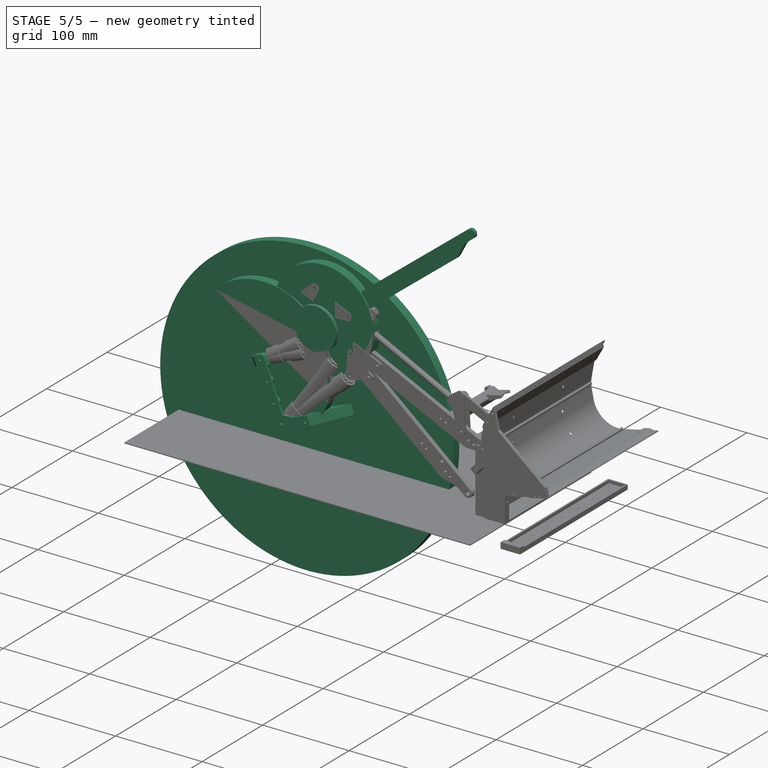
[diagram: stage 5 of 5 — iso view after this stage's code; geometry added in this stage tinted green]
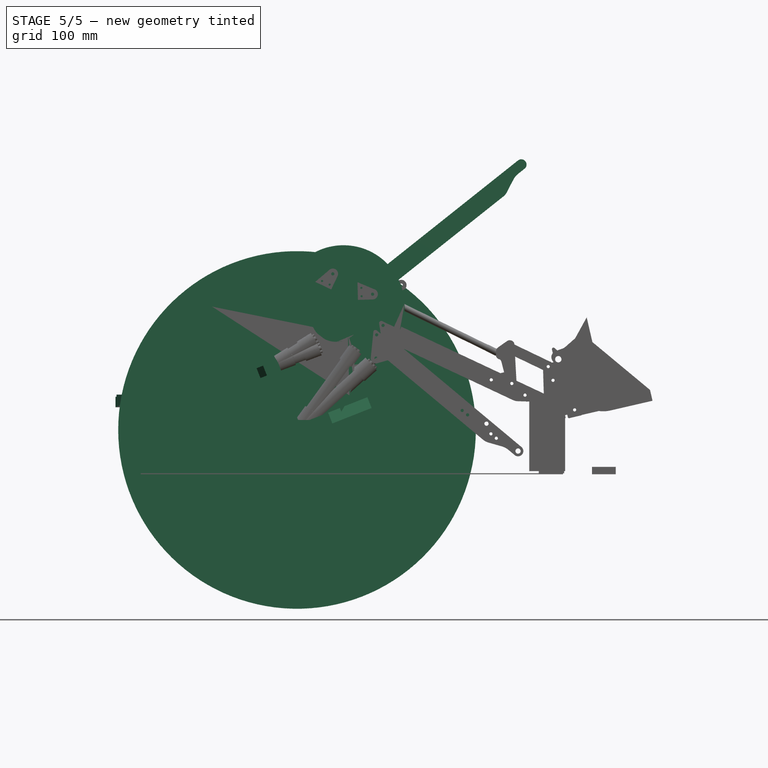
[diagram: stage 5 of 5 — front view after this stage's code; geometry added in this stage tinted green]
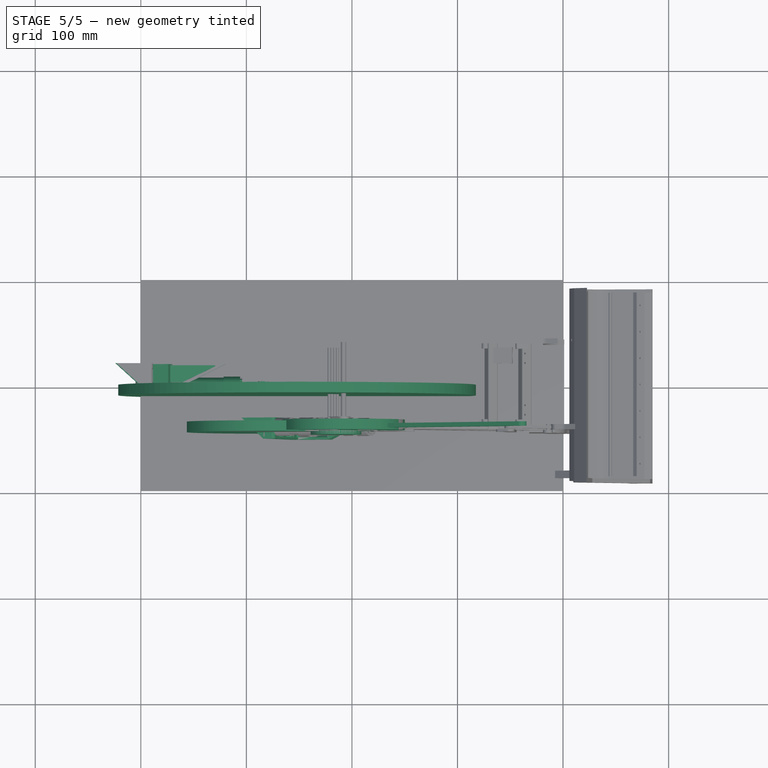
[diagram: stage 5 of 5 — top view after this stage's code; geometry added in this stage tinted green]
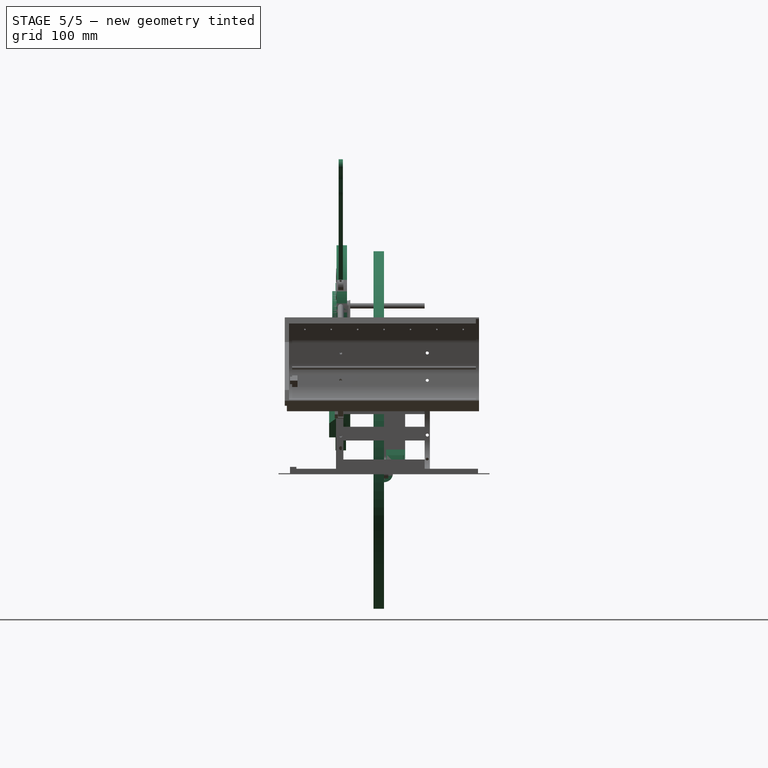
[diagram: stage 5 of 5 — right view after this stage's code; geometry added in this stage tinted green]
FEATURE [Part::Box] Box066  label="Cube"
  AttacherType = Attacher::AttachEngine3D
  Height = 53
  Length = 6
  Placement = pos=(0,6.75,12) rot=(0,0,1;0rad)
  Width = 8.5
FEATURE [Part::Box] Box067  label="Cube"
  AttacherType = Attacher::AttachEngine3D
  Height = 13
  Length = 6
  Placement = pos=(4,6.75,12) rot=(0,0,1;0rad)
  Width = 8.5
FEATURE [Part::Box] Box068  label="Cube"
  AttacherType = Attacher::AttachEngine3D
  Height = 13
  Length = 6
  Placement = pos=(4,6.75,12) rot=(0,0,1;0rad)
  Width = 8.5
FEATURE [Part::Box] Box073  label="Cube"
  AttacherType = Attacher::AttachEngine3D
  Height = 21
  Length = 31.5
  Placement = pos=(8,2,1.5) rot=(0,0,1;0rad)
  Width = 18
FEATURE [Part::Box] Box074  label="Cube"
  AttacherType = Attacher::AttachEngine3D
  Height = 11.5
  Length = 19.5
  Placement = pos=(22,2,-0.5) rot=(0,0,1;0rad)
  Width = 18
FEATURE [Part::Box] Box075  label="Cube"
  AttacherType = Attacher::AttachEngine3D
  Height = 17
  Length = 5
  Placement = pos=(6,18,6) rot=(0,0,1;0rad)
  Width = 2
FEATURE [Part::Box] Box076  label="Cube"
  AttacherType = Attacher::AttachEngine3D
  Height = 7
  Length = 25
  Placement = pos=(11,18,1) rot=(0,0,1;0rad)
  Width = 2
FEATURE [Part::Chamfer] Chamfer011002
  Base = -> Box066
  Edges = 2 edges r=5: [Edge6,Edge8]
FEATURE [Part::Chamfer] Chamfer011003
  Base = -> Box067
  Edges = 2 edges r=5: [Edge6,Edge8]
  Placement = pos=(0,0,8) rot=(0,0,1;0rad)
FEATURE [Part::Chamfer] Chamfer011004
  Base = -> Box068
  Edges = 2 edges r=5: [Edge6,Edge8]
  Placement = pos=(0,0,9) rot=(0,0,1;0rad)
FEATURE [Part::Chamfer] Chamfer011006002
  Base = -> Box074
  Edges = 1 edges: [Edge2 r1=10 r2=17.5]
FEATURE [Part::Chamfer] Chamfer011006005
  Base = -> Box075
  Edges = 1 edges: [Edge8 r1=11 r2=4.99]
FEATURE [Part::Chamfer] Chamfer011006006
  Base = -> Box076
  Edges = 1 edges: [Edge2 r1=5 r2=15]
FEATURE [Part::Feature] Cut176013009033007019019008010045003002004008006010017027003005053020098001031003007007002011005005004026009004001  label="BEARING-3x6x2.5-MR63"
  Placement = pos=(110,-110,102.5) rot=(0,0,1;0rad)
  shape: bbox 6 x 2.5 x 6 mm, 4 faces (baked)
FEATURE [Part::Feature] Cut176013009033007019019008010045003002004008006010017027003005053020098001031003007007002011005005004026009004002  label="BEARING-3x6x2.5-MR63"
  Placement = pos=(110,-107.5,102.5) rot=(0,0,1;0rad)
  shape: bbox 6 x 2.5 x 6 mm, 4 faces (baked)
FEATURE [Part::Cut] Cut176013009033007019019008010045003002004008006010017027003005053020098001031003007007002011005005004026009004007  label="Cut"
  Base = -> Box073
  Refine = true
  Tool = -> Chamfer011006002
FEATURE [Part::Chamfer] Chamfer011006003
  Base = -> Cut176013009033007019019008010045003002004008006010017027003005053020098001031003007007002011005005004026009004007
  Edges = 1 edges: [Edge2 r1=4.5 r2=3]
FEATURE [Part::Chamfer] Chamfer011006004
  Base = -> Chamfer011006003
  Edges = 1 edges: [Edge2 r1=10 r2=8]
FEATURE [Part::Feature] Cut176013009033007019019008010045003002004008006021005004004004004002012033009016002012007022024029  label="BEARING-5x8x2.5-MR85ZZ"
  Placement = pos=(117,-110,112.5) rot=(0,0,1;0rad)
  shape: bbox 8 x 2.5 x 8 mm, 4 faces (baked)
FEATURE [Part::Feature] Cut176013009033007019019008010045003002004008006021005004004004004002012033009016002012007022024030  label="BEARING-5x8x2.5-MR85ZZ"
  Placement = pos=(117,-107.5,112.5) rot=(0,0,1;0rad)
  shape: bbox 8 x 2.5 x 8 mm, 4 faces (baked)
FEATURE [Part::Cylinder] Cylinder1492297  label="Cylinder"
  Angle = 360
  AttacherType = Attacher::AttachEngine3D
  FirstAngle = 0
  Height = 30
  Placement = pos=(139,-52,60) rot=(-1,0,0;1.5708rad)
  Radius = 1.5
  SecondAngle = 0
FEATURE [Part::Cylinder] Cylinder1492298  label="Cylinder"
  Angle = 360
  AttacherType = Attacher::AttachEngine3D
  FirstAngle = 0
  Height = 30
  Placement = pos=(131,-52,80.5) rot=(-1,0,0;1.5708rad)
  Radius = 1.5
  SecondAngle = 0
FEATURE [Part::Cylinder] Cylinder1492300  label="Cylinder"
  Angle = 360
  AttacherType = Attacher::AttachEngine3D
  FirstAngle = 0
  Height = 30
  Placement = pos=(175.5,-52,49.5) rot=(-1,0,0;1.5708rad)
  Radius = 1.5
  SecondAngle = 0
FEATURE [Part::Cylinder] Cylinder1492301  label="Cylinder"
  Angle = 360
  AttacherType = Attacher::AttachEngine3D
  FirstAngle = 0
  Height = 30
  Placement = pos=(112,-43,95) rot=(-1,0,0;1.5708rad)
  Radius = 1.25
  SecondAngle = 0
FEATURE [Part::Cylinder] Cylinder1492302  label="Cylinder"
  Angle = 360
  AttacherType = Attacher::AttachEngine3D
  FirstAngle = 0
  Height = 30
  Placement = pos=(200,-39,60.5) rot=(-1,0,0;1.5708rad)
  Radius = 1.25
  SecondAngle = 0
FEATURE [Part::Cylinder] Cylinder1492303  label="Cylinder"
  Angle = 360
  AttacherType = Attacher::AttachEngine3D
  FirstAngle = 0
  Height = 66
  Placement = pos=(123,-68,101) rot=(-1,0,0;1.5708rad)
  Radius = 1.5
  SecondAngle = 0
FEATURE [Part::Cylinder] Cylinder1492304  label="Cylinder"
  Angle = 360
  AttacherType = Attacher::AttachEngine3D
  FirstAngle = 0
  Height = 66
  Placement = pos=(148,-68,41) rot=(-1,0,0;1.5708rad)
  Radius = 1.5
  SecondAngle = 0
FEATURE [Part::Cylinder] Cylinder1492305  label="Cylinder"
  Angle = 360
  AttacherType = Attacher::AttachEngine3D
  FirstAngle = 0
  Height = 23
  Placement = pos=(200,-32,60.5) rot=(-1,0,0;1.5708rad)
  Radius = 1.5
  SecondAngle = 0
FEATURE [Part::Cylinder] Cylinder1492306  label="Cylinder"
  Angle = 360
  AttacherType = Attacher::AttachEngine3D
  FirstAngle = 0
  Height = 19
  Placement = pos=(112,-32,95) rot=(-1,0,0;1.5708rad)
  Radius = 1.5
  SecondAngle = 0
FEATURE [Part::Cylinder] Cylinder260  label="rod"
  Angle = 360
  AttacherType = Attacher::AttachEngine3D
  FirstAngle = 0
  Height = 35
  Placement = pos=(94,0,0) rot=(0,-1,0;1.5708rad)
  Radius = 3
  SecondAngle = 0
FEATURE [Part::Feature] Extrude008019004  label="HEX-BAR-M3-18mm"
  Placement = pos=(139,-50,60) rot=(0,1,0;0.148353rad)
  shape: bbox 5.934 x 18 x 5.583 mm, 8 faces (baked)
FEATURE [Part::Feature] Extrude008019005  label="HEX-BAR-M3-18mm"
  Placement = pos=(131,-50,80.5) rot=(0,1,0;0.148353rad)
  shape: bbox 5.934 x 18 x 5.583 mm, 8 faces (baked)
FEATURE [Part::Feature] Extrude008019006  label="HEX-BAR-M3-18mm"
  Placement = pos=(175.5,-50,49.5) rot=(0,1,0;0.1309rad)
  shape: bbox 5.949 x 18 x 5.543 mm, 8 faces (baked)
FEATURE [Part::Feature] Extrude008019007  label="HEX-BAR-M3-18mm"
  Placement = pos=(139,-50,60) rot=(0,1,0;0.148353rad)
  shape: bbox 5.934 x 18 x 5.583 mm, 8 faces (baked)
FEATURE [Part::Feature] Extrude008019008  label="HEX-BAR-M3-18mm"
  Placement = pos=(131,-50,80.5) rot=(0,1,0;0.148353rad)
  shape: bbox 5.934 x 18 x 5.583 mm, 8 faces (baked)
FEATURE [Part::Feature] Extrude008019009  label="HEX-BAR-M3-18mm"
  Placement = pos=(175.5,-50,49.5) rot=(0,1,0;0.1309rad)
  shape: bbox 5.949 x 18 x 5.543 mm, 8 faces (baked)
FEATURE [Part::Fillet] Fillet001006007024
  Base = -> Chamfer011002
  Edges = 2 edges r=3: [Edge2,Edge4]
FEATURE [Part::Fillet] Fillet001006007025
  Base = -> Chamfer011003
  Edges = 2 edges r=3: [Edge2,Edge4]
  Placement = pos=(0,0,23) rot=(0,0,1;0rad)
FEATURE [Part::Fillet] Fillet001006007026
  Base = -> Chamfer011004
  Edges = 2 edges r=3: [Edge2,Edge4]
FEATURE [Part::MultiFuse] Fusion004002009002027014004009002002008002004029002015013017006002012002031033002013006007008014029072011018024002019049062029014012006016002033001057009078004002010031016012003004002  label="Fusion"
  Refine = true
  Shapes = -> [Box057,Box058,Box059]
FEATURE [Part::Fillet] Fillet001006007017
  Base = -> Fusion004002009002027014004009002002008002004029002015013017006002012002031033002013006007008014029072011018024002019049062029014012006016002033001057009078004002010031016012003004002
  Edges = 2 edges r=5: [Edge7,Edge28]
FEATURE [Part::Fillet] Fillet001006007018
  Base = -> Fillet001006007017
  Edges = 1 edges r=3: [Edge36]
FEATURE [Part::Chamfer] Chamfer010
  Base = -> Fillet001006007018
  Edges = 1 edges: [Edge27 r1=19.99 r2=22]
FEATURE [Part::Chamfer] Chamfer011
  Base = -> Chamfer010
  Edges = 1 edges: [Edge11 r1=40 r2=19.99]
FEATURE [Part::Fillet] Fillet001006007019
  Base = -> Fusion004002009002027014004009002002008002004029002015013017006002012002031033002013006007008014029072011018024002019049062029014012006016002033001057009078004002010031016012003004003
  Edges = 1 edges r=4: [Edge16]
FEATURE [Part::Fillet] Fillet001006007027
  Base = -> Fillet001006007019
  Edges = 1 edges r=4: [Edge21]
FEATURE [Part::Cut] Cut176013009033007019019008010045003002004008006010017027003005053020098001031003007007002011005005004026009004003  label="Cut"
  Base = -> Chamfer011
  Refine = true
  Tool = -> Fillet001006007027
FEATURE [Part::Fillet] Fillet001006007020
  Base = -> Fusion004002009002027014004009002002008002004029002015013017006002012002031033002013006007008014029072011018024002019049062029014012006016002033001057009078004002010031016012003004004
  Edges = 1 edges r=5: [Edge16]
FEATURE [Part::Cut] Cut176013009033007019019008010045003002004008006010017027003005053020098001031003007007002011005005004026009004004  label="Cut"
  Base = -> Cut176013009033007019019008010045003002004008006010017027003005053020098001031003007007002011005005004026009004003
  Refine = true
  Tool = -> Fillet001006007020
FEATURE [Part::MultiFuse] Fusion004002009002027014004009002002008002004029002015013017006002012002031033002013006007008014029072011018024002019049062029014012006016002033001057009078004002010031016012003004006002  label="Fusion"
  Refine = true
  Shapes = -> [Fillet001006007024,Fillet001006007025,Fillet001006007026,Cut176013009033007019019008010045003002004008006010017027003005053020098001031003007007002011005005004026009004004]
FEATURE [Part::Chamfer] Chamfer011006
  Base = -> Fusion004002009002027014004009002002008002004029002015013017006002012002031033002013006007008014029072011018024002019049062029014012006016002033001057009078004002010031016012003004006002
  Edges = 1 edges: [Edge58 r1=9.99 r2=17.5]
FEATURE [Part::Cut] Cut176013009033007019019008010045003002004008006010017027003005053020098001031003007007002011005005004026009004008  label="Cut"
  Base = -> Chamfer011006
  Refine = true
  Tool = -> Chamfer011006004
FEATURE [Part::MultiFuse] Fusion004002009002027014004009002002008002004029002015013017006002012002031033002013006007008014029072011018024002019049062029014012006016002033001057009078004002010031016012003004006002002  label="Fusion"
  Refine = true
  Shapes = -> [Extrude008019004,Extrude008019005,Extrude008019006,Cylinder1492303,Cylinder1492304,Cylinder1492297,Cylinder1492298,Cylinder1492300,Cylinder1492301,Cylinder1492302,Cylinder1492305,Cylinder1492306]
FEATURE [Part::Feature] Fusion004002009002027014004009002002008002004029002015013017006002012002031033002013006007008014029072011018024002019049062029014012006016002033001057009078004002010031016012003004006002002001  label="Fusion"
  shape: bbox 91 x 66 x 63 mm, 52 faces, 7 solids (baked)
FEATURE [Part::Feature] Fusion004002009002027014004009002002008002004029002015013017006002012002031033002013006007008014029072011018024002019049062029014012006016002033001057009078004002010031016012003004006002002002  label="Fusion"
  shape: bbox 91 x 66 x 63 mm, 52 faces, 7 solids (baked)
FEATURE [Part::MultiFuse] Fusion004002009002027014004009002002008002004029002015013017006002012002031033002013006007008014029072011018024002019049062029014012006016002033001057009078004002010031016012003004006002003003002  label="Fusion"
  Refine = true
  Shapes = -> [Cut176013009033007019019008010045003002004008006010017027003005053020098001031003007007002011005005004026009004008,Chamfer011006005,Chamfer011006006]
FEATURE [Part::Fillet] Fillet001006007031002
  Base = -> Fusion004002009002027014004009002002008002004029002015013017006002012002031033002013006007008014029072011018024002019049062029014012006016002033001057009078004002010031016012003004006002003003002
  Edges = 5 edges r=3: [Edge39,Edge41,Edge110,Edge111,Edge115]
  Placement = pos=(144.25,-52,32.5) rot=(0,-1,0;0.375246rad)
FEATURE [Part::Fillet] Fillet001006007031008
  Base = -> Fusion004002009002027014004009002002008002004029002015013017006002012002031033002013006007008014029072011018024002019049062029014012006016002033001057009078004002010031016012003004006002003003002002
  Edges = 1 edges r=4: [Edge73]
  Placement = pos=(144.25,-52,32.5) rot=(0,-1,0;0.375246rad)
FEATURE [Part::Cut] Cut176013009033007019019008010045003002004008006010017027003005053020098001031003007007002011005005004026009004012  label="right-arm-pistons-ext-holder-contrast"
  Base = -> Fillet001006007031008
  Refine = true
  Tool = -> Fusion004002009002027014004009002002008002004029002015013017006002012002031033002013006007008014029072011018024002019049062029014012006016002033001057009078004002010031016012003004006002002002
FEATURE [Part::Fillet] Fillet001006007031009
  Base = -> Fusion004002009002027014004009002002008002004029002015013017006002012002031033002013006007008014029072011018024002019049062029014012006016002033001057009078004002010031016012003004006002003003002003
  Edges = 1 edges r=5: [Edge16]
FEATURE [Part::Fillet] Fillet001006007031010
  Base = -> Fillet001006007031009
  Edges = 1 edges r=3: [Edge14]
  Placement = pos=(144.25,-52,32.5) rot=(0,-1,0;0.375246rad)
FEATURE [Part::Cut] Cut176013009033007019019008010045003002004008006010017027003005053020098001031003007007002011005005004026009004011  label="Cut"
  Base = -> Fillet001006007031010
  Refine = true
  Tool = -> Fusion004002009002027014004009002002008002004029002015013017006002012002031033002013006007008014029072011018024002019049062029014012006016002033001057009078004002010031016012003004006002002001
FEATURE [Part::Chamfer] Chamfer011006012  label="right-arm-pistons-ext-holder-cover-ALU2mm"
  Base = -> Cut176013009033007019019008010045003002004008006010017027003005053020098001031003007007002011005005004026009004011
  Edges = 1 edges: [Edge14 r1=4 r2=10]
FEATURE [Part::Cut] Cut176013009033007019019008010045003002004008006010017027003005053020098001031003007007002011005005004026009004009  label="Cut"
  Base = -> Fillet001006007031002
  Refine = true
  Tool = -> Fusion004002009002027014004009002002008002004029002015013017006002012002031033002013006007008014029072011018024002019049062029014012006016002033001057009078004002010031016012003004006002003003002004
FEATURE [Part::Cut] Cut176013009033007019019008010045003002004008006010017027003005053020098001031003007007002011005005004026009004010  label="right-arm-pistons-ext-holder-body"
  Base = -> Cut176013009033007019019008010045003002004008006010017027003005053020098001031003007007002011005005004026009004009
  Refine = true
  Tool = -> Fusion004002009002027014004009002002008002004029002015013017006002012002031033002013006007008014029072011018024002019049062029014012006016002033001057009078004002010031016012003004006002002
FEATURE [Part::Feature] Part__Feature004007  label="MAGOM-CYLINDER-ATTACH"
  Placement = pos=(8,0,0) rot=(0.57735,-0.57735,0.57735;4.18879rad)
  shape: bbox 28 x 17 x 17.72 mm, 26 faces (baked)
FEATURE [Part::Feature] Part__Feature004008  label="MAGOM-CYLINDER-1"
  Placement = pos=(11.5,0,0) rot=(0,0.898384,-0.43921;3.14159rad)
  shape: bbox 50 x 15 x 15 mm, 6 faces (baked)
FEATURE [Part::Feature] Part__Feature004009  label="MAGOM-CYLINDER-2"
  Placement = pos=(40.5,0,0) rot=(0,0.898384,-0.43921;3.14159rad)
  shape: bbox 50 x 15 x 15 mm, 6 faces (baked)
FEATURE [Part::Cut] Cut  label="MAGOM-CYLINDER-JACKET"
  Base = -> Part__Feature004008
  Refine = true
  Tool = -> Part__Feature004009
FEATURE [Part::Feature] _02015_204_Predeterminado003  label="MAGOM-CYLINDER-TOP"
  Placement = pos=(8.3,0,0) rot=(0,0,1;0rad)
  shape: bbox 17.55 x 17.17 x 17.4 mm, 73 faces, 3 solids (baked)
FEATURE [Part::Feature] Compound002005021  label="MAGOM-3WAY-DISTRIBUTOR"
  Placement = pos=(195,-9,133) rot=(1,0,0;3.14159rad)
  shape: bbox 50.16 x 44.01 x 32.87 mm, 2242 faces, 46 solids (baked)
FEATURE [Part::Box] Box085  label="Cube"
  AttacherType = Attacher::AttachEngine3D
  Height = 17
  Length = 4
  Placement = pos=(-7,-36,2) rot=(0,0,1;0rad)
  Width = 4
FEATURE [Part::Box] Box086  label="Cube"
  AttacherType = Attacher::AttachEngine3D
  Height = 9
  Length = 4
  Placement = pos=(-31,-36,2) rot=(0,0,1;0rad)
  Width = 4
FEATURE [Part::Cylinder] Cylinder1492320  label="Cylinder"
  Angle = 360
  AttacherType = Attacher::AttachEngine3D
  FirstAngle = 0
  Height = 25
  Placement = pos=(3,-34,16.5) rot=(0,-1,0;1.5708rad)
  Radius = 1.5
  SecondAngle = 0
FEATURE [Part::Cylinder] Cylinder1492321  label="Cylinder"
  Angle = 360
  AttacherType = Attacher::AttachEngine3D
  FirstAngle = 0
  Height = 25
  Placement = pos=(3,-34,12.5) rot=(0,-1,0;1.5708rad)
  Radius = 1.5
  SecondAngle = 0
FEATURE [Part::Cylinder] Cylinder1492322  label="Cylinder"
  Angle = 360
  AttacherType = Attacher::AttachEngine3D
  FirstAngle = 0
  Height = 36
  Placement = pos=(3,-34,8.5) rot=(0,-1,0;1.5708rad)
  Radius = 1.5
  SecondAngle = 0
FEATURE [Part::Cylinder] Cylinder1492323  label="Cylinder"
  Angle = 360
  AttacherType = Attacher::AttachEngine3D
  FirstAngle = 0
  Height = 36
  Placement = pos=(3,-34,4.5) rot=(0,-1,0;1.5708rad)
  Radius = 1.5
  SecondAngle = 0
FEATURE [Part::MultiFuse] Fusion004002009002027014004009002002008002004029002015013017006002012002031033002013006007008014029072011018024002019049062029014012006016002033001057009078004002010031016012003004006002003003002005  label="Fusion"
  Placement = pos=(187,0,99) rot=(0,-1,0;0.715585rad)
  Refine = true
  Shapes = -> [Cylinder1492320,Cylinder1492321,Cylinder1492322,Cylinder1492323]
FEATURE [Part::Feature] Fusion004002009002027014004009002002008002004029002015013017006002012002031033002013006007008014029072011018024002019049062029014012006016002033001057009078004002010031016012003004006002003003002005001  label="Fusion"
  shape: bbox 31 x 3 x 15 mm, 12 faces, 4 solids (baked)
FEATURE [Part::Cut] Cut176013009033007019019008010045003002004008006010017027003005053020098001031003007007002011005005004026009004014  label="Cut"
  Base = -> Box085
  Refine = true
  Tool = -> Fusion004002009002027014004009002002008002004029002015013017006002012002031033002013006007008014029072011018024002019049062029014012006016002033001057009078004002010031016012003004006002003003002005001
FEATURE [Part::Fillet] Fillet001006007031011  label="hydraulics-4way-tubing-holder-ALU4mm"
  Base = -> Cut176013009033007019019008010045003002004008006010017027003005053020098001031003007007002011005005004026009004014
  Edges = 2 edges r=2: [Edge9,Edge11]
  Placement = pos=(187,0,99) rot=(0,-1,0;0.715585rad)
FEATURE [Part::Feature] Fusion004002009002027014004009002002008002004029002015013017006002012002031033002013006007008014029072011018024002019049062029014012006016002033001057009078004002010031016012003004006002003003002005002  label="Fusion"
  Placement = pos=(-8.4,0,0) rot=(0,-1,0;0rad)
  shape: bbox 31 x 3 x 15 mm, 12 faces, 4 solids (baked)
FEATURE [Part::Cut] Cut176013009033007019019008010045003002004008006010017027003005053020098001031003007007002011005005004026009004015  label="Cut"
  Base = -> Box086
  Refine = true
  Tool = -> Fusion004002009002027014004009002002008002004029002015013017006002012002031033002013006007008014029072011018024002019049062029014012006016002033001057009078004002010031016012003004006002003003002005002
FEATURE [Part::Fillet] Fillet001006007031012  label="hydraulics-2way-tubing-holder-ALU4mm"
  Base = -> Cut176013009033007019019008010045003002004008006010017027003005053020098001031003007007002011005005004026009004015
  Edges = 2 edges r=2: [Edge7,Edge9]
  Placement = pos=(187,0,99) rot=(0,-1,0;0.715585rad)
FEATURE [Part::Feature] Fusion088026007031024007008004100051055007010008005003006007005002001  label="front-wheel-right"
  Placement = pos=(260,-87,62) rot=(0,0,1;0rad)
  shape: bbox 129.9 x 36 x 129.9 mm, 584 faces (baked)
FEATURE [Part::Feature] Fusion004002009002027014004009002002008002004029002015013017006002012002031033002013006007008014029072011018024002019049062029014012006016002033001057009050  label="front-wheel-left"
  Placement = pos=(260,51,62) rot=(0,0,1;0rad)
  shape: bbox 129.9 x 36 x 129.9 mm, 584 faces (baked)
FEATURE [Part::Feature] Cut176013009033007019019008010045003002004008006021005004078021006001  label="rim-front-external-right"
  Placement = pos=(75,-87,62) rot=(0,0,1;0rad)
  shape: bbox 79.47 x 17 x 79.47 mm, 83 faces (baked)
FEATURE [Part::Feature] Cut176013009033007019019008010045003002004008006021005004078021008001  label="rim-front-internal-right"
  Placement = pos=(75,-87,62) rot=(0,0,1;0rad)
  shape: bbox 79.47 x 17 x 79.47 mm, 46 faces (baked)
FEATURE [Part::Feature] Part__Mirroring007002003002018002002002005004005  label="rim-front-external-left"
  Placement = pos=(75,87,62) rot=(0,0,1;0rad)
  shape: bbox 79.47 x 17 x 79.47 mm, 83 faces (baked)
FEATURE [Part::Feature] Part__Mirroring007002003002018002002002005004002001  label="rim-front-internal-left"
  Placement = pos=(75,87,62) rot=(0,0,1;0rad)
  shape: bbox 79.47 x 17 x 79.47 mm, 46 faces (baked)
FEATURE [App::DocumentObjectGroup] Group010  label="Wheels"
  Group = -> [Fusion088026007031024007008004100051055007010008005003006007005002001,Fusion004002009002027014004009002002008002004029002015013017006002012002031033002013006007008014029072011018024002019049062029014012006016002033001057009050,Cut176013009033007019019008010045003002004008006021005004078021006001,Cut176013009033007019019008010045003002004008006021005004078021008001,+2 more]
FEATURE [Part::Box] Box087  label="Cube"
  AttacherType = Attacher::AttachEngine3D
  Height = 76
  Length = 11
  Width = 20
FEATURE [Part::Box] Box088  label="Cube"
  AttacherType = Attacher::AttachEngine3D
  Height = 11
  Length = 80
  Width = 20
FEATURE [Part::Box] Box089  label="Cube"
  AttacherType = Attacher::AttachEngine3D
  Height = 10
  Length = 34
  Placement = pos=(-23,0,64.5) rot=(0,0,1;0rad)
  Width = 20
FEATURE [Part::Box] Box090  label="Cube"
  AttacherType = Attacher::AttachEngine3D
  Height = 17.5
  Length = 18
  Placement = pos=(159,-50,39) rot=(0,-1,0;0.733038rad)
  Width = 18
FEATURE [Part::Box] Box091  label="Cube"
  AttacherType = Attacher::AttachEngine3D
  Height = 16
  Length = 55
  Placement = pos=(159,-49,40.25) rot=(0,-1,0;0.383972rad)
  Width = 16
FEATURE [Part::Box] Box092  label="Cube"
  AttacherType = Attacher::AttachEngine3D
  Height = 20
  Length = 55
  Placement = pos=(169,-49,34) rot=(0,-1,0;0.383972rad)
  Width = 16
FEATURE [Part::Feature] Chamfer010001  label="Chamfer010"
  Placement = pos=(-1,0,-1) rot=(0,0,1;0rad)
  shape: bbox 103 x 20 x 75 mm, 17 faces (baked)
FEATURE [Part::Chamfer] Chamfer011006014
  Base = -> Box091
  Edges = 1 edges: [Edge5 r1=15 r2=31]
FEATURE [Part::Chamfer] Chamfer012
  Base = -> Box092
  Edges = 1 edges: [Edge2 r1=10.5 r2=28]
FEATURE [Part::Feature] Cut176013009033007019019008010045003002004008006021005004004004004002012033009016002012007022024033008001  label="right-arm-pistons-ext-holder-contrast"
  shape: bbox 64.26 x 4.75 x 72.17 mm, 42 faces (baked)
FEATURE [Part::Feature] Cut176013009033007019019008010045003002004008006021005004004004004002012033009016002012007022024033010001  label="right-arm-pistons-ext-holder-body"
  shape: bbox 123.3 x 20 x 72.17 mm, 86 faces (baked)
FEATURE [Part::Feature] Cut176013009033007019019008010045003002004008006021005004004004004002012033009016002012007022024033013001  label="Cut"
  Placement = pos=(-147.2,52,23.3) rot=(0,1,0;0.383972rad)
  shape: bbox 60.75 x 18 x 21.9 mm, 16 faces (baked)
FEATURE [Part::Cut] Cut176013009033007019019008010045003002004008006010017027003005053020098001031003007007002011005005004026009004013003  label="Cut"
  Base = -> Chamfer010001
  Refine = true
  Tool = -> Cut176013009033007019019008010045003002004008006021005004004004004002012033009016002012007022024033013001
FEATURE [Part::MultiFuse] Fusion
  Refine = true
  Shapes = -> [Box087,Box088,Box089]
FEATURE [Part::Fillet] Fillet001006007031013
  Base = -> Fusion
  Edges = 2 edges r=5: [Edge7,Edge28]
FEATURE [Part::Fillet] Fillet001006007031014
  Base = -> Fillet001006007031013
  Edges = 1 edges r=3: [Edge36]
FEATURE [Part::Chamfer] Chamfer
  Base = -> Fillet001006007031014
  Edges = 1 edges: [Edge27 r1=19.99 r2=22]
FEATURE [Part::Chamfer] Chamfer011006013
  Base = -> Chamfer
  Edges = 1 edges: [Edge11 r1=40 r2=19.99]
FEATURE [Part::MultiFuse] Fusion004002009002027014004009002002008002004029002015013017006002012002031033002013006007008014029072011018024002019049062029014012006016002033001057009071003005  label="Fusion"
  Refine = true
  Shapes = -> [Chamfer011006014,Box090]
FEATURE [Part::Fillet] Fillet001006007031015
  Base = -> Fusion004002009002027014004009002002008002004029002015013017006002012002031033002013006007008014029072011018024002019049062029014012006016002033001057009071003005
  Edges = 2 edges r=2.5: [Edge2,Edge4]
FEATURE [Part::Cut] Cut176013009033007019019008010045003002004008006021005004004004004002012033009016002012007022024033013  label="Cut"
  Base = -> Fillet001006007031015
  Placement = pos=(-147,52,23.3) rot=(0,1,0;0.383972rad)
  Refine = true
  Tool = -> Chamfer012
FEATURE [Part::MultiFuse] Fusion004002009002027014004009002002008002004029002015013017006002012002031033002013006007008014029072011018024002019049062029014012006016002033001057009071003006  label="Fusion"
  Placement = pos=(-147.2,52,21.6) rot=(0,1,0;0.375246rad)
  Refine = true
  Shapes = -> [Cut176013009033007019019008010045003002004008006021005004004004004002012033009016002012007022024033008001,Cut176013009033007019019008010045003002004008006021005004004004004002012033009016002012007022024033010001]
FEATURE [Part::Part2DObjectPython] Line024  label="bucket-cylinder-joint"  # Draft 2D object (typed FeaturePython)
  Closed = true
  End = (123,70,101)
  FilletRadius = 0
  MapMode = 5
  Placement = pos=(123,-70,101) rot=(0,0,1;0rad)
  Points = (2) [(0,0,0),(0,140,0)]
  Start = (123,-70,101)
FEATURE [Part::Part2DObjectPython] Line025  label="arm-cylinder-joint"  # Draft 2D object (typed FeaturePython)
  Closed = true
  End = (148,70,41)
  FilletRadius = 0
  MapMode = 5
  Placement = pos=(148,-70,41) rot=(0,0,1;0rad)
  Points = (2) [(0,0,0),(0,140,0)]
  Start = (148,-70,41)
FEATURE [Part::Part2DObjectPython] Line015  label="arm-upper-joint"  # Draft 2D object (typed FeaturePython)
  Closed = true
  End = (192,70,158.5)
  FilletRadius = 0
  MapMode = 5
  Placement = pos=(192,-70,158.5) rot=(0,0,1;0rad)
  Points = (2) [(0,0,0),(0,140,0)]
  Start = (192,-70,158.5)
FEATURE [Part::Part2DObjectPython] Line016  label="arm-lower-joint"  # Draft 2D object (typed FeaturePython)
  Closed = true
  End = (387,70,67.5)
  FilletRadius = 0
  MapMode = 5
  Placement = pos=(387,-70,67.5) rot=(0,0,1;0rad)
  Points = (2) [(0,0,0),(0,140,0)]
  Start = (387,-70,67.5)
FEATURE [Part::Part2DObjectPython] Line017  label="bucket-lever-upper-joint"  # Draft 2D object (typed FeaturePython)
  Closed = true
  End = (184,70,189)
  FilletRadius = 0
  MapMode = 5
  Placement = pos=(184,-70,189) rot=(0,0,1;0rad)
  Points = (2) [(0,0,0),(0,140,0)]
  Start = (184,-70,189)
FEATURE [Part::Part2DObjectPython] Line018  label="bucket-lever-middle-joint"  # Draft 2D object (typed FeaturePython)
  Closed = true
  End = (185,70,148.5)
  FilletRadius = 0
  MapMode = 5
  Placement = pos=(185,-70,148.5) rot=(0,0,1;0rad)
  Points = (2) [(0,0,0),(0,140,0)]
  Start = (185,-70,148.5)
FEATURE [Part::Part2DObjectPython] Line019  label="bucket-lever-lower-joint"  # Draft 2D object (typed FeaturePython)
  Closed = true
  End = (195,70,126)
  FilletRadius = 0
  MapMode = 5
  Placement = pos=(195,-70,126) rot=(0,0,1;0rad)
  Points = (2) [(0,0,0),(0,140,0)]
  Start = (195,-70,126)
FEATURE [Part::Part2DObjectPython] Line020  label="bucket-tirant-first-joint"  # Draft 2D object (typed FeaturePython)
  Closed = true
  End = (341,70,112.5)
  FilletRadius = 0
  MapMode = 5
  Placement = pos=(341,-70,112.5) rot=(0,0,1;0rad)
  Points = (2) [(0,0,0),(0,140,0)]
  Start = (341,-70,112.5)
FEATURE [Part::Part2DObjectPython] Line021  label="bucket-tirant-second-joint"  # Draft 2D object (typed FeaturePython)
  Closed = true
  End = (351.5,70,85)
  FilletRadius = 0
  MapMode = 5
  Placement = pos=(351.5,-70,85) rot=(0,0,1;0rad)
  Points = (2) [(0,0,0),(0,140,0)]
  Start = (351.5,-70,85)
FEATURE [Part::Part2DObjectPython] Line022  label="bucket-tirant-third-joint"  # Draft 2D object (typed FeaturePython)
  Closed = true
  End = (349.5,70,118.5)
  FilletRadius = 0
  MapMode = 5
  Placement = pos=(349.5,-70,118.5) rot=(0,0,1;0rad)
  Points = (2) [(0,0,0),(0,140,0)]
  Start = (349.5,-70,118.5)
FEATURE [Part::Part2DObjectPython] Line023  label="bucket-tirant-fourth-joint"  # Draft 2D object (typed FeaturePython)
  Closed = true
  End = (386,70,101)
  FilletRadius = 0
  MapMode = 5
  Placement = pos=(386,-70,101) rot=(0,0,1;0rad)
  Points = (2) [(0,0,0),(0,140,0)]
  Start = (386,-70,101)
FEATURE [Part::Part2DObjectPython] Line026  label="bucket-cylinder-joint"  # Draft 2D object (typed FeaturePython)
  Closed = true
  End = (123,70,101)
  FilletRadius = 0
  MapMode = 5
  Placement = pos=(123,-70,101) rot=(0,0,1;0rad)
  Points = (2) [(0,0,0),(0,140,0)]
  Start = (123,-70,101)
FEATURE [Part::Part2DObjectPython] Line027  label="arm-cylinder-joint"  # Draft 2D object (typed FeaturePython)
  Closed = true
  End = (148,70,41)
  FilletRadius = 0
  MapMode = 5
  Placement = pos=(148,-70,41) rot=(0,0,1;0rad)
  Points = (2) [(0,0,0),(0,140,0)]
  Start = (148,-70,41)
FEATURE [Part::Part2DObjectPython] Line028  label="arm-middle-joint"  # Draft 2D object (typed FeaturePython)
  Closed = true
  End = (234.5,70,118.5)
  FilletRadius = 0
  MapMode = 5
  Placement = pos=(230.5,-70,120.5) rot=(0,0,1;0rad)
  Points = (2) [(4,0,-2),(4,140,-2)]
  Start = (234.5,-70,118.5)
FEATURE [Part::Part2DObjectPython] Line029  label="arm-middle-joint-full-up"  # Draft 2D object (typed FeaturePython)
  Closed = true
  End = (246.5,70,177)
  FilletRadius = 0
  MapMode = 5
  Placement = pos=(246.5,-70,177) rot=(0,0,1;0rad)
  Points = (2) [(0,0,0),(0,140,0)]
  Start = (246.5,-70,177)
FEATURE [Part::Part2DObjectPython] Line030  label="arm-middle-joint-full-down"  # Draft 2D object (typed FeaturePython)
  Closed = true
  End = (223,70,108.5)
  FilletRadius = 0
  MapMode = 5
  Placement = pos=(223,-70,108.5) rot=(0,0,1;0rad)
  Points = (2) [(0,0,0),(0,140,0)]
  Start = (223,-70,108.5)
FEATURE [App::DocumentObjectGroup] Group012  label="Joints&Paths"
  Group = -> [Line017,Line028,Line029,Line030,Line015,Line016,Line018,Line019,Line020,Line021,Line022,Line023,Line026,Line027]
FEATURE [Part::Feature] Body001001  label="right-arm-lever-body"
  Placement = pos=(-185,-39,-148.5) rot=(0,0,1;0rad)
  shape: bbox 39.7 x 4 x 73 mm, 11 faces (baked)
FEATURE [Part::Feature] Body007  label="right-arm-body"
  Placement = pos=(-192,-39,-158.5) rot=(0,0,1;0rad)
  shape: bbox 205 x 4 x 101 mm, 12 faces (baked)
FEATURE [Part::Compound] Compound002005011  label="right-arm-body-full-up"
  Links = -> [Body007]
  Placement = pos=(192,0,158.5) rot=(0,-1,0;1.10828rad)
FEATURE [Part::Compound] Compound002005015  label="right-arm-lever-body-TEST"
  Links = -> [Body001001]
  Placement = pos=(185,0,148.5) rot=(0,1,0;0.785398rad)
FEATURE [Part::Cylinder] Cylinder1492278  label="Cylinder"
  Angle = 360
  AttacherType = Attacher::AttachEngine3D
  FirstAngle = 0
  Height = 10
  Placement = pos=(185,-39,148.5) rot=(1,0,0;1.5708rad)
  Radius = 24
  SecondAngle = 0
FEATURE [Part::Cylinder] Cylinder233  label="Cylinder"
  Angle = 360
  AttacherType = Attacher::AttachEngine3D
  FirstAngle = 0
  Height = 10
  Placement = pos=(148,0,41) rot=(1,0,0;1.5708rad)
  Radius = 169.4
  SecondAngle = 0
FEATURE [Part::Cylinder] Cylinder235  label="Cylinder"
  Angle = 360
  AttacherType = Attacher::AttachEngine3D
  FirstAngle = 0
  Height = 10
  Placement = pos=(192,-35,158) rot=(1,0,0;1.5708rad)
  Radius = 58
  SecondAngle = 0
FEATURE [Part::Cylinder] Cylinder257  label="Cylinder"
  Angle = 360
  AttacherType = Attacher::AttachEngine3D
  FirstAngle = 0
  Height = 10
  Placement = pos=(123,-36,101) rot=(1,0,0;1.5708rad)
  Radius = 79.4
  SecondAngle = 0
FEATURE [Part::Cylinder] Cylinder258
  Angle = 360
  AttacherType = Attacher::AttachEngine3D
  FirstAngle = 0
  Height = 69
  Placement = pos=(96,0,0) rot=(0,-1,0;1.5708rad)
  Radius = 2.5
  SecondAngle = 0
FEATURE [Part::Feature] Part__Feature016  label="MAGOM-CYLINDER-ATTACH"
  Placement = pos=(8,0,0) rot=(0.57735,-0.57735,0.57735;4.18879rad)
  shape: bbox 28 x 17 x 17.72 mm, 26 faces (baked)
FEATURE [Part::Feature] Part__Feature017  label="MAGOM-CYLINDER-1"
  Placement = pos=(4.5,-7e-15,9e-15) rot=(0,0.899608,-0.436698;3.14159rad)
  shape: bbox 50 x 15 x 15 mm, 6 faces (baked)
FEATURE [Part::Feature] Part__Feature018  label="MAGOM-CYLINDER-2"
  Placement = pos=(24.5,0,0) rot=(0,0.898384,-0.43921;3.14159rad)
  shape: bbox 50 x 15 x 15 mm, 6 faces (baked)
FEATURE [Part::MultiFuse] Fusion004002009002027014004009002002008002004029002015013017006002012002031033002013006007008014029072011018024002019049062029014012006016002033001057009060  label="MAGOM-CYLINDER-JACKET"
  Placement = pos=(8,0,0) rot=(0,0,1;0rad)
  Refine = true
  Shapes = -> [Part__Feature017,Part__Feature018]
FEATURE [Part::Feature] _02015_204_Predeterminado001  label="MAGOM-CYLINDER-TOP"
  Placement = pos=(53.3,0,0) rot=(0,0,1;0rad)
  shape: bbox 17.55 x 17.17 x 17.4 mm, 73 faces, 3 solids (baked)
FEATURE [Part::Feature] Part__Feature004001  label="502000-207_Predeterminado"
  Placement = pos=(99.05,4,0) rot=(0.707107,0,0.707107;3.14159rad)
  shape: bbox 10 x 8 x 10 mm, 10 faces (baked)
FEATURE [Part::MultiFuse] Fusion002  label="MAGOM-CYLINDER-PISTON"
  Placement = pos=(17,0,0) rot=(0,0,1;0rad)
  Refine = true
  Shapes = -> [Cylinder258,Part__Feature004001]
FEATURE [Part::Compound] Compound002005016  label="MAGOM-CYLINDER"
  Links = -> [Part__Feature016,_02015_204_Predeterminado001,Fusion004002009002027014004009002002008002004029002015013017006002012002031033002013006007008014029072011018024002019049062029014012006016002033001057009060,Fusion002]
FEATURE [Part::Feature] Cut176013009033007019019008010045003002004008006010017027003005053020098001031003007007002011005005004026009004013004002  label="head-5mm"
  shape: bbox 10 x 5 x 10 mm, 6 faces (baked)
FEATURE [Part::MultiFuse] Fusion004002009002027014004009002002008002004029002015013017006002012002031033002013006007008014029072011018024002019049062029014012006016002033001057009063  label="MAGOM-CYLINDER-PISTON"
  Placement = pos=(-24,0,0) rot=(0,0,1;0rad)
  Refine = true
  Shapes = -> [Cylinder260,Cut176013009033007019019008010045003002004008006010017027003005053020098001031003007007002011005005004026009004013004002]
FEATURE [Part::Compound] Compound002005018  label="BUCKET-PISTON-RIGHT(56-79.4mm)"
  Links = -> [Fusion004002009002027014004009002002008002004029002015013017006002012002031033002013006007008014029072011018024002019049062029014012006016002033001057009063,Part__Feature004007,_02015_204_Predeterminado003,Cut]
  Placement = pos=(123,-41,101) rot=(0,-1,0;0.357792rad)
FEATURE [Image::ImagePlane] ImagePlane002
  Placement = pos=(238.25,0,112.25) rot=(-1,0,0;4.71239rad)
  XSize = 540
  YSize = 238.3
FEATURE [Image::ImagePlane] ImagePlane003
  Placement = pos=(110,0.5,112) rot=(-0.57735,0.57735,0.57735;4.18879rad)
  XSize = 194.8
  YSize = 238.29
FEATURE [Image::ImagePlane] ImagePlane004
  Placement = pos=(217,0,112) rot=(0.57735,0.57735,0.57735;2.0944rad)
  XSize = 194.8
  YSize = 238.29
FEATURE [Sketcher::SketchObject] Sketch010  label="Sketch-arm-lever"
  FullyConstrained = false
  MapMode = 5
  Placement = pos=(0,0,0) rot=(1,0,0;1.5708rad)
  Support = -> [XZ_Plane009]
  sketch-geometry (10):
    g0: LineSegment StartX=190.318 StartY=149.624 StartZ=0 EndX=199.596 EndY=127.969 EndZ=0
    g1: LineSegment StartX=191.113 StartY=122.855 StartZ=0 EndX=180.928 EndY=135.442 EndZ=0
    g2: LineSegment StartX=163.102 StartY=179.326 StartZ=0 EndX=180.315 EndY=192.379 EndZ=0
    g3: LineSegment StartX=188.254 StartY=186.372 StartZ=0 EndX=176.024 EndY=163.754 EndZ=0
    g4: ArcOfCircle CenterX=184 CenterY=189 CenterZ=0 NormalX=0 NormalY=0 NormalZ=1 AngleXU=0 Radius=5 StartAngle=5.72986 EndAngle=8.68273
    g5: ArcOfCircle CenterX=195 CenterY=126 CenterZ=0 NormalX=0 NormalY=0 NormalZ=1 AngleXU=0 Radius=5 StartAngle=3.82192 EndAngle=6.68798
    g6: ArcOfCircle CenterX=177 CenterY=161 CenterZ=0 NormalX=0 NormalY=0 NormalZ=1 AngleXU=0 Radius=23 StartAngle=2.21961 EndAngle=4.66191
    g7: ArcOfCircle CenterX=183 CenterY=161 CenterZ=0 NormalX=0 NormalY=0 NormalZ=1 AngleXU=0 Radius=7.5 StartAngle=2.76557 EndAngle=4.80846
    g8: ArcOfCircle CenterX=184.343 CenterY=147.065 CenterZ=0 NormalX=0 NormalY=0 NormalZ=1 AngleXU=0 Radius=6.5 StartAngle=0.404794 EndAngle=1.66686
    g9: ArcOfCircle CenterX=175.486 CenterY=131.038 CenterZ=0 NormalX=0 NormalY=0 NormalZ=1 AngleXU=0 Radius=7 StartAngle=0.68033 EndAngle=1.52032
  constraints (24):
    c: DistanceX(g4) = 184
    c: DistanceY(g4) = 189
    c: DistanceX(g5) = 195
    c: DistanceY(g5) = 126
    c: Coincident(g4,g2)
    c: Coincident(g4,g3)
    c: Coincident(g3,g7)
    c: Tangent(g6,g2) = 1.5708
    c: Tangent(g5,g1) = 1.5708
    c: Tangent(g0,g5) = 1.5708
    c: Tangent(g8,g0) = 1.5708
    c: Tangent(g7,g8) = 1.5708
    c: Radius(g5) = 5
    c: Radius(g7) = 7.5
    c: Radius(g8) = 6.5
    c: Radius(g4) = 5
    c: Radius(g6) = 23
    c: DistanceX(g7) = 183
    c: DistanceY(g7) = 161
    c: DistanceX(g6) = 177
    c: DistanceY(g6) = 161
    c: Tangent(g6,g9) = 1.5708
    c: Tangent(g1,g9) = -1.5708
    c: Radius(g9) = 7
FEATURE [PartDesign::Pad] Pad008
  Direction = (0,-1,-2e-16)
  Length = 5
  Length2 = 10
  Placement = pos=(0,0,0) rot=(1,0,0;1.5708rad)
  Profile = -> Sketch010
  ReferenceAxis = -> Sketch010 [N_Axis]
  Refine = true
  Type = 0
FEATURE [PartDesign::Body] Body001004  label="right-arm-lever-body"
  Group = -> [Sketch011,Pad009]
  Origin = -> Origin010
  Placement = pos=(0,-38.5,0) rot=(0,0,1;0rad)
  Tip = -> Pad009
FEATURE [Sketcher::SketchObject] Sketch012  label="Sketch-arm-lever"
  FullyConstrained = false
  MapMode = 5
  Placement = pos=(0,0,0) rot=(1,0,0;1.5708rad)
  Support = -> [XZ_Plane011]
  sketch-geometry (4):
    g0: LineSegment StartX=194.081 StartY=140.838 StartZ=0 EndX=199.596 EndY=127.97 EndZ=0
    g1: LineSegment StartX=191.113 StartY=122.855 StartZ=0 EndX=181.073 EndY=135.263 EndZ=0
    g2: ArcOfCircle CenterX=195 CenterY=126 CenterZ=0 NormalX=0 NormalY=0 NormalZ=1 AngleXU=0 Radius=5 StartAngle=3.82192 EndAngle=6.68806
    g3: LineSegment StartX=194.081 StartY=140.838 StartZ=0 EndX=181.073 EndY=135.263 EndZ=0
  constraints (8):
    c: DistanceX(g2) = 195
    c: DistanceY(g2) = 126
    c: Tangent(g2,g1) = 1.5708
    c: Tangent(g0,g2) = 1.5708
    c: Radius(g2) = 5
    c: Distance(g2,g3) = 14
    c: Perpendicular(g0,g3) = 4.71239
    c: Coincident(g3,g1)
FEATURE [PartDesign::Pad] Pad010
  Direction = (0,-1,-2e-16)
  Length = 2
  Length2 = 10
  Placement = pos=(0,0,0) rot=(1,0,0;1.5708rad)
  Profile = -> Sketch012
  ReferenceAxis = -> Sketch012 [N_Axis]
  Refine = true
  Type = 0
FEATURE [Part::Cylinder] Cylinder1492324  label="Cylinder"
  Angle = 360
  AttacherType = Attacher::AttachEngine3D
  FirstAngle = 0
  Height = 2
  Placement = pos=(186.5,-45.5,134) rot=(-1,0,0;1.5708rad)
  Radius = 1
  SecondAngle = 0
FEATURE [Part::Cylinder] Cylinder1492325  label="Cylinder"
  Angle = 360
  AttacherType = Attacher::AttachEngine3D
  FirstAngle = 0
  Height = 2
  Placement = pos=(192.5,-45.5,136.5) rot=(-1,0,0;1.5708rad)
  Radius = 1
  SecondAngle = 0
FEATURE [Part::MultiFuse] Fusion004002009002027014004009002002008002004029002015013017006002012002031033002013006007008014029072011018024002019049062029014012006016002033001057009078004002010031016012003004006002003003002005003  label="Fusion"
  Refine = true
  Shapes = -> [Cylinder1492324,Cylinder1492325]
FEATURE [Part::Cylinder] Cylinder1492326  label="Cylinder"
  Angle = 360
  AttacherType = Attacher::AttachEngine3D
  FirstAngle = 0
  Height = 5
  Placement = pos=(186.5,-45.5,134) rot=(-1,0,0;1.5708rad)
  Radius = 1
  SecondAngle = 0
FEATURE [Part::Cylinder] Cylinder1492327  label="Cylinder"
  Angle = 360
  AttacherType = Attacher::AttachEngine3D
  FirstAngle = 0
  Height = 5
  Placement = pos=(192.5,-45.5,136.5) rot=(-1,0,0;1.5708rad)
  Radius = 1
  SecondAngle = 0
FEATURE [Part::MultiFuse] Fusion004002009002027014004009002002008002004029002015013017006002012002031033002013006007008014029072011018024002019049062029014012006016002033001057009078004002010031016012003004006002003003002005004  label="Fusion"
  Placement = pos=(0,2,0) rot=(0,0,1;0rad)
  Refine = true
  Shapes = -> [Cylinder1492326,Cylinder1492327]
FEATURE [Part::Cylinder] Cylinder1492328  label="Cylinder"
  Angle = 360
  AttacherType = Attacher::AttachEngine3D
  FirstAngle = 0
  Height = 2
  Placement = pos=(186.5,-45.5,134) rot=(-1,0,0;1.5708rad)
  Radius = 1
  SecondAngle = 0
FEATURE [Part::Cylinder] Cylinder1492329  label="Cylinder"
  Angle = 360
  AttacherType = Attacher::AttachEngine3D
  FirstAngle = 0
  Height = 2
  Placement = pos=(192.5,-45.5,136.5) rot=(-1,0,0;1.5708rad)
  Radius = 1
  SecondAngle = 0
FEATURE [Part::MultiFuse] Fusion004002009002027014004009002002008002004029002015013017006002012002031033002013006007008014029072011018024002019049062029014012006016002033001057009078004002010031016012003004006002003003002005005  label="Fusion"
  Placement = pos=(0,7,0) rot=(0,0,1;0rad)
  Refine = true
  Shapes = -> [Cylinder1492328,Cylinder1492329]
FEATURE [Part::Cylinder] Cylinder1492337  label="Cylinder"
  Angle = 360
  AttacherType = Attacher::AttachEngine3D
  FirstAngle = 0
  Height = 9
  Placement = pos=(195,-45.5,126) rot=(-1,0,0;1.5708rad)
  Radius = 1.5
  SecondAngle = 0
FEATURE [Part::MultiFuse] Fusion004002009002027014004009002002008002004029002015013017006002012002031033002013006007008014029072011018024002019049062029014012006016002033001057009078004002010031016012003004006002003003002005006  label="Fusion"
  Refine = true
  Shapes = -> [Fusion004002009002027014004009002002008002004029002015013017006002012002031033002013006007008014029072011018024002019049062029014012006016002033001057009078004002010031016012003004006002003003002005003,+3 more]
FEATURE [Part::Cut] Cut176013009033007019019008010045003002004008006010017027003005053020098001031003007007002011005005004026009004013004003002  label="right-arm-lever-left-piston-attach-ALU2mm"
  Base = -> Body001005
  Refine = true
  Tool = -> Fusion004002009002027014004009002002008002004029002015013017006002012002031033002013006007008014029072011018024002019049062029014012006016002033001057009078004002010031016012003004006002003003002005006
FEATURE [Part::Cylinder] Cylinder1492363  label="Cylinder"
  Angle = 360
  AttacherType = Attacher::AttachEngine3D
  FirstAngle = 0
  Height = 5
  Placement = pos=(386,-43.5,101) rot=(-1,0,0;1.5708rad)
  Radius = 2
  SecondAngle = 0
FEATURE [Part::Cylinder] Cylinder1492364  label="Cylinder"
  Angle = 360
  AttacherType = Attacher::AttachEngine3D
  FirstAngle = 0
  Height = 5
  Placement = pos=(386,-43.5,101) rot=(-1,0,0;1.5708rad)
  Radius = 1.5
  SecondAngle = 0
FEATURE [Part::Cut] Cut176013009033007019019008010045003002004008006010017027003005053020098001031003007007002011005005004026009004013004003002011  label="BUSH-4x3-BRASS"
  Base = -> Cylinder1492363
  Refine = true
  Tool = -> Cylinder1492364
FEATURE [Part::Feature] Cut176013009033007019019008010045003002004008006010017027003005053020098001031003007007002011005005004026009004013004003002011001  label="BUSH-4x3-BRASS"
  shape: bbox 4 x 5 x 4 mm, 4 faces (baked)
FEATURE [Part::Feature] Cut176013009033007019019008010045003002004008006010017027003005053020098001031003007007002011005005004026009004013004003002011002  label="BUSH-4x3-BRASS"
  Placement = pos=(-36.5,0,17.5) rot=(0,0,1;0rad)
  shape: bbox 4 x 5 x 4 mm, 4 faces (baked)
FEATURE [Part::Feature] Cut176013009033007019019008010045003002004008006010017027003005053020098001031003007007002011005005004026009004013004003002011003  label="BUSH-4x3-BRASS"
  Placement = pos=(-34.5,0,-16) rot=(0,0,1;0rad)
  shape: bbox 4 x 5 x 4 mm, 4 faces (baked)
FEATURE [Part::Cylinder] Cylinder1492365  label="Cylinder"
  Angle = 360
  AttacherType = Attacher::AttachEngine3D
  FirstAngle = 0
  Height = 5
  Placement = pos=(386,-43.5,101) rot=(-1,0,0;1.5708rad)
  Radius = 2.5
  SecondAngle = 0
FEATURE [Part::Cylinder] Cylinder1492366  label="Cylinder"
  Angle = 360
  AttacherType = Attacher::AttachEngine3D
  FirstAngle = 0
  Height = 5
  Placement = pos=(386,-43.5,101) rot=(-1,0,0;1.5708rad)
  Radius = 2
  SecondAngle = 0
FEATURE [Part::Cut] Cut176013009033007019019008010045003002004008006010017027003005053020098001031003007007002011005005004026009004013004003002011004  label="BUSH-5x4-BRASS"
  Base = -> Cylinder1492365
  Placement = pos=(1,0,-33.5) rot=(0,0,1;0rad)
  Refine = true
  Tool = -> Cylinder1492366
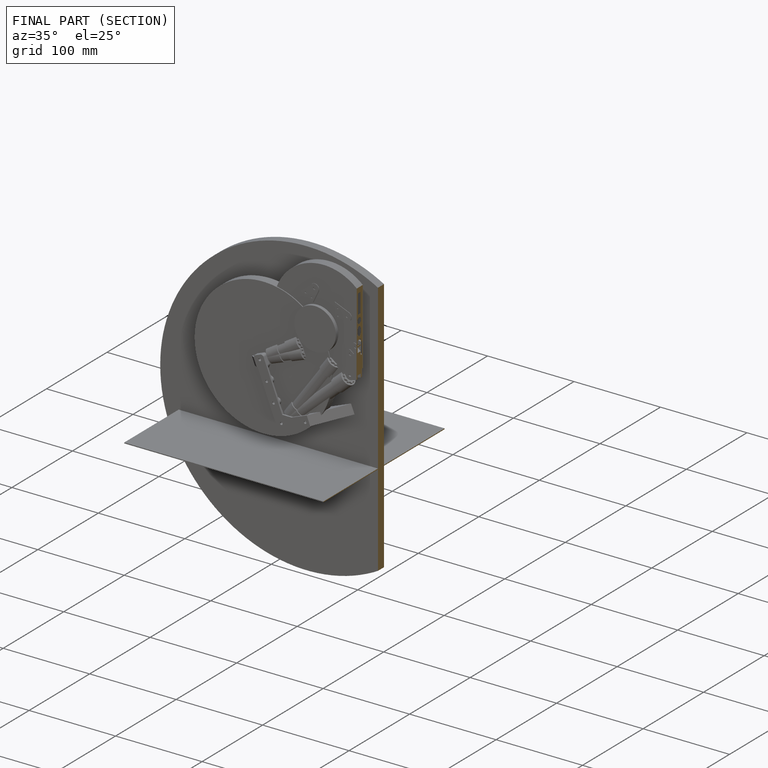
[diagram: finished part — half-section view (interior)]
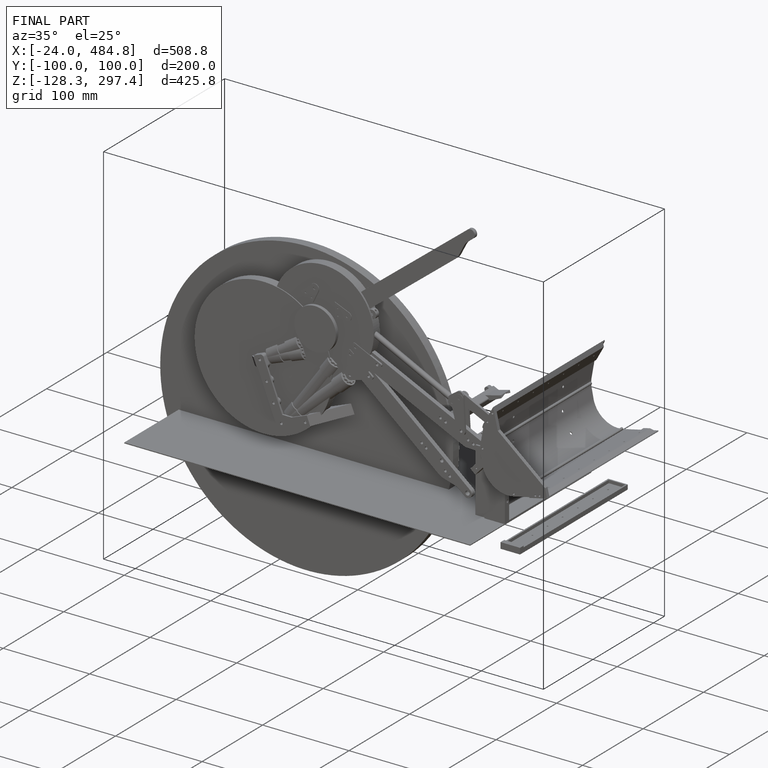
[diagram: finished part — iso view with bounding-box wireframe]
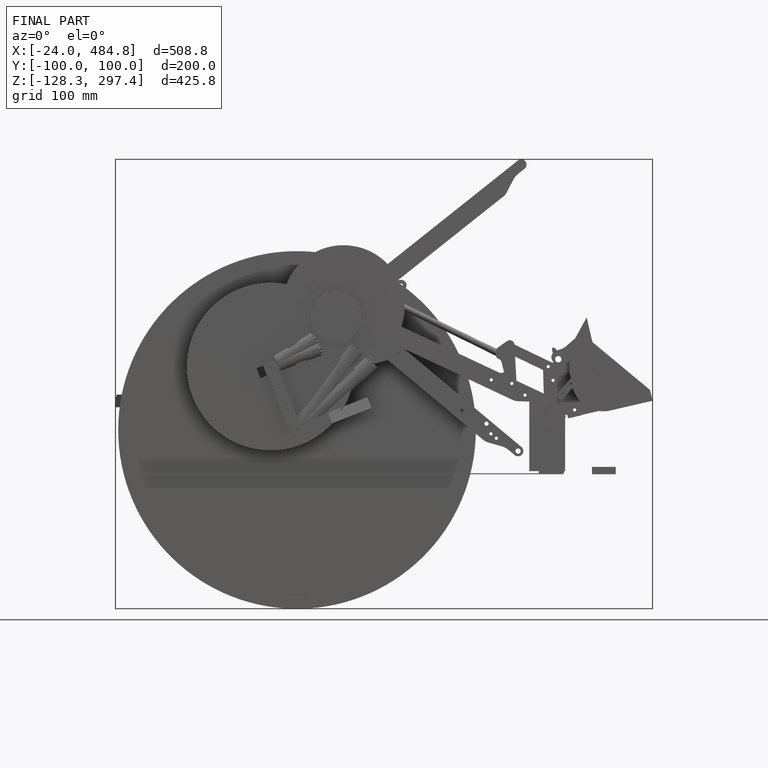
[diagram: finished part — front view with bounding-box wireframe]
